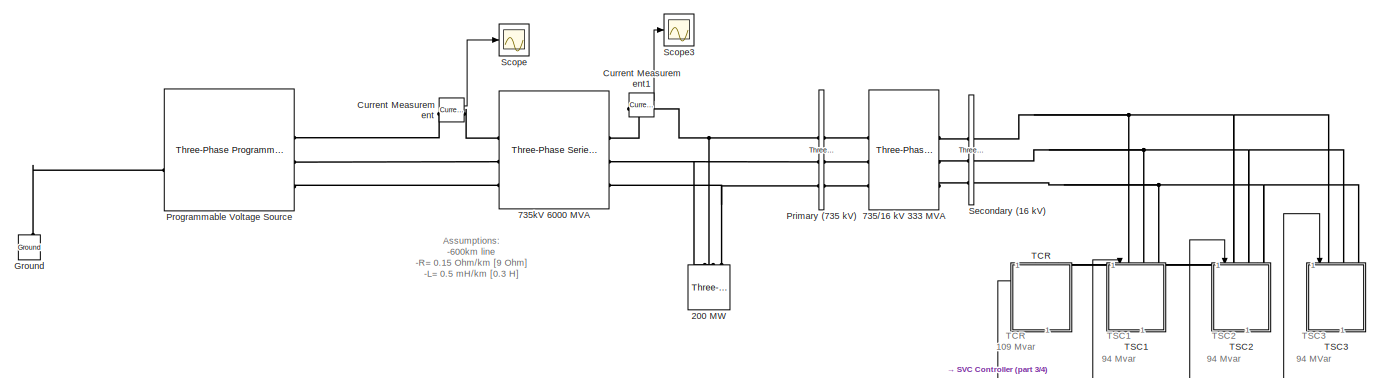
[diagram: root canvas - part 1/4, top center region]
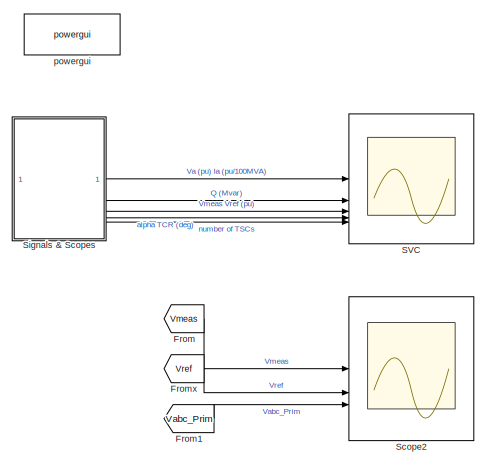
[diagram: root canvas - part 2/4, top right region]
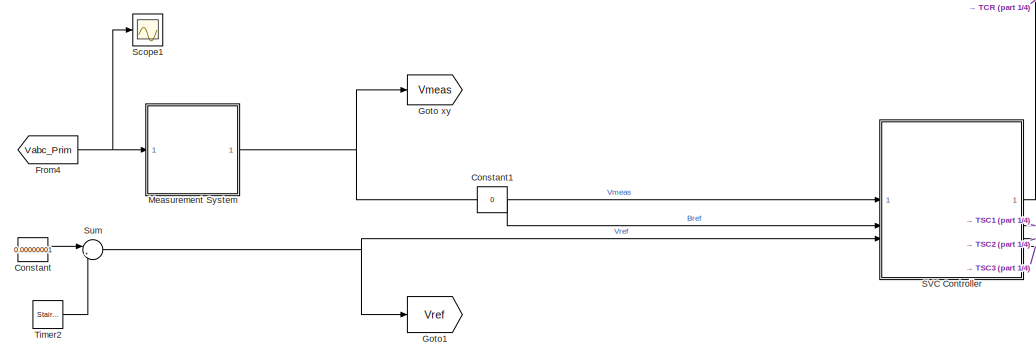
[diagram: root canvas - part 3/4, bottom center region]
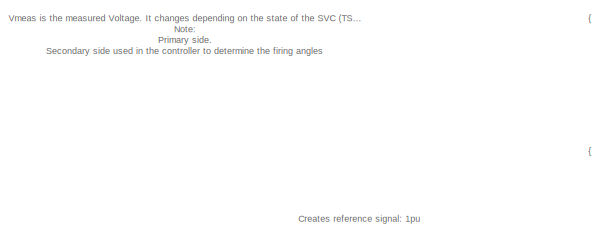
[diagram: root canvas - part 4/4, bottom left region]
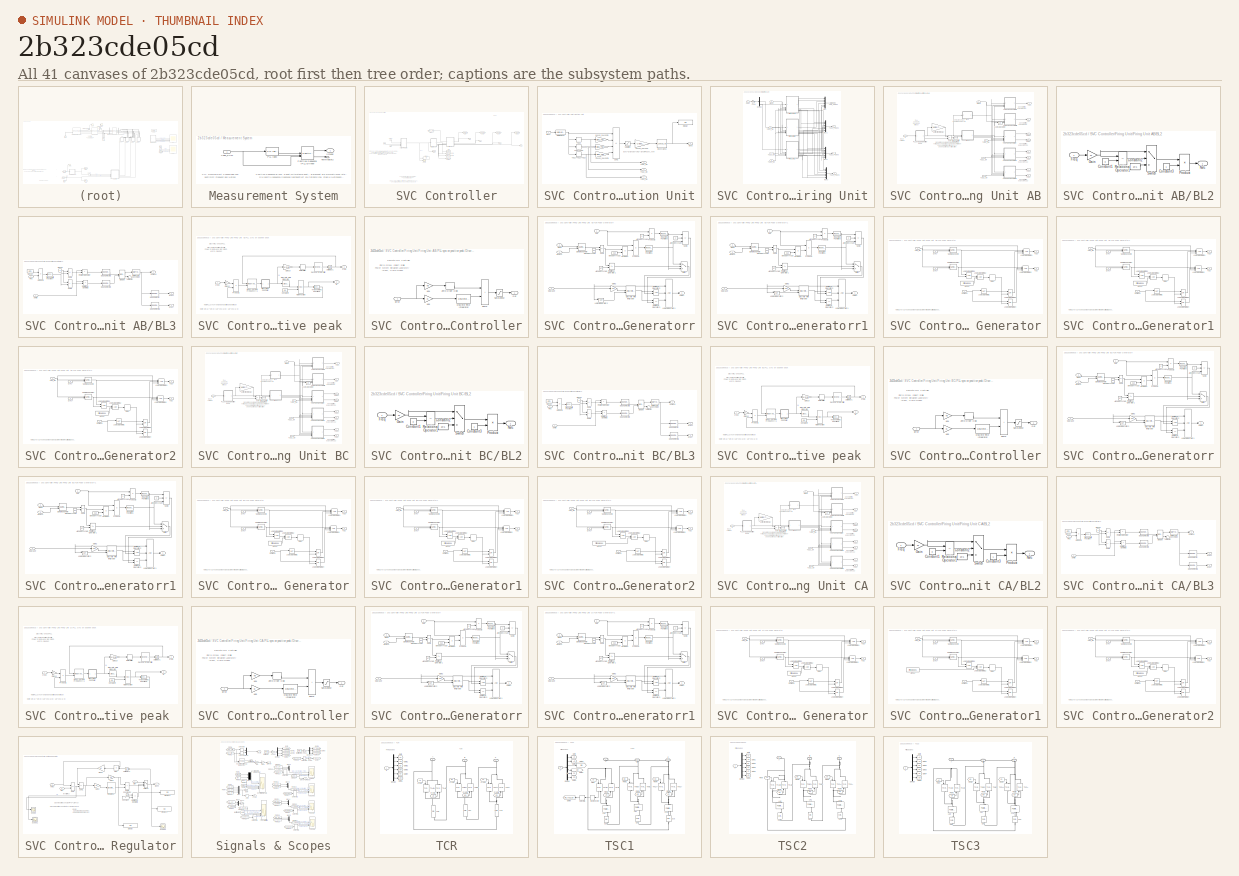
[diagram: thumbnail index - all 41 canvases of the model, root first then tree order]
MODEL slx_2b323cde05cd
KIND model
CONFIG AbsTol = 1e-4
CONFIG EnableMultiTasking = off
CONFIG FixedStep = Ts
CONFIG MaxStep = 1e-5
CONFIG MinStep = auto
CONFIG PreLoadFcn = Ts=50e-6;  
CONFIG RelTol = 1e-4
CONFIG SampleTimeConstraint = Unconstrained
CONFIG SolverName = FixedStepAuto
CONFIG StartTime = 0.0
CONFIG StopTime = 0.6
WORKSPACE source: mxarray member
WORKSPACE Ki: Simulink.Parameter (value not decoded)
WORKSPACE Kp = 0
BLOCK [Reference] 200 MW  REF=spsThreePhaseSeriesRLCLoadLib/Three-Phase
Series RLC Load
  AttributesFormatString = \n
  NameLocation = left
  SourceBlock = spsThreePhaseSeriesRLCLoadLib/Three-Phase\nSeries RLC Load
  SourceType = Three-Phase Series RLC Load
BLOCK [Reference] 735//16 kV 333 MVA  REF=spsThreePhaseTransformerTwoWindingsLib/Three-Phase
Transformer
(Two Windings)
  AttributesFormatString = \n
  SourceBlock = spsThreePhaseTransformerTwoWindingsLib/Three-Phase\nTransformer\n(Two Windings)
  SourceType = Three-Phase Transformer (Two Windings)
BLOCK [Reference] 735kV 6000 MVA   REF=spsThreePhaseSeriesRLCBranchLib/Three-Phase
Series RLC Branch
  AttributesFormatString = \n
  SourceBlock = spsThreePhaseSeriesRLCBranchLib/Three-Phase\nSeries RLC Branch
  SourceType = Three-Phase Series RLC Branch
BLOCK [Constant] Constant
  Value = 0.00000001
BLOCK [Constant] Constant1
  Value = 0
BLOCK [Reference] Current Measurement  REF=spsCurrentMeasurementLib/Current Measurement
  LibrarySourceBlock = sps_lib/Sensors and Measurements/Current Measurement
  SourceBlock = spsCurrentMeasurementLib/Current Measurement
  SourceType = Current Measurement
  UserDataPersistent = on
BLOCK [Reference] Current Measurement1  REF=spsCurrentMeasurementLib/Current Measurement
  LibrarySourceBlock = sps_lib/Sensors and Measurements/Current Measurement
  SourceBlock = spsCurrentMeasurementLib/Current Measurement
  SourceType = Current Measurement
  UserDataPersistent = on
BLOCK [From] From
  GotoTag = Vmeas
  TagVisibility = global
BLOCK [From] From1
  GotoTag = Vabc_Prim
  TagVisibility = global
BLOCK [From] From4
  GotoTag = Vabc_Prim
  TagVisibility = global
BLOCK [From] Fromx
  GotoTag = Vref
  TagVisibility = global
BLOCK [Goto] Goto xy
  GotoTag = Vmeas
  TagVisibility = global
BLOCK [Goto] Goto1
  GotoTag = Vref
  TagVisibility = global
BLOCK [Reference] Ground  REF=spsGroundLib/Ground
  NameLocation = left
  SourceBlock = spsGroundLib/Ground
  SourceType = Ground
BLOCK [SubSystem] Measurement System
BLOCK [Reference] Measurement System/PLL (3ph)  REF=spsPLL3phLib/PLL
(3ph)
  SourceBlock = spsPLL3phLib/PLL\n(3ph)
  SourceType = PLL (3ph)
BLOCK [Reference] Measurement System/Positive-Sequence (PLL-Driven)  REF=spsPositiveSequencePLLDrivenLib/Positive-Sequence
(PLL-Driven)
  SourceBlock = spsPositiveSequencePLLDrivenLib/Positive-Sequence\n(PLL-Driven)
  SourceType = Positive-Sequence (PLL-Driven)
BLOCK [Terminator] Measurement System/Terminator2
BLOCK [Inport] Measurement System/Vabc_Prim
  PortDimensions = 3
BLOCK [Outport] Measurement System/Vmeas
  VectorParamsAs1DForOutWhenUnconnected = off
BLOCK [Reference] Primary (735 kV)  REF=spsThreePhaseVIMeasurementLib/Three-Phase
V-I Measurement
  SourceBlock = spsThreePhaseVIMeasurementLib/Three-Phase\nV-I Measurement
  SourceType = Three-Phase VI Measurement
BLOCK [Reference] Programmable Voltage Source  REF=spsThreePhaseProgrammableVoltageSourceLib/Three-Phase
Programmable
Voltage Source
  SourceBlock = spsThreePhaseProgrammableVoltageSourceLib/Three-Phase\nProgrammable\nVoltage Source
  SourceType = Three-Phase Programmable Voltage Source
BLOCK [Scope] SVC
  Floating = off
  NumInputPorts = 5
  ScopeSpecificationString = Simulink.scopes.TimeScopeBlockCfg('CurrentConfiguration', extmgr.ConfigurationSet(extmgr.Configuration('Core','General UI',true,'FigureColor',[1 1 1]),extmgr.Configuration('Core','Source UI',true),extmgr.Configuration('Sources','WiredSimulink',true,'DataLogging',true,'DataLoggingVariableName','scopeData','DataLoggingSaveFormat','StructureWithTime','SampleTime','Ts','DataLoggingDecimation','1'),ext...<+7913ch>
BLOCK [SubSystem] SVC Controller
  ShowPortLabels = SignalName
BLOCK [Inport] SVC Controller/Bref
  Port = 2
  PortDimensions = 1
BLOCK [Display] SVC Controller/Display
  Decimation = 1
BLOCK [SubSystem] SVC Controller/Distribution Unit
BLOCK [Outport] SVC Controller/Distribution Unit/Alpha
  InitialOutput = 0
  VectorParamsAs1DForOutWhenUnconnected = off
BLOCK [Fcn] SVC Controller/Distribution Unit/Bprim-->Bsec
  Expr = u[1]/(1 + u[1]*Xf_xfo*100e6/Pnom_xfo)
BLOCK [Lookup_n-D] SVC Controller/Distribution Unit/Bsec --> Alpha
  BreakpointsForDimension1 = B
  BreakpointsForDimension2 = [0 571.55 685.8 800.15 914.4 1028.8 1143.1 1257.4 1371.7 1486 1600.3 1714.6 1828.9 1943.2 2057.5 2171.8 2286.1 2400.5 2514.7 2629.1 2743.3 2857.7 2971.9 3086.3 3200.5 3314.9 3429.2]
  InputPortMap = u0
  InternalRulePriority = Speed
  NumberOfTableDimensions = 1
  RndMeth = Simplest
  Table = A
BLOCK [Inport] SVC Controller/Distribution Unit/Bsvc
  PortDimensions = 1
BLOCK [Display] SVC Controller/Distribution Unit/Display
  Decimation = 1
BLOCK [Saturate] SVC Controller/Distribution Unit/Saturation
  LowerLimit = Bpu_TCR
  UpperLimit = 0
BLOCK [Sum] SVC Controller/Distribution Unit/Sum1
  IconShape = rectangular
  InputSameDT = on
  Inputs = +---
  OutDataTypeStr = Inherit: Same as first input
  SaturateOnIntegerOverflow = on
BLOCK [Relay] SVC Controller/Distribution Unit/TSC1
  OffSwitchValue = -1 * hyst_svc
  OnSwitchValue = 0
BLOCK [Relay] SVC Controller/Distribution Unit/TSC1+TSC2
  OffSwitchValue = -1 * hyst_svc + Bpu_TSC
  OnSwitchValue = 0+ Bpu_TSC
BLOCK [Relay] SVC Controller/Distribution Unit/TSC1+TSC2+TSC3
  OffSwitchValue = -1 * hyst_svc + 2*Bpu_TSC
  OnSwitchValue = 0+ 2*Bpu_TSC
BLOCK [Outport] SVC Controller/Distribution Unit/TSC1_On
  InitialOutput = 0
  Port = 2
  VectorParamsAs1DForOutWhenUnconnected = off
BLOCK [Outport] SVC Controller/Distribution Unit/TSC2_On
  InitialOutput = 0
  Port = 3
  VectorParamsAs1DForOutWhenUnconnected = off
BLOCK [Outport] SVC Controller/Distribution Unit/TSC3_On
  InitialOutput = 0
  Port = 4
  VectorParamsAs1DForOutWhenUnconnected = off
BLOCK [Gain] SVC Controller/Distribution Unit/pu100_puLnom
  Gain = -1/Bpu_TCR
  OutDataTypeStr = Inherit: Same as input
  ParamDataTypeStr = Inherit: Same as input
  SaturateOnIntegerOverflow = on
BLOCK [Gain] SVC Controller/Distribution Unit/pu100_puLnom1
  Gain = Bpu_TSC
  OutDataTypeStr = Inherit: Same as input
  ParamDataTypeStr = Inherit: Same as input
  SaturateOnIntegerOverflow = on
BLOCK [Gain] SVC Controller/Distribution Unit/pu100_puLnom2
  Gain = Bpu_TSC
  OutDataTypeStr = Inherit: Same as input
  ParamDataTypeStr = Inherit: Same as input
  SaturateOnIntegerOverflow = on
BLOCK [Gain] SVC Controller/Distribution Unit/pu100_puLnom3
  Gain = Bpu_TSC
  OutDataTypeStr = Inherit: Same as input
  ParamDataTypeStr = Inherit: Same as input
  SaturateOnIntegerOverflow = on
BLOCK [SubSystem] SVC Controller/Firing Unit
BLOCK [Inport] SVC Controller/Firing Unit/Alpha
  Port = 2
  PortDimensions = 1
BLOCK [Demux] SVC Controller/Firing Unit/Demux
  DisplayOption = none
  Outputs = 3
BLOCK [SubSystem] SVC Controller/Firing Unit/Firing Unit AB
BLOCK [Inport] SVC Controller/Firing Unit/Firing Unit AB/Alpha
  Port = 2
  PortDimensions = 1
BLOCK [SubSystem] SVC Controller/Firing Unit/Firing Unit AB/BL2
  NameLocation = top
BLOCK [Constant] SVC Controller/Firing Unit/Firing Unit AB/BL2/Constant1
  Value = 0
BLOCK [Constant] SVC Controller/Firing Unit/Firing Unit AB/BL2/Constant2
  Value = 1e-5
BLOCK [Constant] SVC Controller/Firing Unit/Firing Unit AB/BL2/Constant3
BLOCK [Inport] SVC Controller/Firing Unit/Firing Unit AB/BL2/Freq
  PortDimensions = 1
BLOCK [Gain] SVC Controller/Firing Unit/Firing Unit AB/BL2/Gain
  Gain = Ts
  OutDataTypeStr = Inherit: Same as input
  ParamDataTypeStr = Inherit: Same as input
  SaturateOnIntegerOverflow = on
BLOCK [Outport] SVC Controller/Firing Unit/Firing Unit AB/BL2/Ns//c
  VectorParamsAs1DForOutWhenUnconnected = off
BLOCK [Product] SVC Controller/Firing Unit/Firing Unit AB/BL2/Product
  InputSameDT = on
  Inputs = /*
  OutDataTypeStr = Inherit: Same as first input
  SaturateOnIntegerOverflow = on
BLOCK [RelationalOperator] SVC Controller/Firing Unit/Firing Unit AB/BL2/Relational Operator1
  Operator = ~=
BLOCK [Switch] SVC Controller/Firing Unit/Firing Unit AB/BL2/Switch
  Threshold = 0.5
BLOCK [SubSystem] SVC Controller/Firing Unit/Firing Unit AB/BL3
  NameLocation = top
BLOCK [Reference] SVC Controller/Firing Unit/Firing Unit AB/BL3/Bistable  REF=spsBistableLib/Bistable
  SourceBlock = spsBistableLib/Bistable
  SourceType = Bistable
BLOCK [DataTypeConversion] SVC Controller/Firing Unit/Firing Unit AB/BL3/Data Type Conversion
  RndMeth = Floor
  SaturateOnIntegerOverflow = off
BLOCK [Reference] SVC Controller/Firing Unit/Firing Unit AB/BL3/Edge Detector  REF=spsEdgeDetectorLib/Edge Detector
  SourceBlock = spsEdgeDetectorLib/Edge Detector
  SourceType = Edge Detector
BLOCK [Reference] SVC Controller/Firing Unit/Firing Unit AB/BL3/Edge Detector1  REF=spsEdgeDetectorLib/Edge Detector
  SourceBlock = spsEdgeDetectorLib/Edge Detector
  SourceType = Edge Detector
BLOCK [Reference] SVC Controller/Firing Unit/Firing Unit AB/BL3/Edge Detector2  REF=spsEdgeDetectorLib/Edge Detector
  SourceBlock = spsEdgeDetectorLib/Edge Detector
  SourceType = Edge Detector
BLOCK [Reference] SVC Controller/Firing Unit/Firing Unit AB/BL3/Edge Detector3  REF=spsEdgeDetectorLib/Edge Detector
  SourceBlock = spsEdgeDetectorLib/Edge Detector
  SourceType = Edge Detector
BLOCK [Inport] SVC Controller/Firing Unit/Firing Unit AB/BL3/Freq
  PortDimensions = 1
BLOCK [Product] SVC Controller/Firing Unit/Firing Unit AB/BL3/Product2
  InputSameDT = on
  OutDataTypeStr = Inherit: Same as first input
  SaturateOnIntegerOverflow = on
BLOCK [RelationalOperator] SVC Controller/Firing Unit/Firing Unit AB/BL3/Relational Operator
  Operator = >
BLOCK [RelationalOperator] SVC Controller/Firing Unit/Firing Unit AB/BL3/Relational Operator2
  Operator = <
BLOCK [Outport] SVC Controller/Firing Unit/Firing Unit AB/BL3/SqWave
  VectorParamsAs1DForOutWhenUnconnected = off
BLOCK [Sum] SVC Controller/Firing Unit/Firing Unit AB/BL3/Sum5
  IconShape = rectangular
  InputSameDT = on
  Inputs = +-
  OutDataTypeStr = Inherit: Same as first input
  SaturateOnIntegerOverflow = on
BLOCK [Sum] SVC Controller/Firing Unit/Firing Unit AB/BL3/Sum6
  IconShape = rectangular
  InputSameDT = on
  OutDataTypeStr = Inherit: Same as first input
  SaturateOnIntegerOverflow = on
BLOCK [Outport] SVC Controller/Firing Unit/Firing Unit AB/BL3/Sync +
  Port = 2
  VectorParamsAs1DForOutWhenUnconnected = off
BLOCK [Outport] SVC Controller/Firing Unit/Firing Unit AB/BL3/Sync -
  Port = 3
  VectorParamsAs1DForOutWhenUnconnected = off
BLOCK [Terminator] SVC Controller/Firing Unit/Firing Unit AB/BL3/Terminator
BLOCK [Trigonometry] SVC Controller/Firing Unit/Firing Unit AB/BL3/Trigonometric Function7
  NameLocation = top
BLOCK [Constant] SVC Controller/Firing Unit/Firing Unit AB/BL3/alpha2
  Value = 0
BLOCK [Constant] SVC Controller/Firing Unit/Firing Unit AB/BL3/alpha9
  Value = pi*Ts
BLOCK [Inport] SVC Controller/Firing Unit/Firing Unit AB/BL3/sin(wt)
  Port = 2
  PortDimensions = 1
BLOCK [Gain] SVC Controller/Firing Unit/Firing Unit AB/Correction for delay
  Gain = Nstep*Ts*2*pi
  NameLocation = top
  OutDataTypeStr = Inherit: Same as input
  ParamDataTypeStr = Inherit: Same as input
  SaturateOnIntegerOverflow = on
BLOCK [Logic] SVC Controller/Firing Unit/Firing Unit AB/Logical Operator2
  Inputs = 3
  Operator = NOT
BLOCK [SubSystem] SVC Controller/Firing Unit/Firing Unit AB/PLL sync on positive peak 
BLOCK [Constant] SVC Controller/Firing Unit/Firing Unit AB/PLL sync on positive peak /Constant4
  NameLocation = top
  Value = 2*pi
BLOCK [SubSystem] SVC Controller/Firing Unit/Firing Unit AB/PLL sync on positive peak /Discrete PI Controller
  DialogController = POWERSYS.PowerSysDialog
BLOCK [DiscreteIntegrator] SVC Controller/Firing Unit/Firing Unit AB/PLL sync on positive peak /Discrete PI Controller/Discrete-Time Integrator
  ICPrevOutput = DiscIntNeverNeededParam
  ICPrevScaledInput = DiscIntNeverNeededParam
  InitialCondition = Init
  LimitOutput = on
  LowerSaturationLimit = LowerLimit
  SampleTime = Ts
  UpperSaturationLimit = UpperLimit
BLOCK [Inport] SVC Controller/Firing Unit/Firing Unit AB/PLL sync on positive peak /Discrete PI Controller/Error
  SampleTime = Ts
BLOCK [Gain] SVC Controller/Firing Unit/Firing Unit AB/PLL sync on positive peak /Discrete PI Controller/Kp4
  Gain = Kp
  OutDataTypeStr = Inherit: Same as input
  ParamDataTypeStr = Inherit: Same as input
  SampleTime = Ts
  SaturateOnIntegerOverflow = on
BLOCK [Gain] SVC Controller/Firing Unit/Firing Unit AB/PLL sync on positive peak /Discrete PI Controller/Kp5
  Gain = Ki
  OutDataTypeStr = Inherit: Same as input
  ParamDataTypeStr = Inherit: Same as input
  SampleTime = Ts
  SaturateOnIntegerOverflow = on
BLOCK [Outport] SVC Controller/Firing Unit/Firing Unit AB/PLL sync on positive peak /Discrete PI Controller/Out
  InitialOutput = 0
  SampleTime = Ts
  VectorParamsAs1DForOutWhenUnconnected = off
BLOCK [Saturate] SVC Controller/Firing Unit/Firing Unit AB/PLL sync on positive peak /Discrete PI Controller/Saturation2
  LowerLimit = LowerLimit
  NameLocation = top
  SampleTime = Ts
  UpperLimit = UpperLimit
BLOCK [Sum] SVC Controller/Firing Unit/Firing Unit AB/PLL sync on positive peak /Discrete PI Controller/Sum6
  IconShape = rectangular
  InputSameDT = on
  OutDataTypeStr = Inherit: Same as first input
  SampleTime = Ts
  SaturateOnIntegerOverflow = on
BLOCK [ZeroOrderHold] SVC Controller/Firing Unit/Firing Unit AB/PLL sync on positive peak /Discrete PI Controller/Zero-Order Hold
  SampleTime = Ts
BLOCK [DiscreteIntegrator] SVC Controller/Firing Unit/Firing Unit AB/PLL sync on positive peak /Discrete-Time Integrator
  ICPrevOutput = DiscIntNeverNeededParam
  ICPrevScaledInput = DiscIntNeverNeededParam
  InitialCondition = (Phase_Init-90)*pi/180
  SampleTime = Ts
BLOCK [Outport] SVC Controller/Firing Unit/Firing Unit AB/PLL sync on positive peak /Freq
  VectorParamsAs1DForOutWhenUnconnected = off
BLOCK [Gain] SVC Controller/Firing Unit/Firing Unit AB/PLL sync on positive peak /Gain10
  Gain = 1/2/pi
  OutDataTypeStr = Inherit: Same as input
  ParamDataTypeStr = Inherit: Same as input
  SaturateOnIntegerOverflow = on
BLOCK [Gain] SVC Controller/Firing Unit/Firing Unit AB/PLL sync on positive peak /Gain12
  Gain = -1
  OutDataTypeStr = Inherit: Same as input
  ParamDataTypeStr = Inherit: Same as input
  SaturateOnIntegerOverflow = on
BLOCK [Math] SVC Controller/Firing Unit/Firing Unit AB/PLL sync on positive peak /Math Function
  Operator = mod
  SignedPower = on
BLOCK [Reference] SVC Controller/Firing Unit/Firing Unit AB/PLL sync on positive peak /Mean (Variable Frequency)1  REF=spsMeanVariableFrequencyLib/Mean
(Variable Frequency)
  SourceBlock = spsMeanVariableFrequencyLib/Mean\n(Variable Frequency)
  SourceType = Mean (Variable Frequency)
BLOCK [Product] SVC Controller/Firing Unit/Firing Unit AB/PLL sync on positive peak /Product1
  InputSameDT = on
  OutDataTypeStr = Inherit: Same as first input
  SaturateOnIntegerOverflow = on
BLOCK [RateLimiter] SVC Controller/Firing Unit/Firing Unit AB/PLL sync on positive peak /Rate Limiter
  FallingSlewLimit = -10
  InitialCondition = Finit
  RisingSlewLimit = 10
  SampleTimeMode = inherited
BLOCK [Reference] SVC Controller/Firing Unit/Firing Unit AB/PLL sync on positive peak /Second-Order Filter  REF=spsSecondOrderFilterLib/Second-Order
Filter
  SourceBlock = spsSecondOrderFilterLib/Second-Order\nFilter
  SourceType = Second-Order Filter
BLOCK [Trigonometry] SVC Controller/Firing Unit/Firing Unit AB/PLL sync on positive peak /Trigonometric Function6
  NameLocation = top
BLOCK [UnitDelay] SVC Controller/Firing Unit/Firing Unit AB/PLL sync on positive peak /Unit Delay1
  AttributesFormatString = IC = %<InitialCondition>
  HasFrameUpgradeWarning = on
  InitialCondition = Finit
  SampleTime = Ts
BLOCK [Inport] SVC Controller/Firing Unit/Firing Unit AB/PLL sync on positive peak /V(pu)
BLOCK [Outport] SVC Controller/Firing Unit/Firing Unit AB/PLL sync on positive peak /wt
  Port = 2
  VectorParamsAs1DForOutWhenUnconnected = off
BLOCK [Sum] SVC Controller/Firing Unit/Firing Unit AB/Sum
  IconShape = rectangular
  InputSameDT = on
  OutDataTypeStr = Inherit: Same as first input
  SaturateOnIntegerOverflow = on
BLOCK [Outport] SVC Controller/Firing Unit/Firing Unit AB/TCR +
  VectorParamsAs1DForOutWhenUnconnected = off
BLOCK [Outport] SVC Controller/Firing Unit/Firing Unit AB/TCR -
  Port = 2
  VectorParamsAs1DForOutWhenUnconnected = off
BLOCK [SubSystem] SVC Controller/Firing Unit/Firing Unit AB/TCR Pulse Generatorr
BLOCK [Inport] SVC Controller/Firing Unit/Firing Unit AB/TCR Pulse Generatorr/Alpha
  Port = 2
  PortDimensions = 1
BLOCK [Constant] SVC Controller/Firing Unit/Firing Unit AB/TCR Pulse Generatorr/Alpha 90<A<181
  Value = 90
BLOCK [Constant] SVC Controller/Firing Unit/Firing Unit AB/TCR Pulse Generatorr/Alpha 90<A<182
  Value = 360
BLOCK [Constant] SVC Controller/Firing Unit/Firing Unit AB/TCR Pulse Generatorr/Alpha 90<A<183
  Value = 2
BLOCK [Constant] SVC Controller/Firing Unit/Firing Unit AB/TCR Pulse Generatorr/Alpha 90<A<184
  Value = 2
BLOCK [Constant] SVC Controller/Firing Unit/Firing Unit AB/TCR Pulse Generatorr/Alpha 90<A<185
  Value = 87
BLOCK [DiscreteIntegrator] SVC Controller/Firing Unit/Firing Unit AB/TCR Pulse Generatorr/Discrete-Time Integrator
  ExternalReset = rising
  ICPrevOutput = DiscIntNeverNeededParam
  ICPrevScaledInput = DiscIntNeverNeededParam
  LimitOutput = on
  LowerSaturationLimit = 0
  SampleTime = Ts
  UpperSaturationLimit = 100000
BLOCK [Gain] SVC Controller/Firing Unit/Firing Unit AB/TCR Pulse Generatorr/Gain2
  Gain = 1/Ts
  OutDataTypeStr = Inherit: Same as input
  ParamDataTypeStr = Inherit: Same as input
  SaturateOnIntegerOverflow = on
BLOCK [Logic] SVC Controller/Firing Unit/Firing Unit AB/TCR Pulse Generatorr/Logical Operator1
  Inputs = 3
BLOCK [Logic] SVC Controller/Firing Unit/Firing Unit AB/TCR Pulse Generatorr/Logical Operator2
  Inputs = 3
  Operator = NOT
BLOCK [Inport] SVC Controller/Firing Unit/Firing Unit AB/TCR Pulse Generatorr/Ns//c
BLOCK [Product] SVC Controller/Firing Unit/Firing Unit AB/TCR Pulse Generatorr/Product
  InputSameDT = on
  Inputs = */
  OutDataTypeStr = Inherit: Same as first input
  SaturateOnIntegerOverflow = on
BLOCK [Product] SVC Controller/Firing Unit/Firing Unit AB/TCR Pulse Generatorr/Product1
  InputSameDT = on
  Inputs = **
  OutDataTypeStr = Inherit: Same as first input
  SaturateOnIntegerOverflow = on
BLOCK [Product] SVC Controller/Firing Unit/Firing Unit AB/TCR Pulse Generatorr/Product2
  InputSameDT = on
  Inputs = */
  OutDataTypeStr = Inherit: Same as first input
  SaturateOnIntegerOverflow = on
BLOCK [RelationalOperator] SVC Controller/Firing Unit/Firing Unit AB/TCR Pulse Generatorr/Relational Operator1
  Operator = <=
BLOCK [RelationalOperator] SVC Controller/Firing Unit/Firing Unit AB/TCR Pulse Generatorr/Relational Operator2
BLOCK [RelationalOperator] SVC Controller/Firing Unit/Firing Unit AB/TCR Pulse Generatorr/Relational Operator3
  Operator = <=
BLOCK [Rounding] SVC Controller/Firing Unit/Firing Unit AB/TCR Pulse Generatorr/Rounding Function1
  Operator = round
BLOCK [Rounding] SVC Controller/Firing Unit/Firing Unit AB/TCR Pulse Generatorr/Rounding Function3
  Operator = round
BLOCK [Reference] SVC Controller/Firing Unit/Firing Unit AB/TCR Pulse Generatorr/Sample and Hold  REF=spsSampleandHoldLib/Sample and
Hold
  AttributesFormatString = IC = %<ic>
  SourceBlock = spsSampleandHoldLib/Sample and\nHold
  SourceType = Sample and Hold
BLOCK [Inport] SVC Controller/Firing Unit/Firing Unit AB/TCR Pulse Generatorr/SqWave
  Port = 4
  PortDimensions = 1
BLOCK [Sum] SVC Controller/Firing Unit/Firing Unit AB/TCR Pulse Generatorr/Sum1
  IconShape = rectangular
  InputSameDT = on
  Inputs = +-
  OutDataTypeStr = Inherit: Same as first input
  SaturateOnIntegerOverflow = on
BLOCK [Sum] SVC Controller/Firing Unit/Firing Unit AB/TCR Pulse Generatorr/Sum2
  IconShape = rectangular
  InputSameDT = on
  Inputs = +--
  OutDataTypeStr = Inherit: Same as first input
  SaturateOnIntegerOverflow = on
BLOCK [Switch] SVC Controller/Firing Unit/Firing Unit AB/TCR Pulse Generatorr/Switch
  Criteria = u2 > Threshold
BLOCK [Inport] SVC Controller/Firing Unit/Firing Unit AB/TCR Pulse Generatorr/Sync +//-
  Port = 3
  PortDimensions = 1
BLOCK [Outport] SVC Controller/Firing Unit/Firing Unit AB/TCR Pulse Generatorr/TCR +//-
  VectorParamsAs1DForOutWhenUnconnected = off
BLOCK [SubSystem] SVC Controller/Firing Unit/Firing Unit AB/TCR Pulse Generatorr1
BLOCK [Inport] SVC Controller/Firing Unit/Firing Unit AB/TCR Pulse Generatorr1/Alpha
  Port = 2
  PortDimensions = 1
BLOCK [Constant] SVC Controller/Firing Unit/Firing Unit AB/TCR Pulse Generatorr1/Alpha 90<A<181
  Value = 90
BLOCK [Constant] SVC Controller/Firing Unit/Firing Unit AB/TCR Pulse Generatorr1/Alpha 90<A<182
  Value = 360
BLOCK [Constant] SVC Controller/Firing Unit/Firing Unit AB/TCR Pulse Generatorr1/Alpha 90<A<183
  Value = 2
BLOCK [Constant] SVC Controller/Firing Unit/Firing Unit AB/TCR Pulse Generatorr1/Alpha 90<A<184
  Value = 2
BLOCK [Constant] SVC Controller/Firing Unit/Firing Unit AB/TCR Pulse Generatorr1/Alpha 90<A<185
  Value = 87
BLOCK [DiscreteIntegrator] SVC Controller/Firing Unit/Firing Unit AB/TCR Pulse Generatorr1/Discrete-Time Integrator
  ExternalReset = rising
  ICPrevOutput = DiscIntNeverNeededParam
  ICPrevScaledInput = DiscIntNeverNeededParam
  LimitOutput = on
  LowerSaturationLimit = 0
  SampleTime = Ts
  UpperSaturationLimit = 100000
BLOCK [Gain] SVC Controller/Firing Unit/Firing Unit AB/TCR Pulse Generatorr1/Gain2
  Gain = 1/Ts
  OutDataTypeStr = Inherit: Same as input
  ParamDataTypeStr = Inherit: Same as input
  SaturateOnIntegerOverflow = on
BLOCK [Logic] SVC Controller/Firing Unit/Firing Unit AB/TCR Pulse Generatorr1/Logical Operator1
  Inputs = 3
BLOCK [Logic] SVC Controller/Firing Unit/Firing Unit AB/TCR Pulse Generatorr1/Logical Operator2
  Inputs = 3
  Operator = NOT
BLOCK [Inport] SVC Controller/Firing Unit/Firing Unit AB/TCR Pulse Generatorr1/Ns//c
BLOCK [Product] SVC Controller/Firing Unit/Firing Unit AB/TCR Pulse Generatorr1/Product
  InputSameDT = on
  Inputs = */
  OutDataTypeStr = Inherit: Same as first input
  SaturateOnIntegerOverflow = on
BLOCK [Product] SVC Controller/Firing Unit/Firing Unit AB/TCR Pulse Generatorr1/Product1
  InputSameDT = on
  Inputs = **
  OutDataTypeStr = Inherit: Same as first input
  SaturateOnIntegerOverflow = on
BLOCK [Product] SVC Controller/Firing Unit/Firing Unit AB/TCR Pulse Generatorr1/Product2
  InputSameDT = on
  Inputs = */
  OutDataTypeStr = Inherit: Same as first input
  SaturateOnIntegerOverflow = on
BLOCK [RelationalOperator] SVC Controller/Firing Unit/Firing Unit AB/TCR Pulse Generatorr1/Relational Operator1
  Operator = <=
BLOCK [RelationalOperator] SVC Controller/Firing Unit/Firing Unit AB/TCR Pulse Generatorr1/Relational Operator2
BLOCK [RelationalOperator] SVC Controller/Firing Unit/Firing Unit AB/TCR Pulse Generatorr1/Relational Operator3
  Operator = <=
BLOCK [Rounding] SVC Controller/Firing Unit/Firing Unit AB/TCR Pulse Generatorr1/Rounding Function1
  Operator = round
BLOCK [Rounding] SVC Controller/Firing Unit/Firing Unit AB/TCR Pulse Generatorr1/Rounding Function3
  Operator = round
BLOCK [Reference] SVC Controller/Firing Unit/Firing Unit AB/TCR Pulse Generatorr1/Sample and Hold  REF=spsSampleandHoldLib/Sample and
Hold
  AttributesFormatString = IC = %<ic>
  SourceBlock = spsSampleandHoldLib/Sample and\nHold
  SourceType = Sample and Hold
BLOCK [Inport] SVC Controller/Firing Unit/Firing Unit AB/TCR Pulse Generatorr1/SqWave
  Port = 4
  PortDimensions = 1
BLOCK [Sum] SVC Controller/Firing Unit/Firing Unit AB/TCR Pulse Generatorr1/Sum1
  IconShape = rectangular
  InputSameDT = on
  Inputs = +-
  OutDataTypeStr = Inherit: Same as first input
  SaturateOnIntegerOverflow = on
BLOCK [Sum] SVC Controller/Firing Unit/Firing Unit AB/TCR Pulse Generatorr1/Sum2
  IconShape = rectangular
  InputSameDT = on
  Inputs = +--
  OutDataTypeStr = Inherit: Same as first input
  SaturateOnIntegerOverflow = on
BLOCK [Switch] SVC Controller/Firing Unit/Firing Unit AB/TCR Pulse Generatorr1/Switch
  Criteria = u2 > Threshold
BLOCK [Inport] SVC Controller/Firing Unit/Firing Unit AB/TCR Pulse Generatorr1/Sync +//-
  Port = 3
  PortDimensions = 1
BLOCK [Outport] SVC Controller/Firing Unit/Firing Unit AB/TCR Pulse Generatorr1/TCR +//-
  VectorParamsAs1DForOutWhenUnconnected = off
BLOCK [SubSystem] SVC Controller/Firing Unit/Firing Unit AB/TCS Pulse Generator
BLOCK [Constant] SVC Controller/Firing Unit/Firing Unit AB/TCS Pulse Generator/Alpha1
  Value = FiringMode-1
BLOCK [Delay] SVC Controller/Firing Unit/Firing Unit AB/TCS Pulse Generator/Delay
  DelayLength = fix(1/FreqInit/Ts)
  InputPortMap = u0
BLOCK [Logic] SVC Controller/Firing Unit/Firing Unit AB/TCS Pulse Generator/Logical Operator1
  Operator = NOT
BLOCK [Logic] SVC Controller/Firing Unit/Firing Unit AB/TCS Pulse Generator/Logical Operator10
  Operator = OR
BLOCK [Logic] SVC Controller/Firing Unit/Firing Unit AB/TCS Pulse Generator/Logical Operator11
  Inputs = 3
BLOCK [Logic] SVC Controller/Firing Unit/Firing Unit AB/TCS Pulse Generator/Logical Operator12
BLOCK [Logic] SVC Controller/Firing Unit/Firing Unit AB/TCS Pulse Generator/Logical Operator13
BLOCK [Logic] SVC Controller/Firing Unit/Firing Unit AB/TCS Pulse Generator/Logical Operator14
  Operator = OR
BLOCK [Logic] SVC Controller/Firing Unit/Firing Unit AB/TCS Pulse Generator/Logical Operator15
  Inputs = 3
BLOCK [Reference] SVC Controller/Firing Unit/Firing Unit AB/TCS Pulse Generator/Sample and Hold  REF=spsSampleandHoldLib/Sample and
Hold
  AttributesFormatString = IC = %<ic>
  SourceBlock = spsSampleandHoldLib/Sample and\nHold
  SourceType = Sample and Hold
BLOCK [Reference] SVC Controller/Firing Unit/Firing Unit AB/TCS Pulse Generator/Sample and Hold1  REF=spsSampleandHoldLib/Sample and
Hold
  AttributesFormatString = IC = %<ic>
  SourceBlock = spsSampleandHoldLib/Sample and\nHold
  SourceType = Sample and Hold
BLOCK [Inport] SVC Controller/Firing Unit/Firing Unit AB/TCS Pulse Generator/SqWave
  PortDimensions = 1
BLOCK [Inport] SVC Controller/Firing Unit/Firing Unit AB/TCS Pulse Generator/Sync +
  Port = 2
  PortDimensions = 1
BLOCK [Inport] SVC Controller/Firing Unit/Firing Unit AB/TCS Pulse Generator/Sync -
  Port = 3
  PortDimensions = 1
BLOCK [Outport] SVC Controller/Firing Unit/Firing Unit AB/TCS Pulse Generator/TSC +
  VectorParamsAs1DForOutWhenUnconnected = off
BLOCK [Outport] SVC Controller/Firing Unit/Firing Unit AB/TCS Pulse Generator/TSC -
  Port = 2
  VectorParamsAs1DForOutWhenUnconnected = off
BLOCK [Inport] SVC Controller/Firing Unit/Firing Unit AB/TCS Pulse Generator/TSC_On
  Port = 4
  PortDimensions = 1
BLOCK [SubSystem] SVC Controller/Firing Unit/Firing Unit AB/TCS Pulse Generator1
BLOCK [Constant] SVC Controller/Firing Unit/Firing Unit AB/TCS Pulse Generator1/Alpha1
  Value = FiringMode-1
BLOCK [Delay] SVC Controller/Firing Unit/Firing Unit AB/TCS Pulse Generator1/Delay
  DelayLength = fix(1/FreqInit/Ts)
  InputPortMap = u0
BLOCK [Logic] SVC Controller/Firing Unit/Firing Unit AB/TCS Pulse Generator1/Logical Operator1
  Operator = NOT
BLOCK [Logic] SVC Controller/Firing Unit/Firing Unit AB/TCS Pulse Generator1/Logical Operator10
  Operator = OR
BLOCK [Logic] SVC Controller/Firing Unit/Firing Unit AB/TCS Pulse Generator1/Logical Operator11
  Inputs = 3
BLOCK [Logic] SVC Controller/Firing Unit/Firing Unit AB/TCS Pulse Generator1/Logical Operator12
BLOCK [Logic] SVC Controller/Firing Unit/Firing Unit AB/TCS Pulse Generator1/Logical Operator13
BLOCK [Logic] SVC Controller/Firing Unit/Firing Unit AB/TCS Pulse Generator1/Logical Operator14
  Operator = OR
BLOCK [Logic] SVC Controller/Firing Unit/Firing Unit AB/TCS Pulse Generator1/Logical Operator15
  Inputs = 3
BLOCK [Reference] SVC Controller/Firing Unit/Firing Unit AB/TCS Pulse Generator1/Sample and Hold  REF=spsSampleandHoldLib/Sample and
Hold
  AttributesFormatString = IC = %<ic>
  SourceBlock = spsSampleandHoldLib/Sample and\nHold
  SourceType = Sample and Hold
BLOCK [Reference] SVC Controller/Firing Unit/Firing Unit AB/TCS Pulse Generator1/Sample and Hold1  REF=spsSampleandHoldLib/Sample and
Hold
  AttributesFormatString = IC = %<ic>
  SourceBlock = spsSampleandHoldLib/Sample and\nHold
  SourceType = Sample and Hold
BLOCK [Inport] SVC Controller/Firing Unit/Firing Unit AB/TCS Pulse Generator1/SqWave
  PortDimensions = 1
BLOCK [Inport] SVC Controller/Firing Unit/Firing Unit AB/TCS Pulse Generator1/Sync +
  Port = 2
  PortDimensions = 1
BLOCK [Inport] SVC Controller/Firing Unit/Firing Unit AB/TCS Pulse Generator1/Sync -
  Port = 3
  PortDimensions = 1
BLOCK [Outport] SVC Controller/Firing Unit/Firing Unit AB/TCS Pulse Generator1/TSC +
  VectorParamsAs1DForOutWhenUnconnected = off
BLOCK [Outport] SVC Controller/Firing Unit/Firing Unit AB/TCS Pulse Generator1/TSC -
  Port = 2
  VectorParamsAs1DForOutWhenUnconnected = off
BLOCK [Inport] SVC Controller/Firing Unit/Firing Unit AB/TCS Pulse Generator1/TSC_On
  Port = 4
  PortDimensions = 1
BLOCK [SubSystem] SVC Controller/Firing Unit/Firing Unit AB/TCS Pulse Generator2
BLOCK [Constant] SVC Controller/Firing Unit/Firing Unit AB/TCS Pulse Generator2/Alpha1
  Value = FiringMode-1
BLOCK [Delay] SVC Controller/Firing Unit/Firing Unit AB/TCS Pulse Generator2/Delay
  DelayLength = fix(1/FreqInit/Ts)
  InputPortMap = u0
BLOCK [Logic] SVC Controller/Firing Unit/Firing Unit AB/TCS Pulse Generator2/Logical Operator1
  Operator = NOT
BLOCK [Logic] SVC Controller/Firing Unit/Firing Unit AB/TCS Pulse Generator2/Logical Operator10
  Operator = OR
BLOCK [Logic] SVC Controller/Firing Unit/Firing Unit AB/TCS Pulse Generator2/Logical Operator11
  Inputs = 3
BLOCK [Logic] SVC Controller/Firing Unit/Firing Unit AB/TCS Pulse Generator2/Logical Operator12
BLOCK [Logic] SVC Controller/Firing Unit/Firing Unit AB/TCS Pulse Generator2/Logical Operator13
BLOCK [Logic] SVC Controller/Firing Unit/Firing Unit AB/TCS Pulse Generator2/Logical Operator14
  Operator = OR
BLOCK [Logic] SVC Controller/Firing Unit/Firing Unit AB/TCS Pulse Generator2/Logical Operator15
  Inputs = 3
BLOCK [Reference] SVC Controller/Firing Unit/Firing Unit AB/TCS Pulse Generator2/Sample and Hold  REF=spsSampleandHoldLib/Sample and
Hold
  AttributesFormatString = IC = %<ic>
  SourceBlock = spsSampleandHoldLib/Sample and\nHold
  SourceType = Sample and Hold
BLOCK [Reference] SVC Controller/Firing Unit/Firing Unit AB/TCS Pulse Generator2/Sample and Hold1  REF=spsSampleandHoldLib/Sample and
Hold
  AttributesFormatString = IC = %<ic>
  SourceBlock = spsSampleandHoldLib/Sample and\nHold
  SourceType = Sample and Hold
BLOCK [Inport] SVC Controller/Firing Unit/Firing Unit AB/TCS Pulse Generator2/SqWave
  PortDimensions = 1
BLOCK [Inport] SVC Controller/Firing Unit/Firing Unit AB/TCS Pulse Generator2/Sync +
  Port = 2
  PortDimensions = 1
BLOCK [Inport] SVC Controller/Firing Unit/Firing Unit AB/TCS Pulse Generator2/Sync -
  Port = 3
  PortDimensions = 1
BLOCK [Outport] SVC Controller/Firing Unit/Firing Unit AB/TCS Pulse Generator2/TSC +
  VectorParamsAs1DForOutWhenUnconnected = off
BLOCK [Outport] SVC Controller/Firing Unit/Firing Unit AB/TCS Pulse Generator2/TSC -
  Port = 2
  VectorParamsAs1DForOutWhenUnconnected = off
BLOCK [Inport] SVC Controller/Firing Unit/Firing Unit AB/TCS Pulse Generator2/TSC_On
  Port = 4
  PortDimensions = 1
BLOCK [Outport] SVC Controller/Firing Unit/Firing Unit AB/TSC1 +
  Port = 3
  VectorParamsAs1DForOutWhenUnconnected = off
BLOCK [Outport] SVC Controller/Firing Unit/Firing Unit AB/TSC1 -
  Port = 4
  VectorParamsAs1DForOutWhenUnconnected = off
BLOCK [Inport] SVC Controller/Firing Unit/Firing Unit AB/TSC1_On
  Port = 3
  PortDimensions = 1
BLOCK [Outport] SVC Controller/Firing Unit/Firing Unit AB/TSC2 +
  Port = 5
  VectorParamsAs1DForOutWhenUnconnected = off
BLOCK [Outport] SVC Controller/Firing Unit/Firing Unit AB/TSC2 -
  Port = 6
  VectorParamsAs1DForOutWhenUnconnected = off
BLOCK [Inport] SVC Controller/Firing Unit/Firing Unit AB/TSC2_On
  Port = 4
  PortDimensions = 1
BLOCK [Outport] SVC Controller/Firing Unit/Firing Unit AB/TSC3 +
  Port = 7
  VectorParamsAs1DForOutWhenUnconnected = off
BLOCK [Outport] SVC Controller/Firing Unit/Firing Unit AB/TSC3 -
  Port = 8
  VectorParamsAs1DForOutWhenUnconnected = off
BLOCK [Inport] SVC Controller/Firing Unit/Firing Unit AB/TSC3_On
  Port = 5
  PortDimensions = 1
BLOCK [Trigonometry] SVC Controller/Firing Unit/Firing Unit AB/Trigonometric Function6
  NameLocation = top
BLOCK [Inport] SVC Controller/Firing Unit/Firing Unit AB/V
  PortDimensions = 1
BLOCK [SubSystem] SVC Controller/Firing Unit/Firing Unit BC
BLOCK [Inport] SVC Controller/Firing Unit/Firing Unit BC/Alpha
  Port = 2
  PortDimensions = 1
BLOCK [SubSystem] SVC Controller/Firing Unit/Firing Unit BC/BL2
  NameLocation = top
BLOCK [Constant] SVC Controller/Firing Unit/Firing Unit BC/BL2/Constant1
  Value = 0
BLOCK [Constant] SVC Controller/Firing Unit/Firing Unit BC/BL2/Constant2
  Value = 1e-5
BLOCK [Constant] SVC Controller/Firing Unit/Firing Unit BC/BL2/Constant3
BLOCK [Inport] SVC Controller/Firing Unit/Firing Unit BC/BL2/Freq
  PortDimensions = 1
BLOCK [Gain] SVC Controller/Firing Unit/Firing Unit BC/BL2/Gain
  Gain = Ts
  OutDataTypeStr = Inherit: Same as input
  ParamDataTypeStr = Inherit: Same as input
  SaturateOnIntegerOverflow = on
BLOCK [Outport] SVC Controller/Firing Unit/Firing Unit BC/BL2/Ns//c
  VectorParamsAs1DForOutWhenUnconnected = off
BLOCK [Product] SVC Controller/Firing Unit/Firing Unit BC/BL2/Product
  InputSameDT = on
  Inputs = /*
  OutDataTypeStr = Inherit: Same as first input
  SaturateOnIntegerOverflow = on
BLOCK [RelationalOperator] SVC Controller/Firing Unit/Firing Unit BC/BL2/Relational Operator1
  Operator = ~=
BLOCK [Switch] SVC Controller/Firing Unit/Firing Unit BC/BL2/Switch
  Threshold = 0.5
BLOCK [SubSystem] SVC Controller/Firing Unit/Firing Unit BC/BL3
  NameLocation = top
BLOCK [Reference] SVC Controller/Firing Unit/Firing Unit BC/BL3/Bistable  REF=spsBistableLib/Bistable
  SourceBlock = spsBistableLib/Bistable
  SourceType = Bistable
BLOCK [DataTypeConversion] SVC Controller/Firing Unit/Firing Unit BC/BL3/Data Type Conversion
  RndMeth = Floor
  SaturateOnIntegerOverflow = off
BLOCK [Reference] SVC Controller/Firing Unit/Firing Unit BC/BL3/Edge Detector  REF=spsEdgeDetectorLib/Edge Detector
  SourceBlock = spsEdgeDetectorLib/Edge Detector
  SourceType = Edge Detector
BLOCK [Reference] SVC Controller/Firing Unit/Firing Unit BC/BL3/Edge Detector1  REF=spsEdgeDetectorLib/Edge Detector
  SourceBlock = spsEdgeDetectorLib/Edge Detector
  SourceType = Edge Detector
BLOCK [Reference] SVC Controller/Firing Unit/Firing Unit BC/BL3/Edge Detector2  REF=spsEdgeDetectorLib/Edge Detector
  SourceBlock = spsEdgeDetectorLib/Edge Detector
  SourceType = Edge Detector
BLOCK [Reference] SVC Controller/Firing Unit/Firing Unit BC/BL3/Edge Detector3  REF=spsEdgeDetectorLib/Edge Detector
  SourceBlock = spsEdgeDetectorLib/Edge Detector
  SourceType = Edge Detector
BLOCK [Inport] SVC Controller/Firing Unit/Firing Unit BC/BL3/Freq
  PortDimensions = 1
BLOCK [Product] SVC Controller/Firing Unit/Firing Unit BC/BL3/Product2
  InputSameDT = on
  OutDataTypeStr = Inherit: Same as first input
  SaturateOnIntegerOverflow = on
BLOCK [RelationalOperator] SVC Controller/Firing Unit/Firing Unit BC/BL3/Relational Operator
  Operator = >
BLOCK [RelationalOperator] SVC Controller/Firing Unit/Firing Unit BC/BL3/Relational Operator2
  Operator = <
BLOCK [Outport] SVC Controller/Firing Unit/Firing Unit BC/BL3/SqWave
  VectorParamsAs1DForOutWhenUnconnected = off
BLOCK [Sum] SVC Controller/Firing Unit/Firing Unit BC/BL3/Sum5
  IconShape = rectangular
  InputSameDT = on
  Inputs = +-
  OutDataTypeStr = Inherit: Same as first input
  SaturateOnIntegerOverflow = on
BLOCK [Sum] SVC Controller/Firing Unit/Firing Unit BC/BL3/Sum6
  IconShape = rectangular
  InputSameDT = on
  OutDataTypeStr = Inherit: Same as first input
  SaturateOnIntegerOverflow = on
BLOCK [Outport] SVC Controller/Firing Unit/Firing Unit BC/BL3/Sync +
  Port = 2
  VectorParamsAs1DForOutWhenUnconnected = off
BLOCK [Outport] SVC Controller/Firing Unit/Firing Unit BC/BL3/Sync -
  Port = 3
  VectorParamsAs1DForOutWhenUnconnected = off
BLOCK [Terminator] SVC Controller/Firing Unit/Firing Unit BC/BL3/Terminator
BLOCK [Trigonometry] SVC Controller/Firing Unit/Firing Unit BC/BL3/Trigonometric Function7
  NameLocation = top
BLOCK [Constant] SVC Controller/Firing Unit/Firing Unit BC/BL3/alpha2
  Value = 0
BLOCK [Constant] SVC Controller/Firing Unit/Firing Unit BC/BL3/alpha9
  Value = pi*Ts
BLOCK [Inport] SVC Controller/Firing Unit/Firing Unit BC/BL3/sin(wt)
  Port = 2
  PortDimensions = 1
BLOCK [Gain] SVC Controller/Firing Unit/Firing Unit BC/Correction for delay
  Gain = Nstep*Ts*2*pi
  NameLocation = top
  OutDataTypeStr = Inherit: Same as input
  ParamDataTypeStr = Inherit: Same as input
  SaturateOnIntegerOverflow = on
BLOCK [Logic] SVC Controller/Firing Unit/Firing Unit BC/Logical Operator2
  Inputs = 3
  Operator = NOT
BLOCK [SubSystem] SVC Controller/Firing Unit/Firing Unit BC/PLL sync on positive peak 
BLOCK [Constant] SVC Controller/Firing Unit/Firing Unit BC/PLL sync on positive peak /Constant4
  NameLocation = top
  Value = 2*pi
BLOCK [SubSystem] SVC Controller/Firing Unit/Firing Unit BC/PLL sync on positive peak /Discrete PI Controller
  DialogController = POWERSYS.PowerSysDialog
BLOCK [DiscreteIntegrator] SVC Controller/Firing Unit/Firing Unit BC/PLL sync on positive peak /Discrete PI Controller/Discrete-Time Integrator
  ICPrevOutput = DiscIntNeverNeededParam
  ICPrevScaledInput = DiscIntNeverNeededParam
  InitialCondition = Init
  LimitOutput = on
  LowerSaturationLimit = LowerLimit
  SampleTime = Ts
  UpperSaturationLimit = UpperLimit
BLOCK [Inport] SVC Controller/Firing Unit/Firing Unit BC/PLL sync on positive peak /Discrete PI Controller/Error
  SampleTime = Ts
BLOCK [Gain] SVC Controller/Firing Unit/Firing Unit BC/PLL sync on positive peak /Discrete PI Controller/Kp4
  Gain = Kp
  OutDataTypeStr = Inherit: Same as input
  ParamDataTypeStr = Inherit: Same as input
  SampleTime = Ts
  SaturateOnIntegerOverflow = on
BLOCK [Gain] SVC Controller/Firing Unit/Firing Unit BC/PLL sync on positive peak /Discrete PI Controller/Kp5
  Gain = Ki
  OutDataTypeStr = Inherit: Same as input
  ParamDataTypeStr = Inherit: Same as input
  SampleTime = Ts
  SaturateOnIntegerOverflow = on
BLOCK [Outport] SVC Controller/Firing Unit/Firing Unit BC/PLL sync on positive peak /Discrete PI Controller/Out
  InitialOutput = 0
  SampleTime = Ts
  VectorParamsAs1DForOutWhenUnconnected = off
BLOCK [Saturate] SVC Controller/Firing Unit/Firing Unit BC/PLL sync on positive peak /Discrete PI Controller/Saturation2
  LowerLimit = LowerLimit
  NameLocation = top
  SampleTime = Ts
  UpperLimit = UpperLimit
BLOCK [Sum] SVC Controller/Firing Unit/Firing Unit BC/PLL sync on positive peak /Discrete PI Controller/Sum6
  IconShape = rectangular
  InputSameDT = on
  OutDataTypeStr = Inherit: Same as first input
  SampleTime = Ts
  SaturateOnIntegerOverflow = on
BLOCK [ZeroOrderHold] SVC Controller/Firing Unit/Firing Unit BC/PLL sync on positive peak /Discrete PI Controller/Zero-Order Hold
  SampleTime = Ts
BLOCK [DiscreteIntegrator] SVC Controller/Firing Unit/Firing Unit BC/PLL sync on positive peak /Discrete-Time Integrator
  ICPrevOutput = DiscIntNeverNeededParam
  ICPrevScaledInput = DiscIntNeverNeededParam
  InitialCondition = (Phase_Init-90)*pi/180
  SampleTime = Ts
BLOCK [Outport] SVC Controller/Firing Unit/Firing Unit BC/PLL sync on positive peak /Freq
  VectorParamsAs1DForOutWhenUnconnected = off
BLOCK [Gain] SVC Controller/Firing Unit/Firing Unit BC/PLL sync on positive peak /Gain10
  Gain = 1/2/pi
  OutDataTypeStr = Inherit: Same as input
  ParamDataTypeStr = Inherit: Same as input
  SaturateOnIntegerOverflow = on
BLOCK [Gain] SVC Controller/Firing Unit/Firing Unit BC/PLL sync on positive peak /Gain12
  Gain = -1
  OutDataTypeStr = Inherit: Same as input
  ParamDataTypeStr = Inherit: Same as input
  SaturateOnIntegerOverflow = on
BLOCK [Math] SVC Controller/Firing Unit/Firing Unit BC/PLL sync on positive peak /Math Function
  Operator = mod
  SignedPower = on
BLOCK [Reference] SVC Controller/Firing Unit/Firing Unit BC/PLL sync on positive peak /Mean (Variable Frequency)1  REF=spsMeanVariableFrequencyLib/Mean
(Variable Frequency)
  SourceBlock = spsMeanVariableFrequencyLib/Mean\n(Variable Frequency)
  SourceType = Mean (Variable Frequency)
BLOCK [Product] SVC Controller/Firing Unit/Firing Unit BC/PLL sync on positive peak /Product1
  InputSameDT = on
  OutDataTypeStr = Inherit: Same as first input
  SaturateOnIntegerOverflow = on
BLOCK [RateLimiter] SVC Controller/Firing Unit/Firing Unit BC/PLL sync on positive peak /Rate Limiter
  FallingSlewLimit = -10
  InitialCondition = Finit
  RisingSlewLimit = 10
  SampleTimeMode = inherited
BLOCK [Reference] SVC Controller/Firing Unit/Firing Unit BC/PLL sync on positive peak /Second-Order Filter  REF=spsSecondOrderFilterLib/Second-Order
Filter
  SourceBlock = spsSecondOrderFilterLib/Second-Order\nFilter
  SourceType = Second-Order Filter
BLOCK [Trigonometry] SVC Controller/Firing Unit/Firing Unit BC/PLL sync on positive peak /Trigonometric Function6
  NameLocation = top
BLOCK [UnitDelay] SVC Controller/Firing Unit/Firing Unit BC/PLL sync on positive peak /Unit Delay1
  AttributesFormatString = IC = %<InitialCondition>
  HasFrameUpgradeWarning = on
  InitialCondition = Finit
  SampleTime = Ts
BLOCK [Inport] SVC Controller/Firing Unit/Firing Unit BC/PLL sync on positive peak /V(pu)
BLOCK [Outport] SVC Controller/Firing Unit/Firing Unit BC/PLL sync on positive peak /wt
  Port = 2
  VectorParamsAs1DForOutWhenUnconnected = off
BLOCK [Sum] SVC Controller/Firing Unit/Firing Unit BC/Sum
  IconShape = rectangular
  InputSameDT = on
  OutDataTypeStr = Inherit: Same as first input
  SaturateOnIntegerOverflow = on
BLOCK [Outport] SVC Controller/Firing Unit/Firing Unit BC/TCR +
  VectorParamsAs1DForOutWhenUnconnected = off
BLOCK [Outport] SVC Controller/Firing Unit/Firing Unit BC/TCR -
  Port = 2
  VectorParamsAs1DForOutWhenUnconnected = off
BLOCK [SubSystem] SVC Controller/Firing Unit/Firing Unit BC/TCR Pulse Generatorr
BLOCK [Inport] SVC Controller/Firing Unit/Firing Unit BC/TCR Pulse Generatorr/Alpha
  Port = 2
  PortDimensions = 1
BLOCK [Constant] SVC Controller/Firing Unit/Firing Unit BC/TCR Pulse Generatorr/Alpha 90<A<181
  Value = 90
BLOCK [Constant] SVC Controller/Firing Unit/Firing Unit BC/TCR Pulse Generatorr/Alpha 90<A<182
  Value = 360
BLOCK [Constant] SVC Controller/Firing Unit/Firing Unit BC/TCR Pulse Generatorr/Alpha 90<A<183
  Value = 2
BLOCK [Constant] SVC Controller/Firing Unit/Firing Unit BC/TCR Pulse Generatorr/Alpha 90<A<184
  Value = 2
BLOCK [Constant] SVC Controller/Firing Unit/Firing Unit BC/TCR Pulse Generatorr/Alpha 90<A<185
  Value = 87
BLOCK [DiscreteIntegrator] SVC Controller/Firing Unit/Firing Unit BC/TCR Pulse Generatorr/Discrete-Time Integrator
  ExternalReset = rising
  ICPrevOutput = DiscIntNeverNeededParam
  ICPrevScaledInput = DiscIntNeverNeededParam
  LimitOutput = on
  LowerSaturationLimit = 0
  SampleTime = Ts
  UpperSaturationLimit = 100000
BLOCK [Gain] SVC Controller/Firing Unit/Firing Unit BC/TCR Pulse Generatorr/Gain2
  Gain = 1/Ts
  OutDataTypeStr = Inherit: Same as input
  ParamDataTypeStr = Inherit: Same as input
  SaturateOnIntegerOverflow = on
BLOCK [Logic] SVC Controller/Firing Unit/Firing Unit BC/TCR Pulse Generatorr/Logical Operator1
  Inputs = 3
BLOCK [Logic] SVC Controller/Firing Unit/Firing Unit BC/TCR Pulse Generatorr/Logical Operator2
  Inputs = 3
  Operator = NOT
BLOCK [Inport] SVC Controller/Firing Unit/Firing Unit BC/TCR Pulse Generatorr/Ns//c
BLOCK [Product] SVC Controller/Firing Unit/Firing Unit BC/TCR Pulse Generatorr/Product
  InputSameDT = on
  Inputs = */
  OutDataTypeStr = Inherit: Same as first input
  SaturateOnIntegerOverflow = on
BLOCK [Product] SVC Controller/Firing Unit/Firing Unit BC/TCR Pulse Generatorr/Product1
  InputSameDT = on
  Inputs = **
  OutDataTypeStr = Inherit: Same as first input
  SaturateOnIntegerOverflow = on
BLOCK [Product] SVC Controller/Firing Unit/Firing Unit BC/TCR Pulse Generatorr/Product2
  InputSameDT = on
  Inputs = */
  OutDataTypeStr = Inherit: Same as first input
  SaturateOnIntegerOverflow = on
BLOCK [RelationalOperator] SVC Controller/Firing Unit/Firing Unit BC/TCR Pulse Generatorr/Relational Operator1
  Operator = <=
BLOCK [RelationalOperator] SVC Controller/Firing Unit/Firing Unit BC/TCR Pulse Generatorr/Relational Operator2
BLOCK [RelationalOperator] SVC Controller/Firing Unit/Firing Unit BC/TCR Pulse Generatorr/Relational Operator3
  Operator = <=
BLOCK [Rounding] SVC Controller/Firing Unit/Firing Unit BC/TCR Pulse Generatorr/Rounding Function1
  Operator = round
BLOCK [Rounding] SVC Controller/Firing Unit/Firing Unit BC/TCR Pulse Generatorr/Rounding Function3
  Operator = round
BLOCK [Reference] SVC Controller/Firing Unit/Firing Unit BC/TCR Pulse Generatorr/Sample and Hold  REF=spsSampleandHoldLib/Sample and
Hold
  AttributesFormatString = IC = %<ic>
  SourceBlock = spsSampleandHoldLib/Sample and\nHold
  SourceType = Sample and Hold
BLOCK [Inport] SVC Controller/Firing Unit/Firing Unit BC/TCR Pulse Generatorr/SqWave
  Port = 4
  PortDimensions = 1
BLOCK [Sum] SVC Controller/Firing Unit/Firing Unit BC/TCR Pulse Generatorr/Sum1
  IconShape = rectangular
  InputSameDT = on
  Inputs = +-
  OutDataTypeStr = Inherit: Same as first input
  SaturateOnIntegerOverflow = on
BLOCK [Sum] SVC Controller/Firing Unit/Firing Unit BC/TCR Pulse Generatorr/Sum2
  IconShape = rectangular
  InputSameDT = on
  Inputs = +--
  OutDataTypeStr = Inherit: Same as first input
  SaturateOnIntegerOverflow = on
BLOCK [Switch] SVC Controller/Firing Unit/Firing Unit BC/TCR Pulse Generatorr/Switch
  Criteria = u2 > Threshold
BLOCK [Inport] SVC Controller/Firing Unit/Firing Unit BC/TCR Pulse Generatorr/Sync +//-
  Port = 3
  PortDimensions = 1
BLOCK [Outport] SVC Controller/Firing Unit/Firing Unit BC/TCR Pulse Generatorr/TCR +//-
  VectorParamsAs1DForOutWhenUnconnected = off
BLOCK [SubSystem] SVC Controller/Firing Unit/Firing Unit BC/TCR Pulse Generatorr1
BLOCK [Inport] SVC Controller/Firing Unit/Firing Unit BC/TCR Pulse Generatorr1/Alpha
  Port = 2
  PortDimensions = 1
BLOCK [Constant] SVC Controller/Firing Unit/Firing Unit BC/TCR Pulse Generatorr1/Alpha 90<A<181
  Value = 90
BLOCK [Constant] SVC Controller/Firing Unit/Firing Unit BC/TCR Pulse Generatorr1/Alpha 90<A<182
  Value = 360
BLOCK [Constant] SVC Controller/Firing Unit/Firing Unit BC/TCR Pulse Generatorr1/Alpha 90<A<183
  Value = 2
BLOCK [Constant] SVC Controller/Firing Unit/Firing Unit BC/TCR Pulse Generatorr1/Alpha 90<A<184
  Value = 2
BLOCK [Constant] SVC Controller/Firing Unit/Firing Unit BC/TCR Pulse Generatorr1/Alpha 90<A<185
  Value = 87
BLOCK [DiscreteIntegrator] SVC Controller/Firing Unit/Firing Unit BC/TCR Pulse Generatorr1/Discrete-Time Integrator
  ExternalReset = rising
  ICPrevOutput = DiscIntNeverNeededParam
  ICPrevScaledInput = DiscIntNeverNeededParam
  LimitOutput = on
  LowerSaturationLimit = 0
  SampleTime = Ts
  UpperSaturationLimit = 100000
BLOCK [Gain] SVC Controller/Firing Unit/Firing Unit BC/TCR Pulse Generatorr1/Gain2
  Gain = 1/Ts
  OutDataTypeStr = Inherit: Same as input
  ParamDataTypeStr = Inherit: Same as input
  SaturateOnIntegerOverflow = on
BLOCK [Logic] SVC Controller/Firing Unit/Firing Unit BC/TCR Pulse Generatorr1/Logical Operator1
  Inputs = 3
BLOCK [Logic] SVC Controller/Firing Unit/Firing Unit BC/TCR Pulse Generatorr1/Logical Operator2
  Inputs = 3
  Operator = NOT
BLOCK [Inport] SVC Controller/Firing Unit/Firing Unit BC/TCR Pulse Generatorr1/Ns//c
BLOCK [Product] SVC Controller/Firing Unit/Firing Unit BC/TCR Pulse Generatorr1/Product
  InputSameDT = on
  Inputs = */
  OutDataTypeStr = Inherit: Same as first input
  SaturateOnIntegerOverflow = on
BLOCK [Product] SVC Controller/Firing Unit/Firing Unit BC/TCR Pulse Generatorr1/Product1
  InputSameDT = on
  Inputs = **
  OutDataTypeStr = Inherit: Same as first input
  SaturateOnIntegerOverflow = on
BLOCK [Product] SVC Controller/Firing Unit/Firing Unit BC/TCR Pulse Generatorr1/Product2
  InputSameDT = on
  Inputs = */
  OutDataTypeStr = Inherit: Same as first input
  SaturateOnIntegerOverflow = on
BLOCK [RelationalOperator] SVC Controller/Firing Unit/Firing Unit BC/TCR Pulse Generatorr1/Relational Operator1
  Operator = <=
BLOCK [RelationalOperator] SVC Controller/Firing Unit/Firing Unit BC/TCR Pulse Generatorr1/Relational Operator2
BLOCK [RelationalOperator] SVC Controller/Firing Unit/Firing Unit BC/TCR Pulse Generatorr1/Relational Operator3
  Operator = <=
BLOCK [Rounding] SVC Controller/Firing Unit/Firing Unit BC/TCR Pulse Generatorr1/Rounding Function1
  Operator = round
BLOCK [Rounding] SVC Controller/Firing Unit/Firing Unit BC/TCR Pulse Generatorr1/Rounding Function3
  Operator = round
BLOCK [Reference] SVC Controller/Firing Unit/Firing Unit BC/TCR Pulse Generatorr1/Sample and Hold  REF=spsSampleandHoldLib/Sample and
Hold
  AttributesFormatString = IC = %<ic>
  SourceBlock = spsSampleandHoldLib/Sample and\nHold
  SourceType = Sample and Hold
BLOCK [Inport] SVC Controller/Firing Unit/Firing Unit BC/TCR Pulse Generatorr1/SqWave
  Port = 4
  PortDimensions = 1
BLOCK [Sum] SVC Controller/Firing Unit/Firing Unit BC/TCR Pulse Generatorr1/Sum1
  IconShape = rectangular
  InputSameDT = on
  Inputs = +-
  OutDataTypeStr = Inherit: Same as first input
  SaturateOnIntegerOverflow = on
BLOCK [Sum] SVC Controller/Firing Unit/Firing Unit BC/TCR Pulse Generatorr1/Sum2
  IconShape = rectangular
  InputSameDT = on
  Inputs = +--
  OutDataTypeStr = Inherit: Same as first input
  SaturateOnIntegerOverflow = on
BLOCK [Switch] SVC Controller/Firing Unit/Firing Unit BC/TCR Pulse Generatorr1/Switch
  Criteria = u2 > Threshold
BLOCK [Inport] SVC Controller/Firing Unit/Firing Unit BC/TCR Pulse Generatorr1/Sync +//-
  Port = 3
  PortDimensions = 1
BLOCK [Outport] SVC Controller/Firing Unit/Firing Unit BC/TCR Pulse Generatorr1/TCR +//-
  VectorParamsAs1DForOutWhenUnconnected = off
BLOCK [SubSystem] SVC Controller/Firing Unit/Firing Unit BC/TCS Pulse Generator
BLOCK [Constant] SVC Controller/Firing Unit/Firing Unit BC/TCS Pulse Generator/Alpha1
  Value = FiringMode-1
BLOCK [Delay] SVC Controller/Firing Unit/Firing Unit BC/TCS Pulse Generator/Delay
  DelayLength = fix(1/FreqInit/Ts)
  InputPortMap = u0
BLOCK [Logic] SVC Controller/Firing Unit/Firing Unit BC/TCS Pulse Generator/Logical Operator1
  Operator = NOT
BLOCK [Logic] SVC Controller/Firing Unit/Firing Unit BC/TCS Pulse Generator/Logical Operator10
  Operator = OR
BLOCK [Logic] SVC Controller/Firing Unit/Firing Unit BC/TCS Pulse Generator/Logical Operator11
  Inputs = 3
BLOCK [Logic] SVC Controller/Firing Unit/Firing Unit BC/TCS Pulse Generator/Logical Operator12
BLOCK [Logic] SVC Controller/Firing Unit/Firing Unit BC/TCS Pulse Generator/Logical Operator13
BLOCK [Logic] SVC Controller/Firing Unit/Firing Unit BC/TCS Pulse Generator/Logical Operator14
  Operator = OR
BLOCK [Logic] SVC Controller/Firing Unit/Firing Unit BC/TCS Pulse Generator/Logical Operator15
  Inputs = 3
BLOCK [Reference] SVC Controller/Firing Unit/Firing Unit BC/TCS Pulse Generator/Sample and Hold  REF=spsSampleandHoldLib/Sample and
Hold
  AttributesFormatString = IC = %<ic>
  SourceBlock = spsSampleandHoldLib/Sample and\nHold
  SourceType = Sample and Hold
BLOCK [Reference] SVC Controller/Firing Unit/Firing Unit BC/TCS Pulse Generator/Sample and Hold1  REF=spsSampleandHoldLib/Sample and
Hold
  AttributesFormatString = IC = %<ic>
  SourceBlock = spsSampleandHoldLib/Sample and\nHold
  SourceType = Sample and Hold
BLOCK [Inport] SVC Controller/Firing Unit/Firing Unit BC/TCS Pulse Generator/SqWave
  PortDimensions = 1
BLOCK [Inport] SVC Controller/Firing Unit/Firing Unit BC/TCS Pulse Generator/Sync +
  Port = 2
  PortDimensions = 1
BLOCK [Inport] SVC Controller/Firing Unit/Firing Unit BC/TCS Pulse Generator/Sync -
  Port = 3
  PortDimensions = 1
BLOCK [Outport] SVC Controller/Firing Unit/Firing Unit BC/TCS Pulse Generator/TSC +
  VectorParamsAs1DForOutWhenUnconnected = off
BLOCK [Outport] SVC Controller/Firing Unit/Firing Unit BC/TCS Pulse Generator/TSC -
  Port = 2
  VectorParamsAs1DForOutWhenUnconnected = off
BLOCK [Inport] SVC Controller/Firing Unit/Firing Unit BC/TCS Pulse Generator/TSC_On
  Port = 4
  PortDimensions = 1
BLOCK [SubSystem] SVC Controller/Firing Unit/Firing Unit BC/TCS Pulse Generator1
BLOCK [Constant] SVC Controller/Firing Unit/Firing Unit BC/TCS Pulse Generator1/Alpha1
  Value = FiringMode-1
BLOCK [Delay] SVC Controller/Firing Unit/Firing Unit BC/TCS Pulse Generator1/Delay
  DelayLength = fix(1/FreqInit/Ts)
  InputPortMap = u0
BLOCK [Logic] SVC Controller/Firing Unit/Firing Unit BC/TCS Pulse Generator1/Logical Operator1
  Operator = NOT
BLOCK [Logic] SVC Controller/Firing Unit/Firing Unit BC/TCS Pulse Generator1/Logical Operator10
  Operator = OR
BLOCK [Logic] SVC Controller/Firing Unit/Firing Unit BC/TCS Pulse Generator1/Logical Operator11
  Inputs = 3
BLOCK [Logic] SVC Controller/Firing Unit/Firing Unit BC/TCS Pulse Generator1/Logical Operator12
BLOCK [Logic] SVC Controller/Firing Unit/Firing Unit BC/TCS Pulse Generator1/Logical Operator13
BLOCK [Logic] SVC Controller/Firing Unit/Firing Unit BC/TCS Pulse Generator1/Logical Operator14
  Operator = OR
BLOCK [Logic] SVC Controller/Firing Unit/Firing Unit BC/TCS Pulse Generator1/Logical Operator15
  Inputs = 3
BLOCK [Reference] SVC Controller/Firing Unit/Firing Unit BC/TCS Pulse Generator1/Sample and Hold  REF=spsSampleandHoldLib/Sample and
Hold
  AttributesFormatString = IC = %<ic>
  SourceBlock = spsSampleandHoldLib/Sample and\nHold
  SourceType = Sample and Hold
BLOCK [Reference] SVC Controller/Firing Unit/Firing Unit BC/TCS Pulse Generator1/Sample and Hold1  REF=spsSampleandHoldLib/Sample and
Hold
  AttributesFormatString = IC = %<ic>
  SourceBlock = spsSampleandHoldLib/Sample and\nHold
  SourceType = Sample and Hold
BLOCK [Inport] SVC Controller/Firing Unit/Firing Unit BC/TCS Pulse Generator1/SqWave
  PortDimensions = 1
BLOCK [Inport] SVC Controller/Firing Unit/Firing Unit BC/TCS Pulse Generator1/Sync +
  Port = 2
  PortDimensions = 1
BLOCK [Inport] SVC Controller/Firing Unit/Firing Unit BC/TCS Pulse Generator1/Sync -
  Port = 3
  PortDimensions = 1
BLOCK [Outport] SVC Controller/Firing Unit/Firing Unit BC/TCS Pulse Generator1/TSC +
  VectorParamsAs1DForOutWhenUnconnected = off
BLOCK [Outport] SVC Controller/Firing Unit/Firing Unit BC/TCS Pulse Generator1/TSC -
  Port = 2
  VectorParamsAs1DForOutWhenUnconnected = off
BLOCK [Inport] SVC Controller/Firing Unit/Firing Unit BC/TCS Pulse Generator1/TSC_On
  Port = 4
  PortDimensions = 1
BLOCK [SubSystem] SVC Controller/Firing Unit/Firing Unit BC/TCS Pulse Generator2
BLOCK [Constant] SVC Controller/Firing Unit/Firing Unit BC/TCS Pulse Generator2/Alpha1
  Value = FiringMode-1
BLOCK [Delay] SVC Controller/Firing Unit/Firing Unit BC/TCS Pulse Generator2/Delay
  DelayLength = fix(1/FreqInit/Ts)
  InputPortMap = u0
BLOCK [Logic] SVC Controller/Firing Unit/Firing Unit BC/TCS Pulse Generator2/Logical Operator1
  Operator = NOT
BLOCK [Logic] SVC Controller/Firing Unit/Firing Unit BC/TCS Pulse Generator2/Logical Operator10
  Operator = OR
BLOCK [Logic] SVC Controller/Firing Unit/Firing Unit BC/TCS Pulse Generator2/Logical Operator11
  Inputs = 3
BLOCK [Logic] SVC Controller/Firing Unit/Firing Unit BC/TCS Pulse Generator2/Logical Operator12
BLOCK [Logic] SVC Controller/Firing Unit/Firing Unit BC/TCS Pulse Generator2/Logical Operator13
BLOCK [Logic] SVC Controller/Firing Unit/Firing Unit BC/TCS Pulse Generator2/Logical Operator14
  Operator = OR
BLOCK [Logic] SVC Controller/Firing Unit/Firing Unit BC/TCS Pulse Generator2/Logical Operator15
  Inputs = 3
BLOCK [Reference] SVC Controller/Firing Unit/Firing Unit BC/TCS Pulse Generator2/Sample and Hold  REF=spsSampleandHoldLib/Sample and
Hold
  AttributesFormatString = IC = %<ic>
  SourceBlock = spsSampleandHoldLib/Sample and\nHold
  SourceType = Sample and Hold
BLOCK [Reference] SVC Controller/Firing Unit/Firing Unit BC/TCS Pulse Generator2/Sample and Hold1  REF=spsSampleandHoldLib/Sample and
Hold
  AttributesFormatString = IC = %<ic>
  SourceBlock = spsSampleandHoldLib/Sample and\nHold
  SourceType = Sample and Hold
BLOCK [Inport] SVC Controller/Firing Unit/Firing Unit BC/TCS Pulse Generator2/SqWave
  PortDimensions = 1
BLOCK [Inport] SVC Controller/Firing Unit/Firing Unit BC/TCS Pulse Generator2/Sync +
  Port = 2
  PortDimensions = 1
BLOCK [Inport] SVC Controller/Firing Unit/Firing Unit BC/TCS Pulse Generator2/Sync -
  Port = 3
  PortDimensions = 1
BLOCK [Outport] SVC Controller/Firing Unit/Firing Unit BC/TCS Pulse Generator2/TSC +
  VectorParamsAs1DForOutWhenUnconnected = off
BLOCK [Outport] SVC Controller/Firing Unit/Firing Unit BC/TCS Pulse Generator2/TSC -
  Port = 2
  VectorParamsAs1DForOutWhenUnconnected = off
BLOCK [Inport] SVC Controller/Firing Unit/Firing Unit BC/TCS Pulse Generator2/TSC_On
  Port = 4
  PortDimensions = 1
BLOCK [Outport] SVC Controller/Firing Unit/Firing Unit BC/TSC1 +
  Port = 3
  VectorParamsAs1DForOutWhenUnconnected = off
BLOCK [Outport] SVC Controller/Firing Unit/Firing Unit BC/TSC1 -
  Port = 4
  VectorParamsAs1DForOutWhenUnconnected = off
BLOCK [Inport] SVC Controller/Firing Unit/Firing Unit BC/TSC1_On
  Port = 3
  PortDimensions = 1
BLOCK [Outport] SVC Controller/Firing Unit/Firing Unit BC/TSC2 +
  Port = 5
  VectorParamsAs1DForOutWhenUnconnected = off
BLOCK [Outport] SVC Controller/Firing Unit/Firing Unit BC/TSC2 -
  Port = 6
  VectorParamsAs1DForOutWhenUnconnected = off
BLOCK [Inport] SVC Controller/Firing Unit/Firing Unit BC/TSC2_On
  Port = 4
  PortDimensions = 1
BLOCK [Outport] SVC Controller/Firing Unit/Firing Unit BC/TSC3 +
  Port = 7
  VectorParamsAs1DForOutWhenUnconnected = off
BLOCK [Outport] SVC Controller/Firing Unit/Firing Unit BC/TSC3 -
  Port = 8
  VectorParamsAs1DForOutWhenUnconnected = off
BLOCK [Inport] SVC Controller/Firing Unit/Firing Unit BC/TSC3_On
  Port = 5
  PortDimensions = 1
BLOCK [Trigonometry] SVC Controller/Firing Unit/Firing Unit BC/Trigonometric Function6
  NameLocation = top
BLOCK [Inport] SVC Controller/Firing Unit/Firing Unit BC/V
  PortDimensions = 1
BLOCK [SubSystem] SVC Controller/Firing Unit/Firing Unit CA
BLOCK [Inport] SVC Controller/Firing Unit/Firing Unit CA/Alpha
  Port = 2
  PortDimensions = 1
BLOCK [SubSystem] SVC Controller/Firing Unit/Firing Unit CA/BL2
  NameLocation = top
BLOCK [Constant] SVC Controller/Firing Unit/Firing Unit CA/BL2/Constant1
  Value = 0
BLOCK [Constant] SVC Controller/Firing Unit/Firing Unit CA/BL2/Constant2
  Value = 1e-5
BLOCK [Constant] SVC Controller/Firing Unit/Firing Unit CA/BL2/Constant3
BLOCK [Inport] SVC Controller/Firing Unit/Firing Unit CA/BL2/Freq
  PortDimensions = 1
BLOCK [Gain] SVC Controller/Firing Unit/Firing Unit CA/BL2/Gain
  Gain = Ts
  OutDataTypeStr = Inherit: Same as input
  ParamDataTypeStr = Inherit: Same as input
  SaturateOnIntegerOverflow = on
BLOCK [Outport] SVC Controller/Firing Unit/Firing Unit CA/BL2/Ns//c
  VectorParamsAs1DForOutWhenUnconnected = off
BLOCK [Product] SVC Controller/Firing Unit/Firing Unit CA/BL2/Product
  InputSameDT = on
  Inputs = /*
  OutDataTypeStr = Inherit: Same as first input
  SaturateOnIntegerOverflow = on
BLOCK [RelationalOperator] SVC Controller/Firing Unit/Firing Unit CA/BL2/Relational Operator1
  Operator = ~=
BLOCK [Switch] SVC Controller/Firing Unit/Firing Unit CA/BL2/Switch
  Threshold = 0.5
BLOCK [SubSystem] SVC Controller/Firing Unit/Firing Unit CA/BL3
  NameLocation = top
BLOCK [Reference] SVC Controller/Firing Unit/Firing Unit CA/BL3/Bistable  REF=spsBistableLib/Bistable
  SourceBlock = spsBistableLib/Bistable
  SourceType = Bistable
BLOCK [DataTypeConversion] SVC Controller/Firing Unit/Firing Unit CA/BL3/Data Type Conversion
  RndMeth = Floor
  SaturateOnIntegerOverflow = off
BLOCK [Reference] SVC Controller/Firing Unit/Firing Unit CA/BL3/Edge Detector  REF=spsEdgeDetectorLib/Edge Detector
  SourceBlock = spsEdgeDetectorLib/Edge Detector
  SourceType = Edge Detector
BLOCK [Reference] SVC Controller/Firing Unit/Firing Unit CA/BL3/Edge Detector1  REF=spsEdgeDetectorLib/Edge Detector
  SourceBlock = spsEdgeDetectorLib/Edge Detector
  SourceType = Edge Detector
BLOCK [Reference] SVC Controller/Firing Unit/Firing Unit CA/BL3/Edge Detector2  REF=spsEdgeDetectorLib/Edge Detector
  SourceBlock = spsEdgeDetectorLib/Edge Detector
  SourceType = Edge Detector
BLOCK [Reference] SVC Controller/Firing Unit/Firing Unit CA/BL3/Edge Detector3  REF=spsEdgeDetectorLib/Edge Detector
  SourceBlock = spsEdgeDetectorLib/Edge Detector
  SourceType = Edge Detector
BLOCK [Inport] SVC Controller/Firing Unit/Firing Unit CA/BL3/Freq
  PortDimensions = 1
BLOCK [Product] SVC Controller/Firing Unit/Firing Unit CA/BL3/Product2
  InputSameDT = on
  OutDataTypeStr = Inherit: Same as first input
  SaturateOnIntegerOverflow = on
BLOCK [RelationalOperator] SVC Controller/Firing Unit/Firing Unit CA/BL3/Relational Operator
  Operator = >
BLOCK [RelationalOperator] SVC Controller/Firing Unit/Firing Unit CA/BL3/Relational Operator2
  Operator = <
BLOCK [Outport] SVC Controller/Firing Unit/Firing Unit CA/BL3/SqWave
  VectorParamsAs1DForOutWhenUnconnected = off
BLOCK [Sum] SVC Controller/Firing Unit/Firing Unit CA/BL3/Sum5
  IconShape = rectangular
  InputSameDT = on
  Inputs = +-
  OutDataTypeStr = Inherit: Same as first input
  SaturateOnIntegerOverflow = on
BLOCK [Sum] SVC Controller/Firing Unit/Firing Unit CA/BL3/Sum6
  IconShape = rectangular
  InputSameDT = on
  OutDataTypeStr = Inherit: Same as first input
  SaturateOnIntegerOverflow = on
BLOCK [Outport] SVC Controller/Firing Unit/Firing Unit CA/BL3/Sync +
  Port = 2
  VectorParamsAs1DForOutWhenUnconnected = off
BLOCK [Outport] SVC Controller/Firing Unit/Firing Unit CA/BL3/Sync -
  Port = 3
  VectorParamsAs1DForOutWhenUnconnected = off
BLOCK [Terminator] SVC Controller/Firing Unit/Firing Unit CA/BL3/Terminator
BLOCK [Trigonometry] SVC Controller/Firing Unit/Firing Unit CA/BL3/Trigonometric Function7
  NameLocation = top
BLOCK [Constant] SVC Controller/Firing Unit/Firing Unit CA/BL3/alpha2
  Value = 0
BLOCK [Constant] SVC Controller/Firing Unit/Firing Unit CA/BL3/alpha9
  Value = pi*Ts
BLOCK [Inport] SVC Controller/Firing Unit/Firing Unit CA/BL3/sin(wt)
  Port = 2
  PortDimensions = 1
BLOCK [Gain] SVC Controller/Firing Unit/Firing Unit CA/Correction for delay
  Gain = Nstep*Ts*2*pi
  NameLocation = top
  OutDataTypeStr = Inherit: Same as input
  ParamDataTypeStr = Inherit: Same as input
  SaturateOnIntegerOverflow = on
BLOCK [Logic] SVC Controller/Firing Unit/Firing Unit CA/Logical Operator2
  Inputs = 3
  Operator = NOT
BLOCK [SubSystem] SVC Controller/Firing Unit/Firing Unit CA/PLL sync on positive peak 
BLOCK [Constant] SVC Controller/Firing Unit/Firing Unit CA/PLL sync on positive peak /Constant4
  NameLocation = top
  Value = 2*pi
BLOCK [SubSystem] SVC Controller/Firing Unit/Firing Unit CA/PLL sync on positive peak /Discrete PI Controller
  DialogController = POWERSYS.PowerSysDialog
BLOCK [DiscreteIntegrator] SVC Controller/Firing Unit/Firing Unit CA/PLL sync on positive peak /Discrete PI Controller/Discrete-Time Integrator
  ICPrevOutput = DiscIntNeverNeededParam
  ICPrevScaledInput = DiscIntNeverNeededParam
  InitialCondition = Init
  LimitOutput = on
  LowerSaturationLimit = LowerLimit
  SampleTime = Ts
  UpperSaturationLimit = UpperLimit
BLOCK [Inport] SVC Controller/Firing Unit/Firing Unit CA/PLL sync on positive peak /Discrete PI Controller/Error
  SampleTime = Ts
BLOCK [Gain] SVC Controller/Firing Unit/Firing Unit CA/PLL sync on positive peak /Discrete PI Controller/Kp4
  Gain = Kp
  OutDataTypeStr = Inherit: Same as input
  ParamDataTypeStr = Inherit: Same as input
  SampleTime = Ts
  SaturateOnIntegerOverflow = on
BLOCK [Gain] SVC Controller/Firing Unit/Firing Unit CA/PLL sync on positive peak /Discrete PI Controller/Kp5
  Gain = Ki
  OutDataTypeStr = Inherit: Same as input
  ParamDataTypeStr = Inherit: Same as input
  SampleTime = Ts
  SaturateOnIntegerOverflow = on
BLOCK [Outport] SVC Controller/Firing Unit/Firing Unit CA/PLL sync on positive peak /Discrete PI Controller/Out
  InitialOutput = 0
  SampleTime = Ts
  VectorParamsAs1DForOutWhenUnconnected = off
BLOCK [Saturate] SVC Controller/Firing Unit/Firing Unit CA/PLL sync on positive peak /Discrete PI Controller/Saturation2
  LowerLimit = LowerLimit
  NameLocation = top
  SampleTime = Ts
  UpperLimit = UpperLimit
BLOCK [Sum] SVC Controller/Firing Unit/Firing Unit CA/PLL sync on positive peak /Discrete PI Controller/Sum6
  IconShape = rectangular
  InputSameDT = on
  OutDataTypeStr = Inherit: Same as first input
  SampleTime = Ts
  SaturateOnIntegerOverflow = on
BLOCK [ZeroOrderHold] SVC Controller/Firing Unit/Firing Unit CA/PLL sync on positive peak /Discrete PI Controller/Zero-Order Hold
  SampleTime = Ts
BLOCK [DiscreteIntegrator] SVC Controller/Firing Unit/Firing Unit CA/PLL sync on positive peak /Discrete-Time Integrator
  ICPrevOutput = DiscIntNeverNeededParam
  ICPrevScaledInput = DiscIntNeverNeededParam
  InitialCondition = (Phase_Init-90)*pi/180
  SampleTime = Ts
BLOCK [Outport] SVC Controller/Firing Unit/Firing Unit CA/PLL sync on positive peak /Freq
  VectorParamsAs1DForOutWhenUnconnected = off
BLOCK [Gain] SVC Controller/Firing Unit/Firing Unit CA/PLL sync on positive peak /Gain10
  Gain = 1/2/pi
  OutDataTypeStr = Inherit: Same as input
  ParamDataTypeStr = Inherit: Same as input
  SaturateOnIntegerOverflow = on
BLOCK [Gain] SVC Controller/Firing Unit/Firing Unit CA/PLL sync on positive peak /Gain12
  Gain = -1
  OutDataTypeStr = Inherit: Same as input
  ParamDataTypeStr = Inherit: Same as input
  SaturateOnIntegerOverflow = on
BLOCK [Math] SVC Controller/Firing Unit/Firing Unit CA/PLL sync on positive peak /Math Function
  Operator = mod
  SignedPower = on
BLOCK [Reference] SVC Controller/Firing Unit/Firing Unit CA/PLL sync on positive peak /Mean (Variable Frequency)1  REF=spsMeanVariableFrequencyLib/Mean
(Variable Frequency)
  SourceBlock = spsMeanVariableFrequencyLib/Mean\n(Variable Frequency)
  SourceType = Mean (Variable Frequency)
BLOCK [Product] SVC Controller/Firing Unit/Firing Unit CA/PLL sync on positive peak /Product1
  InputSameDT = on
  OutDataTypeStr = Inherit: Same as first input
  SaturateOnIntegerOverflow = on
BLOCK [RateLimiter] SVC Controller/Firing Unit/Firing Unit CA/PLL sync on positive peak /Rate Limiter
  FallingSlewLimit = -10
  InitialCondition = Finit
  RisingSlewLimit = 10
  SampleTimeMode = inherited
BLOCK [Reference] SVC Controller/Firing Unit/Firing Unit CA/PLL sync on positive peak /Second-Order Filter  REF=spsSecondOrderFilterLib/Second-Order
Filter
  SourceBlock = spsSecondOrderFilterLib/Second-Order\nFilter
  SourceType = Second-Order Filter
BLOCK [Trigonometry] SVC Controller/Firing Unit/Firing Unit CA/PLL sync on positive peak /Trigonometric Function6
  NameLocation = top
BLOCK [UnitDelay] SVC Controller/Firing Unit/Firing Unit CA/PLL sync on positive peak /Unit Delay1
  AttributesFormatString = IC = %<InitialCondition>
  HasFrameUpgradeWarning = on
  InitialCondition = Finit
  SampleTime = Ts
BLOCK [Inport] SVC Controller/Firing Unit/Firing Unit CA/PLL sync on positive peak /V(pu)
BLOCK [Outport] SVC Controller/Firing Unit/Firing Unit CA/PLL sync on positive peak /wt
  Port = 2
  VectorParamsAs1DForOutWhenUnconnected = off
BLOCK [Sum] SVC Controller/Firing Unit/Firing Unit CA/Sum
  IconShape = rectangular
  InputSameDT = on
  OutDataTypeStr = Inherit: Same as first input
  SaturateOnIntegerOverflow = on
BLOCK [Outport] SVC Controller/Firing Unit/Firing Unit CA/TCR +
  VectorParamsAs1DForOutWhenUnconnected = off
BLOCK [Outport] SVC Controller/Firing Unit/Firing Unit CA/TCR -
  Port = 2
  VectorParamsAs1DForOutWhenUnconnected = off
BLOCK [SubSystem] SVC Controller/Firing Unit/Firing Unit CA/TCR Pulse Generatorr
BLOCK [Inport] SVC Controller/Firing Unit/Firing Unit CA/TCR Pulse Generatorr/Alpha
  Port = 2
  PortDimensions = 1
BLOCK [Constant] SVC Controller/Firing Unit/Firing Unit CA/TCR Pulse Generatorr/Alpha 90<A<181
  Value = 90
BLOCK [Constant] SVC Controller/Firing Unit/Firing Unit CA/TCR Pulse Generatorr/Alpha 90<A<182
  Value = 360
BLOCK [Constant] SVC Controller/Firing Unit/Firing Unit CA/TCR Pulse Generatorr/Alpha 90<A<183
  Value = 2
BLOCK [Constant] SVC Controller/Firing Unit/Firing Unit CA/TCR Pulse Generatorr/Alpha 90<A<184
  Value = 2
BLOCK [Constant] SVC Controller/Firing Unit/Firing Unit CA/TCR Pulse Generatorr/Alpha 90<A<185
  Value = 87
BLOCK [DiscreteIntegrator] SVC Controller/Firing Unit/Firing Unit CA/TCR Pulse Generatorr/Discrete-Time Integrator
  ExternalReset = rising
  ICPrevOutput = DiscIntNeverNeededParam
  ICPrevScaledInput = DiscIntNeverNeededParam
  LimitOutput = on
  LowerSaturationLimit = 0
  SampleTime = Ts
  UpperSaturationLimit = 100000
BLOCK [Gain] SVC Controller/Firing Unit/Firing Unit CA/TCR Pulse Generatorr/Gain2
  Gain = 1/Ts
  OutDataTypeStr = Inherit: Same as input
  ParamDataTypeStr = Inherit: Same as input
  SaturateOnIntegerOverflow = on
BLOCK [Logic] SVC Controller/Firing Unit/Firing Unit CA/TCR Pulse Generatorr/Logical Operator1
  Inputs = 3
BLOCK [Logic] SVC Controller/Firing Unit/Firing Unit CA/TCR Pulse Generatorr/Logical Operator2
  Inputs = 3
  Operator = NOT
BLOCK [Inport] SVC Controller/Firing Unit/Firing Unit CA/TCR Pulse Generatorr/Ns//c
BLOCK [Product] SVC Controller/Firing Unit/Firing Unit CA/TCR Pulse Generatorr/Product
  InputSameDT = on
  Inputs = */
  OutDataTypeStr = Inherit: Same as first input
  SaturateOnIntegerOverflow = on
BLOCK [Product] SVC Controller/Firing Unit/Firing Unit CA/TCR Pulse Generatorr/Product1
  InputSameDT = on
  Inputs = **
  OutDataTypeStr = Inherit: Same as first input
  SaturateOnIntegerOverflow = on
BLOCK [Product] SVC Controller/Firing Unit/Firing Unit CA/TCR Pulse Generatorr/Product2
  InputSameDT = on
  Inputs = */
  OutDataTypeStr = Inherit: Same as first input
  SaturateOnIntegerOverflow = on
BLOCK [RelationalOperator] SVC Controller/Firing Unit/Firing Unit CA/TCR Pulse Generatorr/Relational Operator1
  Operator = <=
BLOCK [RelationalOperator] SVC Controller/Firing Unit/Firing Unit CA/TCR Pulse Generatorr/Relational Operator2
BLOCK [RelationalOperator] SVC Controller/Firing Unit/Firing Unit CA/TCR Pulse Generatorr/Relational Operator3
  Operator = <=
BLOCK [Rounding] SVC Controller/Firing Unit/Firing Unit CA/TCR Pulse Generatorr/Rounding Function1
  Operator = round
BLOCK [Rounding] SVC Controller/Firing Unit/Firing Unit CA/TCR Pulse Generatorr/Rounding Function3
  Operator = round
BLOCK [Reference] SVC Controller/Firing Unit/Firing Unit CA/TCR Pulse Generatorr/Sample and Hold  REF=spsSampleandHoldLib/Sample and
Hold
  AttributesFormatString = IC = %<ic>
  SourceBlock = spsSampleandHoldLib/Sample and\nHold
  SourceType = Sample and Hold
BLOCK [Inport] SVC Controller/Firing Unit/Firing Unit CA/TCR Pulse Generatorr/SqWave
  Port = 4
  PortDimensions = 1
BLOCK [Sum] SVC Controller/Firing Unit/Firing Unit CA/TCR Pulse Generatorr/Sum1
  IconShape = rectangular
  InputSameDT = on
  Inputs = +-
  OutDataTypeStr = Inherit: Same as first input
  SaturateOnIntegerOverflow = on
BLOCK [Sum] SVC Controller/Firing Unit/Firing Unit CA/TCR Pulse Generatorr/Sum2
  IconShape = rectangular
  InputSameDT = on
  Inputs = +--
  OutDataTypeStr = Inherit: Same as first input
  SaturateOnIntegerOverflow = on
BLOCK [Switch] SVC Controller/Firing Unit/Firing Unit CA/TCR Pulse Generatorr/Switch
  Criteria = u2 > Threshold
BLOCK [Inport] SVC Controller/Firing Unit/Firing Unit CA/TCR Pulse Generatorr/Sync +//-
  Port = 3
  PortDimensions = 1
BLOCK [Outport] SVC Controller/Firing Unit/Firing Unit CA/TCR Pulse Generatorr/TCR +//-
  VectorParamsAs1DForOutWhenUnconnected = off
BLOCK [SubSystem] SVC Controller/Firing Unit/Firing Unit CA/TCR Pulse Generatorr1
BLOCK [Inport] SVC Controller/Firing Unit/Firing Unit CA/TCR Pulse Generatorr1/Alpha
  Port = 2
  PortDimensions = 1
BLOCK [Constant] SVC Controller/Firing Unit/Firing Unit CA/TCR Pulse Generatorr1/Alpha 90<A<181
  Value = 90
BLOCK [Constant] SVC Controller/Firing Unit/Firing Unit CA/TCR Pulse Generatorr1/Alpha 90<A<182
  Value = 360
BLOCK [Constant] SVC Controller/Firing Unit/Firing Unit CA/TCR Pulse Generatorr1/Alpha 90<A<183
  Value = 2
BLOCK [Constant] SVC Controller/Firing Unit/Firing Unit CA/TCR Pulse Generatorr1/Alpha 90<A<184
  Value = 2
BLOCK [Constant] SVC Controller/Firing Unit/Firing Unit CA/TCR Pulse Generatorr1/Alpha 90<A<185
  Value = 87
BLOCK [DiscreteIntegrator] SVC Controller/Firing Unit/Firing Unit CA/TCR Pulse Generatorr1/Discrete-Time Integrator
  ExternalReset = rising
  ICPrevOutput = DiscIntNeverNeededParam
  ICPrevScaledInput = DiscIntNeverNeededParam
  LimitOutput = on
  LowerSaturationLimit = 0
  SampleTime = Ts
  UpperSaturationLimit = 100000
BLOCK [Gain] SVC Controller/Firing Unit/Firing Unit CA/TCR Pulse Generatorr1/Gain2
  Gain = 1/Ts
  OutDataTypeStr = Inherit: Same as input
  ParamDataTypeStr = Inherit: Same as input
  SaturateOnIntegerOverflow = on
BLOCK [Logic] SVC Controller/Firing Unit/Firing Unit CA/TCR Pulse Generatorr1/Logical Operator1
  Inputs = 3
BLOCK [Logic] SVC Controller/Firing Unit/Firing Unit CA/TCR Pulse Generatorr1/Logical Operator2
  Inputs = 3
  Operator = NOT
BLOCK [Inport] SVC Controller/Firing Unit/Firing Unit CA/TCR Pulse Generatorr1/Ns//c
BLOCK [Product] SVC Controller/Firing Unit/Firing Unit CA/TCR Pulse Generatorr1/Product
  InputSameDT = on
  Inputs = */
  OutDataTypeStr = Inherit: Same as first input
  SaturateOnIntegerOverflow = on
BLOCK [Product] SVC Controller/Firing Unit/Firing Unit CA/TCR Pulse Generatorr1/Product1
  InputSameDT = on
  Inputs = **
  OutDataTypeStr = Inherit: Same as first input
  SaturateOnIntegerOverflow = on
BLOCK [Product] SVC Controller/Firing Unit/Firing Unit CA/TCR Pulse Generatorr1/Product2
  InputSameDT = on
  Inputs = */
  OutDataTypeStr = Inherit: Same as first input
  SaturateOnIntegerOverflow = on
BLOCK [RelationalOperator] SVC Controller/Firing Unit/Firing Unit CA/TCR Pulse Generatorr1/Relational Operator1
  Operator = <=
BLOCK [RelationalOperator] SVC Controller/Firing Unit/Firing Unit CA/TCR Pulse Generatorr1/Relational Operator2
BLOCK [RelationalOperator] SVC Controller/Firing Unit/Firing Unit CA/TCR Pulse Generatorr1/Relational Operator3
  Operator = <=
BLOCK [Rounding] SVC Controller/Firing Unit/Firing Unit CA/TCR Pulse Generatorr1/Rounding Function1
  Operator = round
BLOCK [Rounding] SVC Controller/Firing Unit/Firing Unit CA/TCR Pulse Generatorr1/Rounding Function3
  Operator = round
BLOCK [Reference] SVC Controller/Firing Unit/Firing Unit CA/TCR Pulse Generatorr1/Sample and Hold  REF=spsSampleandHoldLib/Sample and
Hold
  AttributesFormatString = IC = %<ic>
  SourceBlock = spsSampleandHoldLib/Sample and\nHold
  SourceType = Sample and Hold
BLOCK [Inport] SVC Controller/Firing Unit/Firing Unit CA/TCR Pulse Generatorr1/SqWave
  Port = 4
  PortDimensions = 1
BLOCK [Sum] SVC Controller/Firing Unit/Firing Unit CA/TCR Pulse Generatorr1/Sum1
  IconShape = rectangular
  InputSameDT = on
  Inputs = +-
  OutDataTypeStr = Inherit: Same as first input
  SaturateOnIntegerOverflow = on
BLOCK [Sum] SVC Controller/Firing Unit/Firing Unit CA/TCR Pulse Generatorr1/Sum2
  IconShape = rectangular
  InputSameDT = on
  Inputs = +--
  OutDataTypeStr = Inherit: Same as first input
  SaturateOnIntegerOverflow = on
BLOCK [Switch] SVC Controller/Firing Unit/Firing Unit CA/TCR Pulse Generatorr1/Switch
  Criteria = u2 > Threshold
BLOCK [Inport] SVC Controller/Firing Unit/Firing Unit CA/TCR Pulse Generatorr1/Sync +//-
  Port = 3
  PortDimensions = 1
BLOCK [Outport] SVC Controller/Firing Unit/Firing Unit CA/TCR Pulse Generatorr1/TCR +//-
  VectorParamsAs1DForOutWhenUnconnected = off
BLOCK [SubSystem] SVC Controller/Firing Unit/Firing Unit CA/TCS Pulse Generator
BLOCK [Constant] SVC Controller/Firing Unit/Firing Unit CA/TCS Pulse Generator/Alpha1
  Value = FiringMode-1
BLOCK [Delay] SVC Controller/Firing Unit/Firing Unit CA/TCS Pulse Generator/Delay
  DelayLength = fix(1/FreqInit/Ts)
  InputPortMap = u0
BLOCK [Logic] SVC Controller/Firing Unit/Firing Unit CA/TCS Pulse Generator/Logical Operator1
  Operator = NOT
BLOCK [Logic] SVC Controller/Firing Unit/Firing Unit CA/TCS Pulse Generator/Logical Operator10
  Operator = OR
BLOCK [Logic] SVC Controller/Firing Unit/Firing Unit CA/TCS Pulse Generator/Logical Operator11
  Inputs = 3
BLOCK [Logic] SVC Controller/Firing Unit/Firing Unit CA/TCS Pulse Generator/Logical Operator12
BLOCK [Logic] SVC Controller/Firing Unit/Firing Unit CA/TCS Pulse Generator/Logical Operator13
BLOCK [Logic] SVC Controller/Firing Unit/Firing Unit CA/TCS Pulse Generator/Logical Operator14
  Operator = OR
BLOCK [Logic] SVC Controller/Firing Unit/Firing Unit CA/TCS Pulse Generator/Logical Operator15
  Inputs = 3
BLOCK [Reference] SVC Controller/Firing Unit/Firing Unit CA/TCS Pulse Generator/Sample and Hold  REF=spsSampleandHoldLib/Sample and
Hold
  AttributesFormatString = IC = %<ic>
  SourceBlock = spsSampleandHoldLib/Sample and\nHold
  SourceType = Sample and Hold
BLOCK [Reference] SVC Controller/Firing Unit/Firing Unit CA/TCS Pulse Generator/Sample and Hold1  REF=spsSampleandHoldLib/Sample and
Hold
  AttributesFormatString = IC = %<ic>
  SourceBlock = spsSampleandHoldLib/Sample and\nHold
  SourceType = Sample and Hold
BLOCK [Inport] SVC Controller/Firing Unit/Firing Unit CA/TCS Pulse Generator/SqWave
  PortDimensions = 1
BLOCK [Inport] SVC Controller/Firing Unit/Firing Unit CA/TCS Pulse Generator/Sync +
  Port = 2
  PortDimensions = 1
BLOCK [Inport] SVC Controller/Firing Unit/Firing Unit CA/TCS Pulse Generator/Sync -
  Port = 3
  PortDimensions = 1
BLOCK [Outport] SVC Controller/Firing Unit/Firing Unit CA/TCS Pulse Generator/TSC +
  VectorParamsAs1DForOutWhenUnconnected = off
BLOCK [Outport] SVC Controller/Firing Unit/Firing Unit CA/TCS Pulse Generator/TSC -
  Port = 2
  VectorParamsAs1DForOutWhenUnconnected = off
BLOCK [Inport] SVC Controller/Firing Unit/Firing Unit CA/TCS Pulse Generator/TSC_On
  Port = 4
  PortDimensions = 1
BLOCK [SubSystem] SVC Controller/Firing Unit/Firing Unit CA/TCS Pulse Generator1
BLOCK [Constant] SVC Controller/Firing Unit/Firing Unit CA/TCS Pulse Generator1/Alpha1
  Value = FiringMode-1
BLOCK [Delay] SVC Controller/Firing Unit/Firing Unit CA/TCS Pulse Generator1/Delay
  DelayLength = fix(1/FreqInit/Ts)
  InputPortMap = u0
BLOCK [Logic] SVC Controller/Firing Unit/Firing Unit CA/TCS Pulse Generator1/Logical Operator1
  Operator = NOT
BLOCK [Logic] SVC Controller/Firing Unit/Firing Unit CA/TCS Pulse Generator1/Logical Operator10
  Operator = OR
BLOCK [Logic] SVC Controller/Firing Unit/Firing Unit CA/TCS Pulse Generator1/Logical Operator11
  Inputs = 3
BLOCK [Logic] SVC Controller/Firing Unit/Firing Unit CA/TCS Pulse Generator1/Logical Operator12
BLOCK [Logic] SVC Controller/Firing Unit/Firing Unit CA/TCS Pulse Generator1/Logical Operator13
BLOCK [Logic] SVC Controller/Firing Unit/Firing Unit CA/TCS Pulse Generator1/Logical Operator14
  Operator = OR
BLOCK [Logic] SVC Controller/Firing Unit/Firing Unit CA/TCS Pulse Generator1/Logical Operator15
  Inputs = 3
BLOCK [Reference] SVC Controller/Firing Unit/Firing Unit CA/TCS Pulse Generator1/Sample and Hold  REF=spsSampleandHoldLib/Sample and
Hold
  AttributesFormatString = IC = %<ic>
  SourceBlock = spsSampleandHoldLib/Sample and\nHold
  SourceType = Sample and Hold
BLOCK [Reference] SVC Controller/Firing Unit/Firing Unit CA/TCS Pulse Generator1/Sample and Hold1  REF=spsSampleandHoldLib/Sample and
Hold
  AttributesFormatString = IC = %<ic>
  SourceBlock = spsSampleandHoldLib/Sample and\nHold
  SourceType = Sample and Hold
BLOCK [Inport] SVC Controller/Firing Unit/Firing Unit CA/TCS Pulse Generator1/SqWave
  PortDimensions = 1
BLOCK [Inport] SVC Controller/Firing Unit/Firing Unit CA/TCS Pulse Generator1/Sync +
  Port = 2
  PortDimensions = 1
BLOCK [Inport] SVC Controller/Firing Unit/Firing Unit CA/TCS Pulse Generator1/Sync -
  Port = 3
  PortDimensions = 1
BLOCK [Outport] SVC Controller/Firing Unit/Firing Unit CA/TCS Pulse Generator1/TSC +
  VectorParamsAs1DForOutWhenUnconnected = off
BLOCK [Outport] SVC Controller/Firing Unit/Firing Unit CA/TCS Pulse Generator1/TSC -
  Port = 2
  VectorParamsAs1DForOutWhenUnconnected = off
BLOCK [Inport] SVC Controller/Firing Unit/Firing Unit CA/TCS Pulse Generator1/TSC_On
  Port = 4
  PortDimensions = 1
BLOCK [SubSystem] SVC Controller/Firing Unit/Firing Unit CA/TCS Pulse Generator2
BLOCK [Constant] SVC Controller/Firing Unit/Firing Unit CA/TCS Pulse Generator2/Alpha1
  Value = FiringMode-1
BLOCK [Delay] SVC Controller/Firing Unit/Firing Unit CA/TCS Pulse Generator2/Delay
  DelayLength = fix(1/FreqInit/Ts)
  InputPortMap = u0
BLOCK [Logic] SVC Controller/Firing Unit/Firing Unit CA/TCS Pulse Generator2/Logical Operator1
  Operator = NOT
BLOCK [Logic] SVC Controller/Firing Unit/Firing Unit CA/TCS Pulse Generator2/Logical Operator10
  Operator = OR
BLOCK [Logic] SVC Controller/Firing Unit/Firing Unit CA/TCS Pulse Generator2/Logical Operator11
  Inputs = 3
BLOCK [Logic] SVC Controller/Firing Unit/Firing Unit CA/TCS Pulse Generator2/Logical Operator12
BLOCK [Logic] SVC Controller/Firing Unit/Firing Unit CA/TCS Pulse Generator2/Logical Operator13
BLOCK [Logic] SVC Controller/Firing Unit/Firing Unit CA/TCS Pulse Generator2/Logical Operator14
  Operator = OR
BLOCK [Logic] SVC Controller/Firing Unit/Firing Unit CA/TCS Pulse Generator2/Logical Operator15
  Inputs = 3
BLOCK [Reference] SVC Controller/Firing Unit/Firing Unit CA/TCS Pulse Generator2/Sample and Hold  REF=spsSampleandHoldLib/Sample and
Hold
  AttributesFormatString = IC = %<ic>
  SourceBlock = spsSampleandHoldLib/Sample and\nHold
  SourceType = Sample and Hold
BLOCK [Reference] SVC Controller/Firing Unit/Firing Unit CA/TCS Pulse Generator2/Sample and Hold1  REF=spsSampleandHoldLib/Sample and
Hold
  AttributesFormatString = IC = %<ic>
  SourceBlock = spsSampleandHoldLib/Sample and\nHold
  SourceType = Sample and Hold
BLOCK [Inport] SVC Controller/Firing Unit/Firing Unit CA/TCS Pulse Generator2/SqWave
  PortDimensions = 1
BLOCK [Inport] SVC Controller/Firing Unit/Firing Unit CA/TCS Pulse Generator2/Sync +
  Port = 2
  PortDimensions = 1
BLOCK [Inport] SVC Controller/Firing Unit/Firing Unit CA/TCS Pulse Generator2/Sync -
  Port = 3
  PortDimensions = 1
BLOCK [Outport] SVC Controller/Firing Unit/Firing Unit CA/TCS Pulse Generator2/TSC +
  VectorParamsAs1DForOutWhenUnconnected = off
BLOCK [Outport] SVC Controller/Firing Unit/Firing Unit CA/TCS Pulse Generator2/TSC -
  Port = 2
  VectorParamsAs1DForOutWhenUnconnected = off
BLOCK [Inport] SVC Controller/Firing Unit/Firing Unit CA/TCS Pulse Generator2/TSC_On
  Port = 4
  PortDimensions = 1
BLOCK [Outport] SVC Controller/Firing Unit/Firing Unit CA/TSC1 +
  Port = 3
  VectorParamsAs1DForOutWhenUnconnected = off
BLOCK [Outport] SVC Controller/Firing Unit/Firing Unit CA/TSC1 -
  Port = 4
  VectorParamsAs1DForOutWhenUnconnected = off
BLOCK [Inport] SVC Controller/Firing Unit/Firing Unit CA/TSC1_On
  Port = 3
  PortDimensions = 1
BLOCK [Outport] SVC Controller/Firing Unit/Firing Unit CA/TSC2 +
  Port = 5
  VectorParamsAs1DForOutWhenUnconnected = off
BLOCK [Outport] SVC Controller/Firing Unit/Firing Unit CA/TSC2 -
  Port = 6
  VectorParamsAs1DForOutWhenUnconnected = off
BLOCK [Inport] SVC Controller/Firing Unit/Firing Unit CA/TSC2_On
  Port = 4
  PortDimensions = 1
BLOCK [Outport] SVC Controller/Firing Unit/Firing Unit CA/TSC3 +
  Port = 7
  VectorParamsAs1DForOutWhenUnconnected = off
BLOCK [Outport] SVC Controller/Firing Unit/Firing Unit CA/TSC3 -
  Port = 8
  VectorParamsAs1DForOutWhenUnconnected = off
BLOCK [Inport] SVC Controller/Firing Unit/Firing Unit CA/TSC3_On
  Port = 5
  PortDimensions = 1
BLOCK [Trigonometry] SVC Controller/Firing Unit/Firing Unit CA/Trigonometric Function6
  NameLocation = top
BLOCK [Inport] SVC Controller/Firing Unit/Firing Unit CA/V
  PortDimensions = 1
BLOCK [Mux] SVC Controller/Firing Unit/Mux
  DisplayOption = bar
  Inputs = 6
BLOCK [Mux] SVC Controller/Firing Unit/Mux1
  DisplayOption = bar
  Inputs = 6
BLOCK [Mux] SVC Controller/Firing Unit/Mux2
  DisplayOption = bar
  Inputs = 6
BLOCK [Mux] SVC Controller/Firing Unit/Mux3
  DisplayOption = bar
  Inputs = 6
BLOCK [Outport] SVC Controller/Firing Unit/TCR_Pulses
  VectorParamsAs1DForOutWhenUnconnected = off
BLOCK [Inport] SVC Controller/Firing Unit/TSC1_On
  Port = 3
  PortDimensions = 1
BLOCK [Outport] SVC Controller/Firing Unit/TSC1_Pulses
  Port = 2
  VectorParamsAs1DForOutWhenUnconnected = off
BLOCK [Inport] SVC Controller/Firing Unit/TSC2_On
  Port = 4
  PortDimensions = 1
BLOCK [Outport] SVC Controller/Firing Unit/TSC2_Pulses
  Port = 3
  VectorParamsAs1DForOutWhenUnconnected = off
BLOCK [Inport] SVC Controller/Firing Unit/TSC3_On
  Port = 5
  PortDimensions = 1
BLOCK [Outport] SVC Controller/Firing Unit/TSC3_Pulses
  Port = 4
  VectorParamsAs1DForOutWhenUnconnected = off
BLOCK [Gain] SVC Controller/Firing Unit/V->pu
  Gain = 1/sqrt(3)
  OutDataTypeStr = Inherit: Same as input
  ParamDataTypeStr = Inherit: Same as input
  SaturateOnIntegerOverflow = on
BLOCK [Inport] SVC Controller/Firing Unit/Vabc
  PortDimensions = 3
BLOCK [From] SVC Controller/From
  GotoTag = Vabc_Sec
  TagVisibility = global
BLOCK [Goto] SVC Controller/Goto
  GotoTag = alpha
  TagVisibility = global
BLOCK [Goto] SVC Controller/Goto1
  GotoTag = TSC1_On
  TagVisibility = global
BLOCK [Goto] SVC Controller/Goto10
  GotoTag = TSC3pulses
  TagVisibility = global
BLOCK [Goto] SVC Controller/Goto2
  GotoTag = TSC2_On
  TagVisibility = global
BLOCK [Goto] SVC Controller/Goto3
  GotoTag = BSVC
  TagVisibility = global
BLOCK [Goto] SVC Controller/Goto4
  GotoTag = TCRpulses
  TagVisibility = global
BLOCK [Goto] SVC Controller/Goto5
  GotoTag = TSC3_On
  TagVisibility = global
BLOCK [Goto] SVC Controller/Goto6
  GotoTag = TSC1pulses
  TagVisibility = global
BLOCK [Goto] SVC Controller/Goto9
  GotoTag = TSC2pulses
  TagVisibility = global
BLOCK [Scope] SVC Controller/Scope
  Floating = off
  NumInputPorts = 1
  ScopeSpecificationString = Simulink.scopes.TimeScopeBlockCfg('CurrentConfiguration', extmgr.ConfigurationSet(extmgr.Configuration('Core','General UI',true),extmgr.Configuration('Core','Source UI',true),extmgr.Configuration('Sources','WiredSimulink',true,'DataLoggingVariableName','ScopeData3'),extmgr.Configuration('Visuals','Time Domain',true,'SerializedDisplays',{struct('MinYLimReal','-1.56723','MaxYLimReal','3.70507','YLab...<+1481ch>
BLOCK [Outport] SVC Controller/TCR
  VectorParamsAs1DForOutWhenUnconnected = off
BLOCK [Outport] SVC Controller/TSC1
  Port = 2
  VectorParamsAs1DForOutWhenUnconnected = off
BLOCK [Outport] SVC Controller/TSC2
  Port = 3
  VectorParamsAs1DForOutWhenUnconnected = off
BLOCK [Outport] SVC Controller/TSC3
  Port = 4
  VectorParamsAs1DForOutWhenUnconnected = off
BLOCK [Inport] SVC Controller/Vmeas
BLOCK [SubSystem] SVC Controller/Voltage Regulator
BLOCK [Inport] SVC Controller/Voltage Regulator/Bref
  Port = 2
  PortDimensions = 1
BLOCK [Outport] SVC Controller/Voltage Regulator/Bsvc
  InitialOutput = 0
  VectorParamsAs1DForOutWhenUnconnected = off
BLOCK [Constant] SVC Controller/Voltage Regulator/Constant
BLOCK [Constant] SVC Controller/Voltage Regulator/Constant10
BLOCK [Display] SVC Controller/Voltage Regulator/Display
  Decimation = 1
BLOCK [Display] SVC Controller/Voltage Regulator/Display1
  Decimation = 1
BLOCK [Display] SVC Controller/Voltage Regulator/Display2
  Decimation = 1
BLOCK [Gain] SVC Controller/Voltage Regulator/Droop
  Gain = Xs
  NameLocation = top
  OutDataTypeStr = Inherit: Same as input
  ParamDataTypeStr = Inherit: Same as input
  SaturateOnIntegerOverflow = on
BLOCK [Gain] SVC Controller/Voltage Regulator/Gain1
  Gain = Kp
  OutDataTypeStr = Inherit: Same as input
  ParamDataTypeStr = Inherit: Same as input
  SaturateOnIntegerOverflow = on
BLOCK [Gain] SVC Controller/Voltage Regulator/Gain2
  Gain = Ki
  OutDataTypeStr = Inherit: Same as input
  ParamDataTypeStr = Inherit: Same as input
  SaturateOnIntegerOverflow = on
BLOCK [DiscreteIntegrator] SVC Controller/Voltage Regulator/Integrateur
  ICPrevOutput = DiscIntNeverNeededParam
  ICPrevScaledInput = DiscIntNeverNeededParam
  LimitOutput = on
  LowerSaturationLimit = -1.04
  NameLocation = top
  SampleTime = Ts
  UpperSaturationLimit = 3.23
BLOCK [Product] SVC Controller/Voltage Regulator/Prod.
  InputSameDT = on
  OutDataTypeStr = Inherit: Same as first input
  SaturateOnIntegerOverflow = on
BLOCK [RelationalOperator] SVC Controller/Voltage Regulator/Relational Operator2
  Operator = ~=
BLOCK [Scope] SVC Controller/Voltage Regulator/Scope
  Floating = off
  NumInputPorts = 1
  ScopeSpecificationString = Simulink.scopes.TimeScopeBlockCfg('CurrentConfiguration', extmgr.ConfigurationSet(extmgr.Configuration('Core','General UI',true),extmgr.Configuration('Core','Source UI',true),extmgr.Configuration('Sources','WiredSimulink',true,'DataLoggingVariableName','ScopeData1'),extmgr.Configuration('Visuals','Time Domain',true,'SerializedDisplays',{struct('MinYLimReal','-0.03854','MaxYLimReal','0.09598','YLab...<+1484ch>
BLOCK [Scope] SVC Controller/Voltage Regulator/Scope1
  Floating = off
  NumInputPorts = 1
  ScopeSpecificationString = Simulink.scopes.TimeScopeBlockCfg('CurrentConfiguration', extmgr.ConfigurationSet(extmgr.Configuration('Core','General UI',true),extmgr.Configuration('Core','Source UI',true),extmgr.Configuration('Sources','WiredSimulink',true,'DataLoggingVariableName','ScopeData2'),extmgr.Configuration('Visuals','Time Domain',true,'SerializedDisplays',{struct('MinYLimReal','-0.03664','MaxYLimReal','0.0994','YLabe...<+1478ch>
BLOCK [Scope] SVC Controller/Voltage Regulator/Scope2
  Floating = off
  NumInputPorts = 1
  ScopeSpecificationString = Simulink.scopes.TimeScopeBlockCfg('CurrentConfiguration', extmgr.ConfigurationSet(extmgr.Configuration('Core','General UI',true),extmgr.Configuration('Core','Source UI',true),extmgr.Configuration('Sources','WiredSimulink',true,'DataLoggingVariableName','ScopeData4'),extmgr.Configuration('Visuals','Time Domain',true,'SerializedDisplays',{struct('MinYLimReal','-1.41077','MaxYLimReal','3.1307','YLabe...<+1486ch>
BLOCK [Sum] SVC Controller/Voltage Regulator/Som
  IconShape = rectangular
  InputSameDT = on
  Inputs = -+
  OutDataTypeStr = Inherit: Same as first input
  SaturateOnIntegerOverflow = on
BLOCK [Sum] SVC Controller/Voltage Regulator/Som1
  IconShape = rectangular
  InputSameDT = on
  Inputs = -+
  OutDataTypeStr = Inherit: Same as first input
  SaturateOnIntegerOverflow = on
BLOCK [Sum] SVC Controller/Voltage Regulator/Som2
  IconShape = rectangular
  InputSameDT = on
  OutDataTypeStr = Inherit: Same as first input
  SaturateOnIntegerOverflow = on
BLOCK [Switch] SVC Controller/Voltage Regulator/Switch2
  Criteria = u2 > Threshold
BLOCK [UnitDelay] SVC Controller/Voltage Regulator/Unit Delay1
  HasFrameUpgradeWarning = on
  SampleTime = Ts
BLOCK [Inport] SVC Controller/Voltage Regulator/Vmes
  PortDimensions = 1
BLOCK [Inport] SVC Controller/Voltage Regulator/Vref
  Port = 3
BLOCK [Inport] SVC Controller/Vref
  Port = 3
BLOCK [Scope] Scope
  Floating = off
  NumInputPorts = 1
  ScopeSpecificationString = Simulink.scopes.TimeScopeBlockCfg('CurrentConfiguration', extmgr.ConfigurationSet(extmgr.Configuration('Core','General UI',true),extmgr.Configuration('Core','Source UI',true),extmgr.Configuration('Sources','WiredSimulink',true,'DataLoggingVariableName','ScopeData1'),extmgr.Configuration('Visuals','Time Domain',true,'SerializedDisplays',{struct('MinYLimReal','-441.32157','MaxYLimReal','441.89275','...<+1516ch>
BLOCK [Scope] Scope1
  Floating = off
  NumInputPorts = 1
  ScopeSpecificationString = Simulink.scopes.TimeScopeBlockCfg('CurrentConfiguration', extmgr.ConfigurationSet(extmgr.Configuration('Core','General UI',true),extmgr.Configuration('Core','Source UI',true),extmgr.Configuration('Sources','WiredSimulink',true,'DataLoggingVariableName','ScopeData2'),extmgr.Configuration('Visuals','Time Domain',true,'SerializedDisplays',{struct('MinYLimReal','-1.28123','MaxYLimReal','1.28123','YLab...<+1581ch>
BLOCK [Scope] Scope2
  Floating = off
  NumInputPorts = 3
  ScopeSpecificationString = Simulink.scopes.TimeScopeBlockCfg('CurrentConfiguration', extmgr.ConfigurationSet(extmgr.Configuration('Core','General UI',true,'FigureColor',[1 1 1]),extmgr.Configuration('Core','Source UI',true),extmgr.Configuration('Sources','WiredSimulink',true,'DataLoggingVariableName','ScopeData1'),extmgr.Configuration('Visuals','Time Domain',true,'SerializedDisplays',{struct('MinYLimReal','-1.35149','MaxYLi...<+2449ch>
BLOCK [Scope] Scope3
  Floating = off
  NumInputPorts = 1
  ScopeSpecificationString = Simulink.scopes.TimeScopeBlockCfg('CurrentConfiguration', extmgr.ConfigurationSet(extmgr.Configuration('Core','General UI',true),extmgr.Configuration('Core','Source UI',true),extmgr.Configuration('Sources','WiredSimulink',true,'DataLoggingVariableName','ScopeData2'),extmgr.Configuration('Visuals','Time Domain',true,'SerializedDisplays',{struct('MinYLimReal','-441.32157','MaxYLimReal','441.89275','...<+1482ch>
BLOCK [Reference] Secondary (16 kV)  REF=spsThreePhaseVIMeasurementLib/Three-Phase
V-I Measurement
  SourceBlock = spsThreePhaseVIMeasurementLib/Three-Phase\nV-I Measurement
  SourceType = Three-Phase VI Measurement
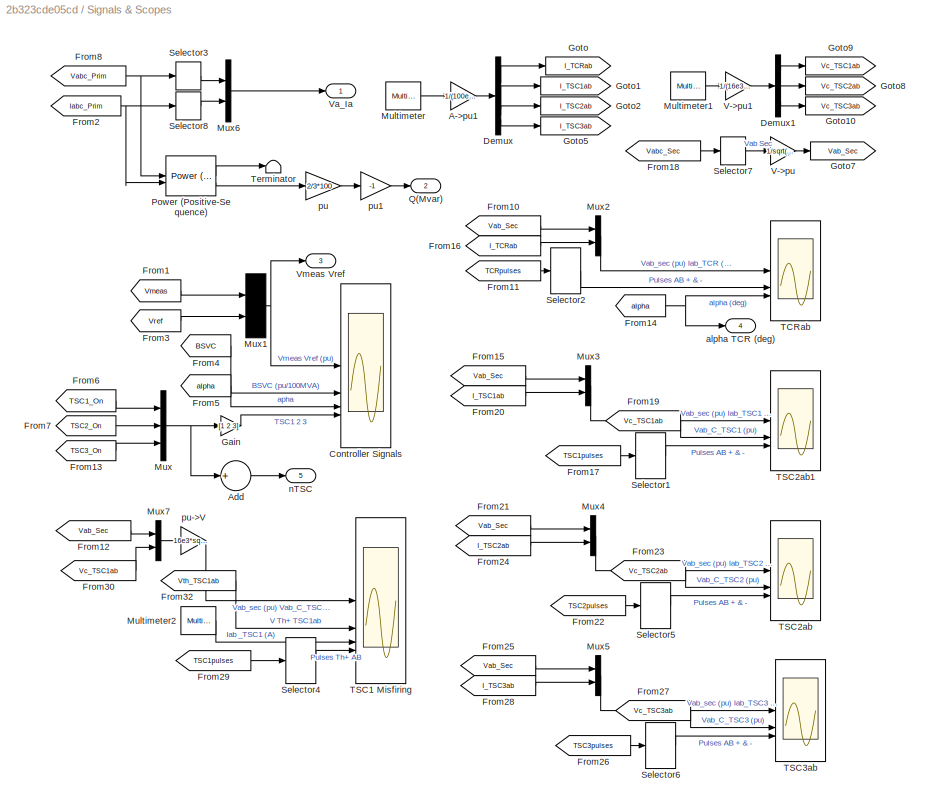
BLOCK [SubSystem] Signals & Scopes
BLOCK [Gain] Signals & Scopes/A->pu1
  Gain = 1/(100e6/3/16e3*sqrt(2))
  OutDataTypeStr = Inherit: Same as input
  ParamDataTypeStr = Inherit: Same as input
  SaturateOnIntegerOverflow = on
BLOCK [Sum] Signals & Scopes/Add
  Inputs = +
BLOCK [Scope] Signals & Scopes/Controller Signals
  Floating = off
  NumInputPorts = 4
  ScopeSpecificationString = Simulink.scopes.TimeScopeBlockCfg('CurrentConfiguration', extmgr.ConfigurationSet(extmgr.Configuration('Core','General UI',true),extmgr.Configuration('Core','Source UI',true),extmgr.Configuration('Sources','WiredSimulink',true,'DataLoggingVariableName','Ctrl_Sig','SampleTime','Ts','DataLoggingSaveFormat','Array','DataLoggingDecimation','1'),extmgr.Configuration('Visuals','Time Domain',true,'Serial...<+4120ch>
BLOCK [Demux] Signals & Scopes/Demux
  DisplayOption = none
BLOCK [Demux] Signals & Scopes/Demux1
  DisplayOption = none
  Outputs = 3
BLOCK [From] Signals & Scopes/From1
  CloseFcn = tagdialog Close
  GotoTag = Vmeas
  TagVisibility = global
BLOCK [From] Signals & Scopes/From10
  CloseFcn = tagdialog Close
  GotoTag = Vab_Sec
BLOCK [From] Signals & Scopes/From11
  CloseFcn = tagdialog Close
  GotoTag = TCRpulses
  TagVisibility = global
BLOCK [From] Signals & Scopes/From12
  CloseFcn = tagdialog Close
  GotoTag = Vab_Sec
BLOCK [From] Signals & Scopes/From13
  CloseFcn = tagdialog Close
  GotoTag = TSC3_On
  TagVisibility = global
BLOCK [From] Signals & Scopes/From14
  CloseFcn = tagdialog Close
  GotoTag = alpha
  TagVisibility = global
BLOCK [From] Signals & Scopes/From15
  CloseFcn = tagdialog Close
  GotoTag = Vab_Sec
BLOCK [From] Signals & Scopes/From16
  CloseFcn = tagdialog Close
  GotoTag = I_TCRab
BLOCK [From] Signals & Scopes/From17
  CloseFcn = tagdialog Close
  GotoTag = TSC1pulses
  TagVisibility = global
BLOCK [From] Signals & Scopes/From18
  CloseFcn = tagdialog Close
  GotoTag = Vabc_Sec
  TagVisibility = global
BLOCK [From] Signals & Scopes/From19
  CloseFcn = tagdialog Close
  GotoTag = Vc_TSC1ab
BLOCK [From] Signals & Scopes/From2
  CloseFcn = tagdialog Close
  GotoTag = Iabc_Prim
  TagVisibility = global
BLOCK [From] Signals & Scopes/From20
  CloseFcn = tagdialog Close
  GotoTag = I_TSC1ab
BLOCK [From] Signals & Scopes/From21
  CloseFcn = tagdialog Close
  GotoTag = Vab_Sec
BLOCK [From] Signals & Scopes/From22
  CloseFcn = tagdialog Close
  GotoTag = TSC2pulses
  TagVisibility = global
BLOCK [From] Signals & Scopes/From23
  CloseFcn = tagdialog Close
  GotoTag = Vc_TSC2ab
BLOCK [From] Signals & Scopes/From24
  CloseFcn = tagdialog Close
  GotoTag = I_TSC2ab
BLOCK [From] Signals & Scopes/From25
  CloseFcn = tagdialog Close
  GotoTag = Vab_Sec
BLOCK [From] Signals & Scopes/From26
  CloseFcn = tagdialog Close
  GotoTag = TSC3pulses
  TagVisibility = global
BLOCK [From] Signals & Scopes/From27
  CloseFcn = tagdialog Close
  GotoTag = Vc_TSC3ab
BLOCK [From] Signals & Scopes/From28
  CloseFcn = tagdialog Close
  GotoTag = I_TSC3ab
BLOCK [From] Signals & Scopes/From29
  CloseFcn = tagdialog Close
  GotoTag = TSC1pulses
  TagVisibility = global
BLOCK [From] Signals & Scopes/From3
  CloseFcn = tagdialog Close
  GotoTag = Vref
  TagVisibility = global
BLOCK [From] Signals & Scopes/From30
  CloseFcn = tagdialog Close
  GotoTag = Vc_TSC1ab
BLOCK [From] Signals & Scopes/From32
  CloseFcn = tagdialog Close
  GotoTag = Vth_TSC1ab
  TagVisibility = global
BLOCK [From] Signals & Scopes/From4
  CloseFcn = tagdialog Close
  GotoTag = BSVC
  TagVisibility = global
BLOCK [From] Signals & Scopes/From5
  CloseFcn = tagdialog Close
  GotoTag = alpha
  TagVisibility = global
BLOCK [From] Signals & Scopes/From6
  CloseFcn = tagdialog Close
  GotoTag = TSC1_On
  TagVisibility = global
BLOCK [From] Signals & Scopes/From7
  CloseFcn = tagdialog Close
  GotoTag = TSC2_On
  TagVisibility = global
BLOCK [From] Signals & Scopes/From8
  CloseFcn = tagdialog Close
  GotoTag = Vabc_Prim
  TagVisibility = global
BLOCK [Gain] Signals & Scopes/Gain
  Gain = [1 2 3]
  OutDataTypeStr = Inherit: Same as input
  ParamDataTypeStr = Inherit: Same as input
  SaturateOnIntegerOverflow = on
BLOCK [Goto] Signals & Scopes/Goto
  GotoTag = I_TCRab
BLOCK [Goto] Signals & Scopes/Goto1
  GotoTag = I_TSC1ab
BLOCK [Goto] Signals & Scopes/Goto10
  GotoTag = Vc_TSC3ab
BLOCK [Goto] Signals & Scopes/Goto2
  GotoTag = I_TSC2ab
BLOCK [Goto] Signals & Scopes/Goto5
  GotoTag = I_TSC3ab
BLOCK [Goto] Signals & Scopes/Goto7
  GotoTag = Vab_Sec
BLOCK [Goto] Signals & Scopes/Goto8
  GotoTag = Vc_TSC2ab
BLOCK [Goto] Signals & Scopes/Goto9
  GotoTag = Vc_TSC1ab
BLOCK [Reference] Signals & Scopes/Multimeter  REF=spsMultimeterLib/Multimeter
  AttributesFormatString = \n
  SourceBlock = spsMultimeterLib/Multimeter
  SourceType = Multimeter
  Tag = PoWeRsYsTeMmEaSuReMeNt
BLOCK [Reference] Signals & Scopes/Multimeter1  REF=spsMultimeterLib/Multimeter
  AttributesFormatString = \n
  SourceBlock = spsMultimeterLib/Multimeter
  SourceType = Multimeter
  Tag = PoWeRsYsTeMmEaSuReMeNt
BLOCK [Reference] Signals & Scopes/Multimeter2  REF=spsMultimeterLib/Multimeter
  AttributesFormatString = \n
  SourceBlock = spsMultimeterLib/Multimeter
  SourceType = Multimeter
  Tag = PoWeRsYsTeMmEaSuReMeNt
BLOCK [Mux] Signals & Scopes/Mux
  DisplayOption = bar
  Inputs = 3
BLOCK [Mux] Signals & Scopes/Mux1
  DisplayOption = bar
  Inputs = 2
BLOCK [Mux] Signals & Scopes/Mux2
  DisplayOption = bar
  Inputs = 2
BLOCK [Mux] Signals & Scopes/Mux3
  DisplayOption = bar
  Inputs = 2
BLOCK [Mux] Signals & Scopes/Mux4
  DisplayOption = bar
  Inputs = 2
BLOCK [Mux] Signals & Scopes/Mux5
  DisplayOption = bar
  Inputs = 2
BLOCK [Mux] Signals & Scopes/Mux6
  DisplayOption = bar
  Inputs = 2
BLOCK [Mux] Signals & Scopes/Mux7
  DisplayOption = bar
  Inputs = 2
BLOCK [Reference] Signals & Scopes/Power (Positive-Sequence)  REF=spsPowerPositiveSequenceLib/Power
(Positive-Sequence)
  SourceBlock = spsPowerPositiveSequenceLib/Power\n(Positive-Sequence)
  SourceType = Power (Positive-Sequence)
BLOCK [Outport] Signals & Scopes/Q(Mvar)
  Port = 2
  VectorParamsAs1DForOutWhenUnconnected = off
BLOCK [Selector] Signals & Scopes/Selector1
  IndexOptions = Index vector (dialog)
  Indices = [1 2]
  InputPortWidth = 6
  OutputSizes = 1
BLOCK [Selector] Signals & Scopes/Selector2
  IndexOptions = Index vector (dialog)
  Indices = [1 2]
  InputPortWidth = 6
  OutputSizes = 1
BLOCK [Selector] Signals & Scopes/Selector3
  IndexOptions = Index vector (dialog)
  Indices = 1
  InputPortWidth = 3
  OutputSizes = 1
BLOCK [Selector] Signals & Scopes/Selector4
  IndexOptions = Index vector (dialog)
  Indices = [1 ]
  InputPortWidth = 6
  OutputSizes = 1
BLOCK [Selector] Signals & Scopes/Selector5
  IndexOptions = Index vector (dialog)
  Indices = [1 2]
  InputPortWidth = 6
  OutputSizes = 1
BLOCK [Selector] Signals & Scopes/Selector6
  IndexOptions = Index vector (dialog)
  Indices = [1 2]
  InputPortWidth = 6
  OutputSizes = 1
BLOCK [Selector] Signals & Scopes/Selector7
  IndexOptions = Index vector (dialog)
  Indices = 1
  InputPortWidth = 3
  OutputSizes = 1
BLOCK [Selector] Signals & Scopes/Selector8
  IndexOptions = Index vector (dialog)
  Indices = 1
  InputPortWidth = 3
  OutputSizes = 1
BLOCK [Scope] Signals & Scopes/TCRab
  Floating = off
  NumInputPorts = 3
  ScopeSpecificationString = Simulink.scopes.TimeScopeBlockCfg('CurrentConfiguration', extmgr.ConfigurationSet(extmgr.Configuration('Core','General UI',true),extmgr.Configuration('Core','Source UI',true),extmgr.Configuration('Sources','WiredSimulink',true,'DataLogging',true,'DataLoggingVariableName','VI_TCRab','DataLoggingSaveFormat','StructureWithTime','SampleTime','Ts','DataLoggingDecimation','1'),extmgr.Configuration('Visu...<+3432ch>
BLOCK [Scope] Signals & Scopes/TSC1 Misfiring
  Floating = off
  NumInputPorts = 4
  ScopeSpecificationString = Simulink.scopes.TimeScopeBlockCfg('CurrentConfiguration', extmgr.ConfigurationSet(extmgr.Configuration('Core','General UI',true),extmgr.Configuration('Core','Source UI',true),extmgr.Configuration('Sources','WiredSimulink',true,'DataLogging',true,'DataLoggingVariableName','VI_TCRab4','DataLoggingSaveFormat','StructureWithTime','SampleTime','Ts','DataLoggingDecimation','1'),extmgr.Configuration('Vis...<+4219ch>
BLOCK [Scope] Signals & Scopes/TSC2ab
  Floating = off
  NumInputPorts = 3
  ScopeSpecificationString = Simulink.scopes.TimeScopeBlockCfg('CurrentConfiguration', extmgr.ConfigurationSet(extmgr.Configuration('Core','General UI',true),extmgr.Configuration('Core','Source UI',true),extmgr.Configuration('Sources','WiredSimulink',true,'DataLogging',true,'DataLoggingVariableName','VI_TCRab2','DataLoggingSaveFormat','StructureWithTime','SampleTime','Ts','DataLoggingDecimation','1'),extmgr.Configuration('Vis...<+3414ch>
BLOCK [Scope] Signals & Scopes/TSC2ab1
  Floating = off
  NumInputPorts = 3
  ScopeSpecificationString = Simulink.scopes.TimeScopeBlockCfg('CurrentConfiguration', extmgr.ConfigurationSet(extmgr.Configuration('Core','General UI',true),extmgr.Configuration('Core','Source UI',true),extmgr.Configuration('Sources','WiredSimulink',true,'DataLogging',true,'DataLoggingVariableName','VI_TCRab1','DataLoggingSaveFormat','StructureWithTime','SampleTime','Ts','DataLoggingDecimation','1'),extmgr.Configuration('Vis...<+3431ch>
BLOCK [Scope] Signals & Scopes/TSC3ab
  Floating = off
  NumInputPorts = 3
  ScopeSpecificationString = Simulink.scopes.TimeScopeBlockCfg('CurrentConfiguration', extmgr.ConfigurationSet(extmgr.Configuration('Core','General UI',true),extmgr.Configuration('Core','Source UI',true),extmgr.Configuration('Sources','WiredSimulink',true,'DataLogging',true,'DataLoggingVariableName','VI_TCRab3','DataLoggingSaveFormat','StructureWithTime','SampleTime','Ts','DataLoggingDecimation','1'),extmgr.Configuration('Vis...<+3432ch>
BLOCK [Terminator] Signals & Scopes/Terminator
BLOCK [Gain] Signals & Scopes/V->pu 
  Gain = 1/sqrt(3)
  OutDataTypeStr = Inherit: Same as input
  ParamDataTypeStr = Inherit: Same as input
  SaturateOnIntegerOverflow = on
BLOCK [Gain] Signals & Scopes/V->pu1
  Gain = 1/(16e3*sqrt(2))
  OutDataTypeStr = Inherit: Same as input
  ParamDataTypeStr = Inherit: Same as input
  SaturateOnIntegerOverflow = on
BLOCK [Outport] Signals & Scopes/Va_Ia
  VectorParamsAs1DForOutWhenUnconnected = off
BLOCK [Outport] Signals & Scopes/Vmeas Vref 
  Port = 3
  VectorParamsAs1DForOutWhenUnconnected = off
BLOCK [Outport] Signals & Scopes/alpha TCR (deg)
  Port = 4
  VectorParamsAs1DForOutWhenUnconnected = off
BLOCK [Outport] Signals & Scopes/nTSC
  Port = 5
  VectorParamsAs1DForOutWhenUnconnected = off
BLOCK [Gain] Signals & Scopes/pu
  Gain = 2/3*100
  OutDataTypeStr = Inherit: Same as input
  ParamDataTypeStr = Inherit: Same as input
  SaturateOnIntegerOverflow = on
BLOCK [Gain] Signals & Scopes/pu->V
  Gain = 16e3*sqrt(2)
  OutDataTypeStr = Inherit: Same as input
  ParamDataTypeStr = Inherit: Same as input
  SaturateOnIntegerOverflow = on
BLOCK [Gain] Signals & Scopes/pu1
  Gain = -1
  OutDataTypeStr = Inherit: Same as input
  ParamDataTypeStr = Inherit: Same as input
  SaturateOnIntegerOverflow = on
BLOCK [Sum] Sum
  Inputs = |++
  SaturateOnIntegerOverflow = on
BLOCK [SubSystem] TCR
  LoadFcn = find_system(gcs,'FollowLinks', 'on', 'LookUnderMasks', 'all');
  NameLocation = left
BLOCK [PMIOPort] TCR/A
  NameLocation = left
  Side = Left
BLOCK [PMIOPort] TCR/B
  NameLocation = left
  Port = 2
  Side = Left
BLOCK [PMIOPort] TCR/C
  NameLocation = left
  Port = 3
  Side = Left
BLOCK [Demux] TCR/Demux
  DisplayOption = none
  Outputs = 6
BLOCK [From] TCR/From
  CloseFcn = tagdialog Close
  GotoTag = Ap
BLOCK [From] TCR/From1
  CloseFcn = tagdialog Close
  GotoTag = Am
BLOCK [From] TCR/From2
  CloseFcn = tagdialog Close
  GotoTag = Bp
BLOCK [From] TCR/From3
  CloseFcn = tagdialog Close
  GotoTag = Bm
BLOCK [From] TCR/From4
  CloseFcn = tagdialog Close
  GotoTag = Cp
BLOCK [From] TCR/From5
  CloseFcn = tagdialog Close
  GotoTag = Cm
BLOCK [Goto] TCR/Goto
  GotoTag = Ap
BLOCK [Goto] TCR/Goto1
  GotoTag = Am
BLOCK [Goto] TCR/Goto2
  GotoTag = Bp
BLOCK [Goto] TCR/Goto3
  GotoTag = Bm
BLOCK [Goto] TCR/Goto4
  GotoTag = Cp
BLOCK [Goto] TCR/Goto5
  GotoTag = Cm
BLOCK [Reference] TCR/Lab  REF=spsSeriesRLCBranchLib/Series RLC Branch
  AttributesFormatString = \n
  NameLocation = left
  SourceBlock = spsSeriesRLCBranchLib/Series RLC Branch
  SourceType = Series RLC Branch
BLOCK [Reference] TCR/Lbc  REF=spsSeriesRLCBranchLib/Series RLC Branch
  AttributesFormatString = \n
  NameLocation = left
  SourceBlock = spsSeriesRLCBranchLib/Series RLC Branch
  SourceType = Series RLC Branch
BLOCK [Reference] TCR/Lca  REF=spsSeriesRLCBranchLib/Series RLC Branch
  AttributesFormatString = \n
  NameLocation = left
  SourceBlock = spsSeriesRLCBranchLib/Series RLC Branch
  SourceType = Series RLC Branch
BLOCK [Inport] TCR/P
  PortDimensions = 6
BLOCK [Reference] TCR/ThAB+  REF=spsThyristorLib/Thyristor
  AttributesFormatString = \n
  NameLocation = left
  SourceBlock = spsThyristorLib/Thyristor
  SourceType = Thyristor
BLOCK [Reference] TCR/ThAB-  REF=spsThyristorLib/Thyristor
  AttributesFormatString = \n
  NameLocation = left
  SourceBlock = spsThyristorLib/Thyristor
  SourceType = Thyristor
BLOCK [Reference] TCR/ThBC+  REF=spsThyristorLib/Thyristor
  AttributesFormatString = \n
  NameLocation = left
  SourceBlock = spsThyristorLib/Thyristor
  SourceType = Thyristor
BLOCK [Reference] TCR/ThBC-  REF=spsThyristorLib/Thyristor
  AttributesFormatString = \n
  NameLocation = left
  SourceBlock = spsThyristorLib/Thyristor
  SourceType = Thyristor
BLOCK [Reference] TCR/ThCA+  REF=spsThyristorLib/Thyristor
  AttributesFormatString = \n
  NameLocation = left
  SourceBlock = spsThyristorLib/Thyristor
  SourceType = Thyristor
BLOCK [Reference] TCR/ThCA-  REF=spsThyristorLib/Thyristor
  AttributesFormatString = \n
  NameLocation = left
  SourceBlock = spsThyristorLib/Thyristor
  SourceType = Thyristor
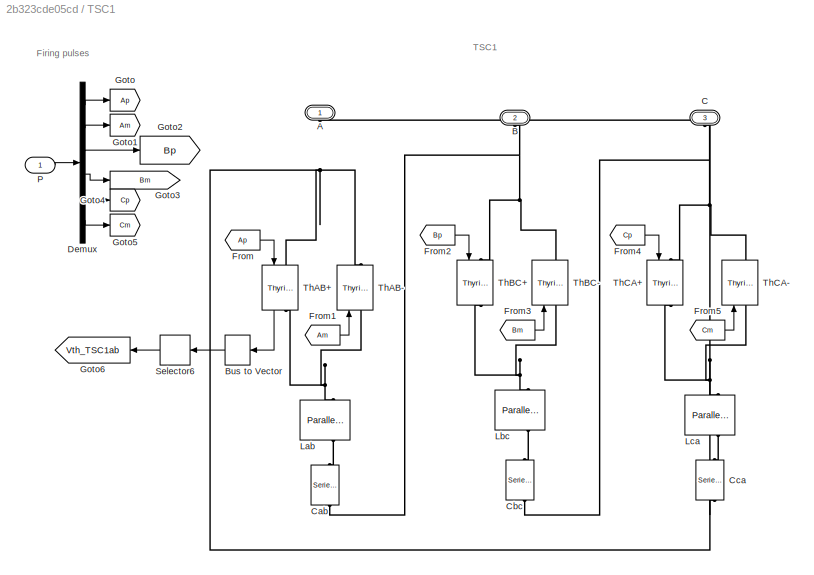
BLOCK [SubSystem] TSC1
  NameLocation = left
BLOCK [PMIOPort] TSC1/A
  NameLocation = left
  Side = Left
BLOCK [PMIOPort] TSC1/B
  NameLocation = left
  Port = 2
  Side = Left
BLOCK [BusToVector] TSC1/Bus to Vector
BLOCK [PMIOPort] TSC1/C
  NameLocation = left
  Port = 3
  Side = Left
BLOCK [Reference] TSC1/Cab  REF=spsSeriesRLCBranchLib/Series RLC Branch
  AttributesFormatString = \n
  NameLocation = left
  SourceBlock = spsSeriesRLCBranchLib/Series RLC Branch
  SourceType = Series RLC Branch
BLOCK [Reference] TSC1/Cbc  REF=spsSeriesRLCBranchLib/Series RLC Branch
  AttributesFormatString = \n
  NameLocation = left
  SourceBlock = spsSeriesRLCBranchLib/Series RLC Branch
  SourceType = Series RLC Branch
BLOCK [Reference] TSC1/Cca  REF=spsSeriesRLCBranchLib/Series RLC Branch
  AttributesFormatString = \n
  NameLocation = left
  SourceBlock = spsSeriesRLCBranchLib/Series RLC Branch
  SourceType = Series RLC Branch
BLOCK [Demux] TSC1/Demux
  DisplayOption = none
  Outputs = 6
BLOCK [From] TSC1/From
  CloseFcn = tagdialog Close
  GotoTag = Ap
BLOCK [From] TSC1/From1
  CloseFcn = tagdialog Close
  GotoTag = Am
BLOCK [From] TSC1/From2
  CloseFcn = tagdialog Close
  GotoTag = Bp
BLOCK [From] TSC1/From3
  CloseFcn = tagdialog Close
  GotoTag = Bm
BLOCK [From] TSC1/From4
  CloseFcn = tagdialog Close
  GotoTag = Cp
BLOCK [From] TSC1/From5
  CloseFcn = tagdialog Close
  GotoTag = Cm
BLOCK [Goto] TSC1/Goto
  GotoTag = Ap
BLOCK [Goto] TSC1/Goto1
  GotoTag = Am
BLOCK [Goto] TSC1/Goto2
  GotoTag = Bp
BLOCK [Goto] TSC1/Goto3
  GotoTag = Bm
BLOCK [Goto] TSC1/Goto4
  GotoTag = Cp
BLOCK [Goto] TSC1/Goto5
  GotoTag = Cm
BLOCK [Goto] TSC1/Goto6
  GotoTag = Vth_TSC1ab
  TagVisibility = global
BLOCK [Reference] TSC1/Lab  REF=spsParallelRLCBranchLib/Parallel RLC Branch
  AttributesFormatString = \n
  NameLocation = left
  SourceBlock = spsParallelRLCBranchLib/Parallel RLC Branch
  SourceType = Parallel RLC Branch
BLOCK [Reference] TSC1/Lbc  REF=spsParallelRLCBranchLib/Parallel RLC Branch
  AttributesFormatString = \n
  NameLocation = left
  SourceBlock = spsParallelRLCBranchLib/Parallel RLC Branch
  SourceType = Parallel RLC Branch
BLOCK [Reference] TSC1/Lca  REF=spsParallelRLCBranchLib/Parallel RLC Branch
  AttributesFormatString = \n
  NameLocation = left
  SourceBlock = spsParallelRLCBranchLib/Parallel RLC Branch
  SourceType = Parallel RLC Branch
BLOCK [Inport] TSC1/P
  PortDimensions = 6
BLOCK [Selector] TSC1/Selector6
  IndexOptions = Index vector (dialog)
  Indices = 2
  InputPortWidth = 2
  NameLocation = top
  OutputSizes = 1
BLOCK [Reference] TSC1/ThAB+  REF=spsThyristorLib/Thyristor
  AttributesFormatString = \n
  NameLocation = left
  SourceBlock = spsThyristorLib/Thyristor
  SourceType = Thyristor
BLOCK [Reference] TSC1/ThAB-  REF=spsThyristorLib/Thyristor
  AttributesFormatString = \n
  NameLocation = left
  SourceBlock = spsThyristorLib/Thyristor
  SourceType = Thyristor
BLOCK [Reference] TSC1/ThBC+  REF=spsThyristorLib/Thyristor
  AttributesFormatString = \n
  NameLocation = left
  SourceBlock = spsThyristorLib/Thyristor
  SourceType = Thyristor
BLOCK [Reference] TSC1/ThBC-  REF=spsThyristorLib/Thyristor
  AttributesFormatString = \n
  NameLocation = left
  SourceBlock = spsThyristorLib/Thyristor
  SourceType = Thyristor
BLOCK [Reference] TSC1/ThCA+  REF=spsThyristorLib/Thyristor
  AttributesFormatString = \n
  NameLocation = left
  SourceBlock = spsThyristorLib/Thyristor
  SourceType = Thyristor
BLOCK [Reference] TSC1/ThCA-  REF=spsThyristorLib/Thyristor
  AttributesFormatString = \n
  NameLocation = left
  SourceBlock = spsThyristorLib/Thyristor
  SourceType = Thyristor
BLOCK [SubSystem] TSC2
  NameLocation = left
BLOCK [PMIOPort] TSC2/A
  NameLocation = left
  Side = Left
BLOCK [PMIOPort] TSC2/B
  NameLocation = left
  Port = 2
  Side = Left
BLOCK [PMIOPort] TSC2/C
  NameLocation = left
  Port = 3
  Side = Left
BLOCK [Reference] TSC2/Cab  REF=spsSeriesRLCBranchLib/Series RLC Branch
  AttributesFormatString = \n
  NameLocation = left
  SourceBlock = spsSeriesRLCBranchLib/Series RLC Branch
  SourceType = Series RLC Branch
BLOCK [Reference] TSC2/Cbc  REF=spsSeriesRLCBranchLib/Series RLC Branch
  AttributesFormatString = \n
  NameLocation = left
  SourceBlock = spsSeriesRLCBranchLib/Series RLC Branch
  SourceType = Series RLC Branch
BLOCK [Reference] TSC2/Cca  REF=spsSeriesRLCBranchLib/Series RLC Branch
  AttributesFormatString = \n
  NameLocation = left
  SourceBlock = spsSeriesRLCBranchLib/Series RLC Branch
  SourceType = Series RLC Branch
BLOCK [Demux] TSC2/Demux
  DisplayOption = none
  Outputs = 6
BLOCK [From] TSC2/From
  CloseFcn = tagdialog Close
  GotoTag = Ap
BLOCK [From] TSC2/From1
  CloseFcn = tagdialog Close
  GotoTag = Am
BLOCK [From] TSC2/From2
  CloseFcn = tagdialog Close
  GotoTag = Bp
BLOCK [From] TSC2/From3
  CloseFcn = tagdialog Close
  GotoTag = Bm
BLOCK [From] TSC2/From4
  CloseFcn = tagdialog Close
  GotoTag = Cp
BLOCK [From] TSC2/From5
  CloseFcn = tagdialog Close
  GotoTag = Cm
BLOCK [Goto] TSC2/Goto
  GotoTag = Ap
BLOCK [Goto] TSC2/Goto1
  GotoTag = Am
BLOCK [Goto] TSC2/Goto2
  GotoTag = Bp
BLOCK [Goto] TSC2/Goto3
  GotoTag = Bm
BLOCK [Goto] TSC2/Goto4
  GotoTag = Cp
BLOCK [Goto] TSC2/Goto5
  GotoTag = Cm
BLOCK [Reference] TSC2/Lab  REF=spsParallelRLCBranchLib/Parallel RLC Branch
  AttributesFormatString = \n
  NameLocation = left
  SourceBlock = spsParallelRLCBranchLib/Parallel RLC Branch
  SourceType = Parallel RLC Branch
BLOCK [Reference] TSC2/Lbc  REF=spsParallelRLCBranchLib/Parallel RLC Branch
  AttributesFormatString = \n
  NameLocation = left
  SourceBlock = spsParallelRLCBranchLib/Parallel RLC Branch
  SourceType = Parallel RLC Branch
BLOCK [Reference] TSC2/Lca  REF=spsParallelRLCBranchLib/Parallel RLC Branch
  AttributesFormatString = \n
  NameLocation = left
  SourceBlock = spsParallelRLCBranchLib/Parallel RLC Branch
  SourceType = Parallel RLC Branch
BLOCK [Inport] TSC2/P
  PortDimensions = 6
BLOCK [Reference] TSC2/ThAB+  REF=spsThyristorLib/Thyristor
  AttributesFormatString = \n
  NameLocation = left
  SourceBlock = spsThyristorLib/Thyristor
  SourceType = Thyristor
BLOCK [Reference] TSC2/ThAB-  REF=spsThyristorLib/Thyristor
  AttributesFormatString = \n
  NameLocation = left
  SourceBlock = spsThyristorLib/Thyristor
  SourceType = Thyristor
BLOCK [Reference] TSC2/ThBC+  REF=spsThyristorLib/Thyristor
  AttributesFormatString = \n
  NameLocation = left
  SourceBlock = spsThyristorLib/Thyristor
  SourceType = Thyristor
BLOCK [Reference] TSC2/ThBC-  REF=spsThyristorLib/Thyristor
  AttributesFormatString = \n
  NameLocation = left
  SourceBlock = spsThyristorLib/Thyristor
  SourceType = Thyristor
BLOCK [Reference] TSC2/ThCA+  REF=spsThyristorLib/Thyristor
  AttributesFormatString = \n
  NameLocation = left
  SourceBlock = spsThyristorLib/Thyristor
  SourceType = Thyristor
BLOCK [Reference] TSC2/ThCA-  REF=spsThyristorLib/Thyristor
  AttributesFormatString = \n
  NameLocation = left
  SourceBlock = spsThyristorLib/Thyristor
  SourceType = Thyristor
BLOCK [SubSystem] TSC3
  NameLocation = left
BLOCK [PMIOPort] TSC3/A
  NameLocation = left
  Side = Left
BLOCK [PMIOPort] TSC3/B
  NameLocation = left
  Port = 2
  Side = Left
BLOCK [PMIOPort] TSC3/C
  NameLocation = left
  Port = 3
  Side = Left
BLOCK [Reference] TSC3/Cab  REF=spsSeriesRLCBranchLib/Series RLC Branch
  AttributesFormatString = \n
  NameLocation = left
  SourceBlock = spsSeriesRLCBranchLib/Series RLC Branch
  SourceType = Series RLC Branch
BLOCK [Reference] TSC3/Cbc  REF=spsSeriesRLCBranchLib/Series RLC Branch
  AttributesFormatString = \n
  NameLocation = left
  SourceBlock = spsSeriesRLCBranchLib/Series RLC Branch
  SourceType = Series RLC Branch
BLOCK [Reference] TSC3/Cca  REF=spsSeriesRLCBranchLib/Series RLC Branch
  AttributesFormatString = \n
  NameLocation = left
  SourceBlock = spsSeriesRLCBranchLib/Series RLC Branch
  SourceType = Series RLC Branch
BLOCK [Demux] TSC3/Demux
  DisplayOption = none
  Outputs = 6
BLOCK [From] TSC3/From
  CloseFcn = tagdialog Close
  GotoTag = Ap
BLOCK [From] TSC3/From1
  CloseFcn = tagdialog Close
  GotoTag = Am
BLOCK [From] TSC3/From2
  CloseFcn = tagdialog Close
  GotoTag = Bp
BLOCK [From] TSC3/From3
  CloseFcn = tagdialog Close
  GotoTag = Bm
BLOCK [From] TSC3/From4
  CloseFcn = tagdialog Close
  GotoTag = Cp
BLOCK [From] TSC3/From5
  CloseFcn = tagdialog Close
  GotoTag = Cm
BLOCK [Goto] TSC3/Goto
  GotoTag = Ap
BLOCK [Goto] TSC3/Goto1
  GotoTag = Am
BLOCK [Goto] TSC3/Goto2
  GotoTag = Bp
BLOCK [Goto] TSC3/Goto3
  GotoTag = Bm
BLOCK [Goto] TSC3/Goto4
  GotoTag = Cp
BLOCK [Goto] TSC3/Goto5
  GotoTag = Cm
BLOCK [Reference] TSC3/Lab  REF=spsParallelRLCBranchLib/Parallel RLC Branch
  AttributesFormatString = \n
  NameLocation = left
  SourceBlock = spsParallelRLCBranchLib/Parallel RLC Branch
  SourceType = Parallel RLC Branch
BLOCK [Reference] TSC3/Lbc  REF=spsParallelRLCBranchLib/Parallel RLC Branch
  AttributesFormatString = \n
  NameLocation = left
  SourceBlock = spsParallelRLCBranchLib/Parallel RLC Branch
  SourceType = Parallel RLC Branch
BLOCK [Reference] TSC3/Lca  REF=spsParallelRLCBranchLib/Parallel RLC Branch
  AttributesFormatString = \n
  NameLocation = left
  SourceBlock = spsParallelRLCBranchLib/Parallel RLC Branch
  SourceType = Parallel RLC Branch
BLOCK [Inport] TSC3/P
  PortDimensions = 6
BLOCK [Reference] TSC3/ThAB+  REF=spsThyristorLib/Thyristor
  AttributesFormatString = \n
  NameLocation = left
  SourceBlock = spsThyristorLib/Thyristor
  SourceType = Thyristor
BLOCK [Reference] TSC3/ThAB-  REF=spsThyristorLib/Thyristor
  AttributesFormatString = \n
  NameLocation = left
  SourceBlock = spsThyristorLib/Thyristor
  SourceType = Thyristor
BLOCK [Reference] TSC3/ThBC+  REF=spsThyristorLib/Thyristor
  AttributesFormatString = \n
  NameLocation = left
  SourceBlock = spsThyristorLib/Thyristor
  SourceType = Thyristor
BLOCK [Reference] TSC3/ThBC-  REF=spsThyristorLib/Thyristor
  AttributesFormatString = \n
  NameLocation = left
  SourceBlock = spsThyristorLib/Thyristor
  SourceType = Thyristor
BLOCK [Reference] TSC3/ThCA+  REF=spsThyristorLib/Thyristor
  AttributesFormatString = \n
  NameLocation = left
  SourceBlock = spsThyristorLib/Thyristor
  SourceType = Thyristor
BLOCK [Reference] TSC3/ThCA-  REF=spsThyristorLib/Thyristor
  AttributesFormatString = \n
  NameLocation = left
  SourceBlock = spsThyristorLib/Thyristor
  SourceType = Thyristor
BLOCK [Reference] Timer2  REF=spsStairGeneratorLib/Stair
Generator
  SourceBlock = spsStairGeneratorLib/Stair\nGenerator
  SourceType = Stair Generator
BLOCK [Reference] powergui  REF=spspowerguiLib/powergui
  Priority = 2
  SourceBlock = spspowerguiLib/powergui
  SourceType = PSB option menu block
ANNOTATION (root): {
ANNOTATION (root): Assumptions: -600km line -R= 0.15 Ohm/km [9 Ohm] -L= 0.5 mH/km [0.3 H]
ANNOTATION (root): Creates reference signal: 1pu
ANNOTATION (root): Vmeas is the measured Voltage. It changes depending on the state of the SVC (TSC/TCR conducting?) and the "input" voltage (Vabc_Prim), which changes twice and forces the SVC to "react" and go to a different operating point. The two voltage changes are defined within the programmable voltage source! Note: Primary side. Secondary side used in the controller to determine the firing angles
ANNOTATION (root): TCR 109 Mvar
ANNOTATION (root): TSC1 94 Mvar
ANNOTATION (root): TSC2 94 Mvar
ANNOTATION (root): TSC3 94 MVar
ANNOTATION Measurement System: PLL: synchronisiert Phasenlage und bestimmt Frequenz des Netzes
ANNOTATION Measurement System: Positive -Sequence-Block: "Mitsystem"- Berechnet die symmetrische (stabile) Spannungskomponente, die für die Regelung des SVC verwendet wird. Die positiv-sequence-Spannung repräsentiert die tatsächliche, stabile Netzspannung
ANNOTATION SVC Controller: Pulses
ANNOTATION SVC Controller: Behind this Subsystem, the voltage regulator is defined, using a droop, integrator, gain blocks and Bref, Vmes, Vref. Adapted from MathWorks. The 'result' of this block is Bsvc- the susceptance value. When Bsvc is within the defined limits [-1.04 3.23] voltage is regulated to Vref (precisely: V= Vref + Xs*I)
ANNOTATION SVC Controller: Stand 01.08. bis zur ditribution unit (inkl) läuft es soweit, Probleme danach v.a mit Datentypen Idee: Am Original weiter machen und vereinfachen/abändern
ANNOTATION SVC Controller: Subsystem (Mask) to specify on/off states of the TSCs an firing angle alpha taken from MathWorks
ANNOTATION SVC Controller/Distribution Unit: Bsec = ( 2 - Alpha/90 + sin(2*Alpha)/PI ) * Bsec_nom
ANNOTATION SVC Controller/Firing Unit/Firing Unit AB: Compute number of samples per cycle
ANNOTATION SVC Controller/Firing Unit/Firing Unit AB: Generate firing pulse for TCR +
ANNOTATION SVC Controller/Firing Unit/Firing Unit AB: Generate firing pulse for TCR -
ANNOTATION SVC Controller/Firing Unit/Firing Unit AB: Generate firing pulses for TSC1
ANNOTATION SVC Controller/Firing Unit/Firing Unit AB: Generate firing pulses for TSC2
ANNOTATION SVC Controller/Firing Unit/Firing Unit AB: Generate firing pulses for TSC3
ANNOTATION SVC Controller/Firing Unit/Firing Unit AB: Generate square-wave lagging Input voltage by 90 degrees and pulses (width of one sample) for positive (Sync +) and negative (Sync -) transition
ANNOTATION SVC Controller/Firing Unit/Firing Unit AB: Input voltage
ANNOTATION SVC Controller/Firing Unit/Firing Unit AB: PLL sync on pos. peak of input
ANNOTATION SVC Controller/Firing Unit/Firing Unit AB/PLL sync on positive peak : Discrete 1-phase PLL
ANNOTATION SVC Controller/Firing Unit/Firing Unit AB/PLL sync on positive peak : Note: -sin( a ) * sin( b ) = 1/2 * cos( a+b ) - 1/2 * cos(a-b)
ANNOTATION SVC Controller/Firing Unit/Firing Unit AB/PLL sync on positive peak : Note: PLL synchronized on positive peak of input
ANNOTATION SVC Controller/Firing Unit/Firing Unit AB/PLL sync on positive peak : Pierre Giroux, Gilbert Sybille Power System Laboratory, IREQ Hydro-Quebec
ANNOTATION SVC Controller/Firing Unit/Firing Unit AB/PLL sync on positive peak /Discrete PI Controller: Discrete PID Controller
ANNOTATION SVC Controller/Firing Unit/Firing Unit AB/PLL sync on positive peak /Discrete PI Controller: Pierre Giroux, Gilbert Sybille Power System Simulation Laboratory IREQ, Hydro-Quebc
ANNOTATION SVC Controller/Firing Unit/Firing Unit AB/TCS Pulse Generator: Note: Sync+ , Sync - and SqWave signals are inverted for TSC firing (i.e. positive thyristor is fired on negative peak voltage)
ANNOTATION SVC Controller/Firing Unit/Firing Unit AB/TCS Pulse Generator1: Note: Sync+ , Sync - and SqWave signals are inverted for TSC firing (i.e. positive thyristor is fired on negative peak voltage)
ANNOTATION SVC Controller/Firing Unit/Firing Unit AB/TCS Pulse Generator2: Note: Sync+ , Sync - and SqWave signals are inverted for TSC firing (i.e. positive thyristor is fired on negative peak voltage)
ANNOTATION SVC Controller/Firing Unit/Firing Unit BC: Compute number of samples per cycle
ANNOTATION SVC Controller/Firing Unit/Firing Unit BC: Generate firing pulse for TCR +
ANNOTATION SVC Controller/Firing Unit/Firing Unit BC: Generate firing pulse for TCR -
ANNOTATION SVC Controller/Firing Unit/Firing Unit BC: Generate firing pulses for TSC1
ANNOTATION SVC Controller/Firing Unit/Firing Unit BC: Generate firing pulses for TSC2
ANNOTATION SVC Controller/Firing Unit/Firing Unit BC: Generate firing pulses for TSC3
ANNOTATION SVC Controller/Firing Unit/Firing Unit BC: Generate square-wave lagging Input voltage by 90 degrees and pulses (width of one sample) for positive (Sync +) and negative (Sync -) transition
ANNOTATION SVC Controller/Firing Unit/Firing Unit BC: Input voltage
ANNOTATION SVC Controller/Firing Unit/Firing Unit BC: PLL sync on pos. peak of input
ANNOTATION SVC Controller/Firing Unit/Firing Unit BC/PLL sync on positive peak : Discrete 1-phase PLL
ANNOTATION SVC Controller/Firing Unit/Firing Unit BC/PLL sync on positive peak : Note: -sin( a ) * sin( b ) = 1/2 * cos( a+b ) - 1/2 * cos(a-b)
ANNOTATION SVC Controller/Firing Unit/Firing Unit BC/PLL sync on positive peak : Note: PLL synchronized on positive peak of input
ANNOTATION SVC Controller/Firing Unit/Firing Unit BC/PLL sync on positive peak : Pierre Giroux, Gilbert Sybille Power System Laboratory, IREQ Hydro-Quebec
ANNOTATION SVC Controller/Firing Unit/Firing Unit BC/PLL sync on positive peak /Discrete PI Controller: Discrete PID Controller
ANNOTATION SVC Controller/Firing Unit/Firing Unit BC/PLL sync on positive peak /Discrete PI Controller: Pierre Giroux, Gilbert Sybille Power System Simulation Laboratory IREQ, Hydro-Quebc
ANNOTATION SVC Controller/Firing Unit/Firing Unit BC/TCS Pulse Generator: Note: Sync+ , Sync - and SqWave signals are inverted for TSC firing (i.e. positive thyristor is fired on negative peak voltage)
ANNOTATION SVC Controller/Firing Unit/Firing Unit BC/TCS Pulse Generator1: Note: Sync+ , Sync - and SqWave signals are inverted for TSC firing (i.e. positive thyristor is fired on negative peak voltage)
ANNOTATION SVC Controller/Firing Unit/Firing Unit BC/TCS Pulse Generator2: Note: Sync+ , Sync - and SqWave signals are inverted for TSC firing (i.e. positive thyristor is fired on negative peak voltage)
ANNOTATION SVC Controller/Firing Unit/Firing Unit CA: Compute number of samples per cycle
ANNOTATION SVC Controller/Firing Unit/Firing Unit CA: Generate firing pulse for TCR +
ANNOTATION SVC Controller/Firing Unit/Firing Unit CA: Generate firing pulse for TCR -
ANNOTATION SVC Controller/Firing Unit/Firing Unit CA: Generate firing pulses for TSC1
ANNOTATION SVC Controller/Firing Unit/Firing Unit CA: Generate firing pulses for TSC2
ANNOTATION SVC Controller/Firing Unit/Firing Unit CA: Generate firing pulses for TSC3
ANNOTATION SVC Controller/Firing Unit/Firing Unit CA: Generate square-wave lagging Input voltage by 90 degrees and pulses (width of one sample) for positive (Sync +) and negative (Sync -) transition
ANNOTATION SVC Controller/Firing Unit/Firing Unit CA: Input voltage
ANNOTATION SVC Controller/Firing Unit/Firing Unit CA: PLL sync on pos. peak of input
ANNOTATION SVC Controller/Firing Unit/Firing Unit CA/PLL sync on positive peak : Discrete 1-phase PLL
ANNOTATION SVC Controller/Firing Unit/Firing Unit CA/PLL sync on positive peak : Note: -sin( a ) * sin( b ) = 1/2 * cos( a+b ) - 1/2 * cos(a-b)
ANNOTATION SVC Controller/Firing Unit/Firing Unit CA/PLL sync on positive peak : Note: PLL synchronized on positive peak of input
ANNOTATION SVC Controller/Firing Unit/Firing Unit CA/PLL sync on positive peak : Pierre Giroux, Gilbert Sybille Power System Laboratory, IREQ Hydro-Quebec
ANNOTATION SVC Controller/Firing Unit/Firing Unit CA/PLL sync on positive peak /Discrete PI Controller: Discrete PID Controller
ANNOTATION SVC Controller/Firing Unit/Firing Unit CA/PLL sync on positive peak /Discrete PI Controller: Pierre Giroux, Gilbert Sybille Power System Simulation Laboratory IREQ, Hydro-Quebc
ANNOTATION SVC Controller/Firing Unit/Firing Unit CA/TCS Pulse Generator: Note: Sync+ , Sync - and SqWave signals are inverted for TSC firing (i.e. positive thyristor is fired on negative peak voltage)
ANNOTATION SVC Controller/Firing Unit/Firing Unit CA/TCS Pulse Generator1: Note: Sync+ , Sync - and SqWave signals are inverted for TSC firing (i.e. positive thyristor is fired on negative peak voltage)
ANNOTATION SVC Controller/Firing Unit/Firing Unit CA/TCS Pulse Generator2: Note: Sync+ , Sync - and SqWave signals are inverted for TSC firing (i.e. positive thyristor is fired on negative peak voltage)
ANNOTATION SVC Controller/Voltage Regulator: Closed-loop time constant --> Tc = [ Xs / ( Xr + Xs ) ] * To
ANNOTATION SVC Controller/Voltage Regulator: Open-loop time constant --> To = 1 / ( Ki * Xs )
ANNOTATION SVC Controller/Voltage Regulator: Xs -> Slope in pu/100MVA Ki -> Integral gain (puB/puV/s)
ANNOTATION SVC Controller/Voltage Regulator: invertiert (*-1)
ANNOTATION SVC Controller/Voltage Regulator: where:
ANNOTATION TCR: Firing pulses
ANNOTATION TCR: TCR
ANNOTATION TSC1: Firing pulses
ANNOTATION TSC1: TSC1
ANNOTATION TSC2: Firing pulses
ANNOTATION TSC3: Firing pulses
LINE Constant1:1 -> SVC Controller:2
LINE Constant:1 -> Sum:1
LINE Current Measurement1:1 -> Scope3:1
LINE Current Measurement:1 -> Scope:1
LINE From1:1 -> Scope2:3
NET From4:1 -> Measurement System:1, Scope1:1
LINE From:1 -> Scope2:1
LINE Fromx:1 -> Scope2:2
LINE Measurement System/PLL (3ph):1 -> Measurement System/Positive-Sequence (PLL-Driven):1
LINE Measurement System/PLL (3ph):2 -> Measurement System/Positive-Sequence (PLL-Driven):2
LINE Measurement System/Positive-Sequence (PLL-Driven):1 -> Measurement System/Vmeas:1
LINE Measurement System/Positive-Sequence (PLL-Driven):2 -> Measurement System/Terminator2:1
NET Measurement System/Vabc_Prim:1 -> Measurement System/PLL (3ph):1, Measurement System/Positive-Sequence (PLL-Driven):3
NET Measurement System:1 -> Goto xy:1, SVC Controller:1
LINE SVC Controller/Bref:1 -> SVC Controller/Voltage Regulator:2
NET SVC Controller/Distribution Unit/Bprim-->Bsec:1 -> SVC Controller/Distribution Unit/Sum1:1, SVC Controller/Distribution Unit/TSC1+TSC2+TSC3:1, SVC Controller/Distribution Unit/TSC1+TSC2:1, SVC Controller/Distribution Unit/TSC1:1
NET SVC Controller/Distribution Unit/Bsec --> Alpha:1 -> SVC Controller/Distribution Unit/Alpha:1, SVC Controller/Distribution Unit/Display:1
LINE SVC Controller/Distribution Unit/Bsvc:1 -> SVC Controller/Distribution Unit/Bprim-->Bsec:1
LINE SVC Controller/Distribution Unit/Saturation:1 -> SVC Controller/Distribution Unit/pu100_puLnom:1
LINE SVC Controller/Distribution Unit/Sum1:1 -> SVC Controller/Distribution Unit/Saturation:1
NET SVC Controller/Distribution Unit/TSC1+TSC2+TSC3:1 -> SVC Controller/Distribution Unit/TSC3_On:1, SVC Controller/Distribution Unit/pu100_puLnom1:1
NET SVC Controller/Distribution Unit/TSC1+TSC2:1 -> SVC Controller/Distribution Unit/TSC2_On:1, SVC Controller/Distribution Unit/pu100_puLnom2:1
NET SVC Controller/Distribution Unit/TSC1:1 -> SVC Controller/Distribution Unit/TSC1_On:1, SVC Controller/Distribution Unit/pu100_puLnom3:1
LINE SVC Controller/Distribution Unit/pu100_puLnom1:1 -> SVC Controller/Distribution Unit/Sum1:4
LINE SVC Controller/Distribution Unit/pu100_puLnom2:1 -> SVC Controller/Distribution Unit/Sum1:3
LINE SVC Controller/Distribution Unit/pu100_puLnom3:1 -> SVC Controller/Distribution Unit/Sum1:2
LINE SVC Controller/Distribution Unit/pu100_puLnom:1 -> SVC Controller/Distribution Unit/Bsec --> Alpha:1
NET SVC Controller/Distribution Unit:1 -> SVC Controller/Firing Unit:2, SVC Controller/Goto:1
NET SVC Controller/Distribution Unit:2 -> SVC Controller/Firing Unit:3, SVC Controller/Goto1:1
NET SVC Controller/Distribution Unit:3 -> SVC Controller/Firing Unit:4, SVC Controller/Goto2:1
NET SVC Controller/Distribution Unit:4 -> SVC Controller/Firing Unit:5, SVC Controller/Goto5:1
NET SVC Controller/Firing Unit/Alpha:1 -> SVC Controller/Firing Unit/Firing Unit AB:2, SVC Controller/Firing Unit/Firing Unit BC:2, SVC Controller/Firing Unit/Firing Unit CA:2
LINE SVC Controller/Firing Unit/Demux:1 -> SVC Controller/Firing Unit/Firing Unit AB:1
LINE SVC Controller/Firing Unit/Demux:2 -> SVC Controller/Firing Unit/Firing Unit BC:1
LINE SVC Controller/Firing Unit/Demux:3 -> SVC Controller/Firing Unit/Firing Unit CA:1
NET SVC Controller/Firing Unit/Firing Unit AB/Alpha:1 -> SVC Controller/Firing Unit/Firing Unit AB/TCR Pulse Generatorr1:2, SVC Controller/Firing Unit/Firing Unit AB/TCR Pulse Generatorr:2
LINE SVC Controller/Firing Unit/Firing Unit AB/BL2/Constant1:1 -> SVC Controller/Firing Unit/Firing Unit AB/BL2/Relational Operator1:2
LINE SVC Controller/Firing Unit/Firing Unit AB/BL2/Constant2:1 -> SVC Controller/Firing Unit/Firing Unit AB/BL2/Switch:3
LINE SVC Controller/Firing Unit/Firing Unit AB/BL2/Constant3:1 -> SVC Controller/Firing Unit/Firing Unit AB/BL2/Product:2
LINE SVC Controller/Firing Unit/Firing Unit AB/BL2/Freq:1 -> SVC Controller/Firing Unit/Firing Unit AB/BL2/Gain:1
NET SVC Controller/Firing Unit/Firing Unit AB/BL2/Gain:1 -> SVC Controller/Firing Unit/Firing Unit AB/BL2/Relational Operator1:1, SVC Controller/Firing Unit/Firing Unit AB/BL2/Switch:1
LINE SVC Controller/Firing Unit/Firing Unit AB/BL2/Product:1 -> SVC Controller/Firing Unit/Firing Unit AB/BL2/Ns//c:1
LINE SVC Controller/Firing Unit/Firing Unit AB/BL2/Relational Operator1:1 -> SVC Controller/Firing Unit/Firing Unit AB/BL2/Switch:2
LINE SVC Controller/Firing Unit/Firing Unit AB/BL2/Switch:1 -> SVC Controller/Firing Unit/Firing Unit AB/BL2/Product:1
NET SVC Controller/Firing Unit/Firing Unit AB/BL2:1 -> SVC Controller/Firing Unit/Firing Unit AB/TCR Pulse Generatorr1:1, SVC Controller/Firing Unit/Firing Unit AB/TCR Pulse Generatorr:1
LINE SVC Controller/Firing Unit/Firing Unit AB/BL3/Bistable:1 -> SVC Controller/Firing Unit/Firing Unit AB/BL3/Data Type Conversion:1
LINE SVC Controller/Firing Unit/Firing Unit AB/BL3/Bistable:2 -> SVC Controller/Firing Unit/Firing Unit AB/BL3/Terminator:1
NET SVC Controller/Firing Unit/Firing Unit AB/BL3/Data Type Conversion:1 -> SVC Controller/Firing Unit/Firing Unit AB/BL3/Edge Detector1:1, SVC Controller/Firing Unit/Firing Unit AB/BL3/Edge Detector:1, SVC Controller/Firing Unit/Firing Unit AB/BL3/SqWave:1
LINE SVC Controller/Firing Unit/Firing Unit AB/BL3/Edge Detector1:1 -> SVC Controller/Firing Unit/Firing Unit AB/BL3/Sync -:1
LINE SVC Controller/Firing Unit/Firing Unit AB/BL3/Edge Detector2:1 -> SVC Controller/Firing Unit/Firing Unit AB/BL3/Bistable:1
LINE SVC Controller/Firing Unit/Firing Unit AB/BL3/Edge Detector3:1 -> SVC Controller/Firing Unit/Firing Unit AB/BL3/Bistable:2
LINE SVC Controller/Firing Unit/Firing Unit AB/BL3/Edge Detector:1 -> SVC Controller/Firing Unit/Firing Unit AB/BL3/Sync +:1
LINE SVC Controller/Firing Unit/Firing Unit AB/BL3/Freq:1 -> SVC Controller/Firing Unit/Firing Unit AB/BL3/Product2:2
LINE SVC Controller/Firing Unit/Firing Unit AB/BL3/Product2:1 -> SVC Controller/Firing Unit/Firing Unit AB/BL3/Trigonometric Function7:1
LINE SVC Controller/Firing Unit/Firing Unit AB/BL3/Relational Operator2:1 -> SVC Controller/Firing Unit/Firing Unit AB/BL3/Edge Detector3:1
LINE SVC Controller/Firing Unit/Firing Unit AB/BL3/Relational Operator:1 -> SVC Controller/Firing Unit/Firing Unit AB/BL3/Edge Detector2:1
LINE SVC Controller/Firing Unit/Firing Unit AB/BL3/Sum5:1 -> SVC Controller/Firing Unit/Firing Unit AB/BL3/Relational Operator:2
LINE SVC Controller/Firing Unit/Firing Unit AB/BL3/Sum6:1 -> SVC Controller/Firing Unit/Firing Unit AB/BL3/Relational Operator2:2
NET SVC Controller/Firing Unit/Firing Unit AB/BL3/Trigonometric Function7:1 -> SVC Controller/Firing Unit/Firing Unit AB/BL3/Sum5:2, SVC Controller/Firing Unit/Firing Unit AB/BL3/Sum6:2
NET SVC Controller/Firing Unit/Firing Unit AB/BL3/alpha2:1 -> SVC Controller/Firing Unit/Firing Unit AB/BL3/Sum5:1, SVC Controller/Firing Unit/Firing Unit AB/BL3/Sum6:1
LINE SVC Controller/Firing Unit/Firing Unit AB/BL3/alpha9:1 -> SVC Controller/Firing Unit/Firing Unit AB/BL3/Product2:1
NET SVC Controller/Firing Unit/Firing Unit AB/BL3/sin(wt):1 -> SVC Controller/Firing Unit/Firing Unit AB/BL3/Relational Operator2:1, SVC Controller/Firing Unit/Firing Unit AB/BL3/Relational Operator:1
NET SVC Controller/Firing Unit/Firing Unit AB/BL3:1 -> SVC Controller/Firing Unit/Firing Unit AB/Logical Operator2:1, SVC Controller/Firing Unit/Firing Unit AB/TCR Pulse Generatorr:4, SVC Controller/Firing Unit/Firing Unit AB/TCS Pulse Generator1:1, SVC Controller/Firing Unit/Firing Unit AB/TCS Pulse Generator2:1, SVC Controller/Firing Unit/Firing Unit AB/TCS Pulse Generator:1
NET SVC Controller/Firing Unit/Firing Unit AB/BL3:2 -> SVC Controller/Firing Unit/Firing Unit AB/TCR Pulse Generatorr:3, SVC Controller/Firing Unit/Firing Unit AB/TCS Pulse Generator1:2, SVC Controller/Firing Unit/Firing Unit AB/TCS Pulse Generator2:2, SVC Controller/Firing Unit/Firing Unit AB/TCS Pulse Generator:2
NET SVC Controller/Firing Unit/Firing Unit AB/BL3:3 -> SVC Controller/Firing Unit/Firing Unit AB/TCR Pulse Generatorr1:3, SVC Controller/Firing Unit/Firing Unit AB/TCS Pulse Generator1:3, SVC Controller/Firing Unit/Firing Unit AB/TCS Pulse Generator2:3, SVC Controller/Firing Unit/Firing Unit AB/TCS Pulse Generator:3
LINE SVC Controller/Firing Unit/Firing Unit AB/Correction for delay:1 -> SVC Controller/Firing Unit/Firing Unit AB/Sum:1
LINE SVC Controller/Firing Unit/Firing Unit AB/Logical Operator2:1 -> SVC Controller/Firing Unit/Firing Unit AB/TCR Pulse Generatorr1:4
LINE SVC Controller/Firing Unit/Firing Unit AB/PLL sync on positive peak /Constant4:1 -> SVC Controller/Firing Unit/Firing Unit AB/PLL sync on positive peak /Math Function:2
NET SVC Controller/Firing Unit/Firing Unit AB/PLL sync on positive peak /Discrete PI Controller:1 -> SVC Controller/Firing Unit/Firing Unit AB/PLL sync on positive peak /Discrete-Time Integrator:1, SVC Controller/Firing Unit/Firing Unit AB/PLL sync on positive peak /Gain10:1
LINE SVC Controller/Firing Unit/Firing Unit AB/PLL sync on positive peak /Discrete-Time Integrator:1 -> SVC Controller/Firing Unit/Firing Unit AB/PLL sync on positive peak /Math Function:1
LINE SVC Controller/Firing Unit/Firing Unit AB/PLL sync on positive peak /Gain10:1 -> SVC Controller/Firing Unit/Firing Unit AB/PLL sync on positive peak /Rate Limiter:1
LINE SVC Controller/Firing Unit/Firing Unit AB/PLL sync on positive peak /Gain12:1 -> SVC Controller/Firing Unit/Firing Unit AB/PLL sync on positive peak /Product1:1
NET SVC Controller/Firing Unit/Firing Unit AB/PLL sync on positive peak /Math Function:1 -> SVC Controller/Firing Unit/Firing Unit AB/PLL sync on positive peak /Trigonometric Function6:1, SVC Controller/Firing Unit/Firing Unit AB/PLL sync on positive peak /wt:1
LINE SVC Controller/Firing Unit/Firing Unit AB/PLL sync on positive peak /Mean (Variable Frequency)1:1 -> SVC Controller/Firing Unit/Firing Unit AB/PLL sync on positive peak /Discrete PI Controller:1
LINE SVC Controller/Firing Unit/Firing Unit AB/PLL sync on positive peak /Product1:1 -> SVC Controller/Firing Unit/Firing Unit AB/PLL sync on positive peak /Mean (Variable Frequency)1:2
LINE SVC Controller/Firing Unit/Firing Unit AB/PLL sync on positive peak /Rate Limiter:1 -> SVC Controller/Firing Unit/Firing Unit AB/PLL sync on positive peak /Second-Order Filter:1
LINE SVC Controller/Firing Unit/Firing Unit AB/PLL sync on positive peak /Second-Order Filter:1 -> SVC Controller/Firing Unit/Firing Unit AB/PLL sync on positive peak /Unit Delay1:1
LINE SVC Controller/Firing Unit/Firing Unit AB/PLL sync on positive peak /Trigonometric Function6:1 -> SVC Controller/Firing Unit/Firing Unit AB/PLL sync on positive peak /Product1:2
NET SVC Controller/Firing Unit/Firing Unit AB/PLL sync on positive peak /Unit Delay1:1 -> SVC Controller/Firing Unit/Firing Unit AB/PLL sync on positive peak /Freq:1, SVC Controller/Firing Unit/Firing Unit AB/PLL sync on positive peak /Mean (Variable Frequency)1:1
LINE SVC Controller/Firing Unit/Firing Unit AB/PLL sync on positive peak /V(pu):1 -> SVC Controller/Firing Unit/Firing Unit AB/PLL sync on positive peak /Gain12:1
NET SVC Controller/Firing Unit/Firing Unit AB/PLL sync on positive peak :1 -> SVC Controller/Firing Unit/Firing Unit AB/BL2:1, SVC Controller/Firing Unit/Firing Unit AB/BL3:1, SVC Controller/Firing Unit/Firing Unit AB/Correction for delay:1
LINE SVC Controller/Firing Unit/Firing Unit AB/PLL sync on positive peak :2 -> SVC Controller/Firing Unit/Firing Unit AB/Sum:2
LINE SVC Controller/Firing Unit/Firing Unit AB/Sum:1 -> SVC Controller/Firing Unit/Firing Unit AB/Trigonometric Function6:1
LINE SVC Controller/Firing Unit/Firing Unit AB/TCR Pulse Generatorr/Alpha 90<A<181:1 -> SVC Controller/Firing Unit/Firing Unit AB/TCR Pulse Generatorr/Sum1:2
LINE SVC Controller/Firing Unit/Firing Unit AB/TCR Pulse Generatorr/Alpha 90<A<182:1 -> SVC Controller/Firing Unit/Firing Unit AB/TCR Pulse Generatorr/Product:2
LINE SVC Controller/Firing Unit/Firing Unit AB/TCR Pulse Generatorr/Alpha 90<A<183:1 -> SVC Controller/Firing Unit/Firing Unit AB/TCR Pulse Generatorr/Product2:2
LINE SVC Controller/Firing Unit/Firing Unit AB/TCR Pulse Generatorr/Alpha 90<A<184:1 -> SVC Controller/Firing Unit/Firing Unit AB/TCR Pulse Generatorr/Sum2:2
LINE SVC Controller/Firing Unit/Firing Unit AB/TCR Pulse Generatorr/Alpha 90<A<185:1 -> SVC Controller/Firing Unit/Firing Unit AB/TCR Pulse Generatorr/Relational Operator1:2
LINE SVC Controller/Firing Unit/Firing Unit AB/TCR Pulse Generatorr/Alpha:1 -> SVC Controller/Firing Unit/Firing Unit AB/TCR Pulse Generatorr/Sample and Hold:1
NET SVC Controller/Firing Unit/Firing Unit AB/TCR Pulse Generatorr/Discrete-Time Integrator:1 -> SVC Controller/Firing Unit/Firing Unit AB/TCR Pulse Generatorr/Relational Operator2:1, SVC Controller/Firing Unit/Firing Unit AB/TCR Pulse Generatorr/Relational Operator3:1
LINE SVC Controller/Firing Unit/Firing Unit AB/TCR Pulse Generatorr/Gain2:1 -> SVC Controller/Firing Unit/Firing Unit AB/TCR Pulse Generatorr/Discrete-Time Integrator:1
LINE SVC Controller/Firing Unit/Firing Unit AB/TCR Pulse Generatorr/Logical Operator1:1 -> SVC Controller/Firing Unit/Firing Unit AB/TCR Pulse Generatorr/TCR +//-:1
LINE SVC Controller/Firing Unit/Firing Unit AB/TCR Pulse Generatorr/Logical Operator2:1 -> SVC Controller/Firing Unit/Firing Unit AB/TCR Pulse Generatorr/Discrete-Time Integrator:2
NET SVC Controller/Firing Unit/Firing Unit AB/TCR Pulse Generatorr/Ns//c:1 -> SVC Controller/Firing Unit/Firing Unit AB/TCR Pulse Generatorr/Product1:1, SVC Controller/Firing Unit/Firing Unit AB/TCR Pulse Generatorr/Product2:1
LINE SVC Controller/Firing Unit/Firing Unit AB/TCR Pulse Generatorr/Product1:1 -> SVC Controller/Firing Unit/Firing Unit AB/TCR Pulse Generatorr/Rounding Function1:1
LINE SVC Controller/Firing Unit/Firing Unit AB/TCR Pulse Generatorr/Product2:1 -> SVC Controller/Firing Unit/Firing Unit AB/TCR Pulse Generatorr/Rounding Function3:1
LINE SVC Controller/Firing Unit/Firing Unit AB/TCR Pulse Generatorr/Product:1 -> SVC Controller/Firing Unit/Firing Unit AB/TCR Pulse Generatorr/Product1:2
LINE SVC Controller/Firing Unit/Firing Unit AB/TCR Pulse Generatorr/Relational Operator1:1 -> SVC Controller/Firing Unit/Firing Unit AB/TCR Pulse Generatorr/Switch:2
LINE SVC Controller/Firing Unit/Firing Unit AB/TCR Pulse Generatorr/Relational Operator2:1 -> SVC Controller/Firing Unit/Firing Unit AB/TCR Pulse Generatorr/Logical Operator1:2
LINE SVC Controller/Firing Unit/Firing Unit AB/TCR Pulse Generatorr/Relational Operator3:1 -> SVC Controller/Firing Unit/Firing Unit AB/TCR Pulse Generatorr/Logical Operator1:3
NET SVC Controller/Firing Unit/Firing Unit AB/TCR Pulse Generatorr/Rounding Function1:1 -> SVC Controller/Firing Unit/Firing Unit AB/TCR Pulse Generatorr/Sum2:3, SVC Controller/Firing Unit/Firing Unit AB/TCR Pulse Generatorr/Switch:1
NET SVC Controller/Firing Unit/Firing Unit AB/TCR Pulse Generatorr/Rounding Function3:1 -> SVC Controller/Firing Unit/Firing Unit AB/TCR Pulse Generatorr/Sum2:1, SVC Controller/Firing Unit/Firing Unit AB/TCR Pulse Generatorr/Switch:3
LINE SVC Controller/Firing Unit/Firing Unit AB/TCR Pulse Generatorr/Sample and Hold:1 -> SVC Controller/Firing Unit/Firing Unit AB/TCR Pulse Generatorr/Sum1:1
NET SVC Controller/Firing Unit/Firing Unit AB/TCR Pulse Generatorr/SqWave:1 -> SVC Controller/Firing Unit/Firing Unit AB/TCR Pulse Generatorr/Gain2:1, SVC Controller/Firing Unit/Firing Unit AB/TCR Pulse Generatorr/Logical Operator1:1, SVC Controller/Firing Unit/Firing Unit AB/TCR Pulse Generatorr/Logical Operator2:1
NET SVC Controller/Firing Unit/Firing Unit AB/TCR Pulse Generatorr/Sum1:1 -> SVC Controller/Firing Unit/Firing Unit AB/TCR Pulse Generatorr/Product:1, SVC Controller/Firing Unit/Firing Unit AB/TCR Pulse Generatorr/Relational Operator1:1
LINE SVC Controller/Firing Unit/Firing Unit AB/TCR Pulse Generatorr/Sum2:1 -> SVC Controller/Firing Unit/Firing Unit AB/TCR Pulse Generatorr/Relational Operator3:2
LINE SVC Controller/Firing Unit/Firing Unit AB/TCR Pulse Generatorr/Switch:1 -> SVC Controller/Firing Unit/Firing Unit AB/TCR Pulse Generatorr/Relational Operator2:2
LINE SVC Controller/Firing Unit/Firing Unit AB/TCR Pulse Generatorr/Sync +//-:1 -> SVC Controller/Firing Unit/Firing Unit AB/TCR Pulse Generatorr/Sample and Hold:2
LINE SVC Controller/Firing Unit/Firing Unit AB/TCR Pulse Generatorr1/Alpha 90<A<181:1 -> SVC Controller/Firing Unit/Firing Unit AB/TCR Pulse Generatorr1/Sum1:2
LINE SVC Controller/Firing Unit/Firing Unit AB/TCR Pulse Generatorr1/Alpha 90<A<182:1 -> SVC Controller/Firing Unit/Firing Unit AB/TCR Pulse Generatorr1/Product:2
LINE SVC Controller/Firing Unit/Firing Unit AB/TCR Pulse Generatorr1/Alpha 90<A<183:1 -> SVC Controller/Firing Unit/Firing Unit AB/TCR Pulse Generatorr1/Product2:2
LINE SVC Controller/Firing Unit/Firing Unit AB/TCR Pulse Generatorr1/Alpha 90<A<184:1 -> SVC Controller/Firing Unit/Firing Unit AB/TCR Pulse Generatorr1/Sum2:2
LINE SVC Controller/Firing Unit/Firing Unit AB/TCR Pulse Generatorr1/Alpha 90<A<185:1 -> SVC Controller/Firing Unit/Firing Unit AB/TCR Pulse Generatorr1/Relational Operator1:2
LINE SVC Controller/Firing Unit/Firing Unit AB/TCR Pulse Generatorr1/Alpha:1 -> SVC Controller/Firing Unit/Firing Unit AB/TCR Pulse Generatorr1/Sample and Hold:1
NET SVC Controller/Firing Unit/Firing Unit AB/TCR Pulse Generatorr1/Discrete-Time Integrator:1 -> SVC Controller/Firing Unit/Firing Unit AB/TCR Pulse Generatorr1/Relational Operator2:1, SVC Controller/Firing Unit/Firing Unit AB/TCR Pulse Generatorr1/Relational Operator3:1
LINE SVC Controller/Firing Unit/Firing Unit AB/TCR Pulse Generatorr1/Gain2:1 -> SVC Controller/Firing Unit/Firing Unit AB/TCR Pulse Generatorr1/Discrete-Time Integrator:1
LINE SVC Controller/Firing Unit/Firing Unit AB/TCR Pulse Generatorr1/Logical Operator1:1 -> SVC Controller/Firing Unit/Firing Unit AB/TCR Pulse Generatorr1/TCR +//-:1
LINE SVC Controller/Firing Unit/Firing Unit AB/TCR Pulse Generatorr1/Logical Operator2:1 -> SVC Controller/Firing Unit/Firing Unit AB/TCR Pulse Generatorr1/Discrete-Time Integrator:2
NET SVC Controller/Firing Unit/Firing Unit AB/TCR Pulse Generatorr1/Ns//c:1 -> SVC Controller/Firing Unit/Firing Unit AB/TCR Pulse Generatorr1/Product1:1, SVC Controller/Firing Unit/Firing Unit AB/TCR Pulse Generatorr1/Product2:1
LINE SVC Controller/Firing Unit/Firing Unit AB/TCR Pulse Generatorr1/Product1:1 -> SVC Controller/Firing Unit/Firing Unit AB/TCR Pulse Generatorr1/Rounding Function1:1
LINE SVC Controller/Firing Unit/Firing Unit AB/TCR Pulse Generatorr1/Product2:1 -> SVC Controller/Firing Unit/Firing Unit AB/TCR Pulse Generatorr1/Rounding Function3:1
LINE SVC Controller/Firing Unit/Firing Unit AB/TCR Pulse Generatorr1/Product:1 -> SVC Controller/Firing Unit/Firing Unit AB/TCR Pulse Generatorr1/Product1:2
LINE SVC Controller/Firing Unit/Firing Unit AB/TCR Pulse Generatorr1/Relational Operator1:1 -> SVC Controller/Firing Unit/Firing Unit AB/TCR Pulse Generatorr1/Switch:2
LINE SVC Controller/Firing Unit/Firing Unit AB/TCR Pulse Generatorr1/Relational Operator2:1 -> SVC Controller/Firing Unit/Firing Unit AB/TCR Pulse Generatorr1/Logical Operator1:2
LINE SVC Controller/Firing Unit/Firing Unit AB/TCR Pulse Generatorr1/Relational Operator3:1 -> SVC Controller/Firing Unit/Firing Unit AB/TCR Pulse Generatorr1/Logical Operator1:3
NET SVC Controller/Firing Unit/Firing Unit AB/TCR Pulse Generatorr1/Rounding Function1:1 -> SVC Controller/Firing Unit/Firing Unit AB/TCR Pulse Generatorr1/Sum2:3, SVC Controller/Firing Unit/Firing Unit AB/TCR Pulse Generatorr1/Switch:1
NET SVC Controller/Firing Unit/Firing Unit AB/TCR Pulse Generatorr1/Rounding Function3:1 -> SVC Controller/Firing Unit/Firing Unit AB/TCR Pulse Generatorr1/Sum2:1, SVC Controller/Firing Unit/Firing Unit AB/TCR Pulse Generatorr1/Switch:3
LINE SVC Controller/Firing Unit/Firing Unit AB/TCR Pulse Generatorr1/Sample and Hold:1 -> SVC Controller/Firing Unit/Firing Unit AB/TCR Pulse Generatorr1/Sum1:1
NET SVC Controller/Firing Unit/Firing Unit AB/TCR Pulse Generatorr1/SqWave:1 -> SVC Controller/Firing Unit/Firing Unit AB/TCR Pulse Generatorr1/Gain2:1, SVC Controller/Firing Unit/Firing Unit AB/TCR Pulse Generatorr1/Logical Operator1:1, SVC Controller/Firing Unit/Firing Unit AB/TCR Pulse Generatorr1/Logical Operator2:1
NET SVC Controller/Firing Unit/Firing Unit AB/TCR Pulse Generatorr1/Sum1:1 -> SVC Controller/Firing Unit/Firing Unit AB/TCR Pulse Generatorr1/Product:1, SVC Controller/Firing Unit/Firing Unit AB/TCR Pulse Generatorr1/Relational Operator1:1
LINE SVC Controller/Firing Unit/Firing Unit AB/TCR Pulse Generatorr1/Sum2:1 -> SVC Controller/Firing Unit/Firing Unit AB/TCR Pulse Generatorr1/Relational Operator3:2
LINE SVC Controller/Firing Unit/Firing Unit AB/TCR Pulse Generatorr1/Switch:1 -> SVC Controller/Firing Unit/Firing Unit AB/TCR Pulse Generatorr1/Relational Operator2:2
LINE SVC Controller/Firing Unit/Firing Unit AB/TCR Pulse Generatorr1/Sync +//-:1 -> SVC Controller/Firing Unit/Firing Unit AB/TCR Pulse Generatorr1/Sample and Hold:2
LINE SVC Controller/Firing Unit/Firing Unit AB/TCR Pulse Generatorr1:1 -> SVC Controller/Firing Unit/Firing Unit AB/TCR -:1
LINE SVC Controller/Firing Unit/Firing Unit AB/TCR Pulse Generatorr:1 -> SVC Controller/Firing Unit/Firing Unit AB/TCR +:1
LINE SVC Controller/Firing Unit/Firing Unit AB/TCS Pulse Generator/Alpha1:1 -> SVC Controller/Firing Unit/Firing Unit AB/TCS Pulse Generator/Logical Operator12:2
NET SVC Controller/Firing Unit/Firing Unit AB/TCS Pulse Generator/Delay:1 -> SVC Controller/Firing Unit/Firing Unit AB/TCS Pulse Generator/Logical Operator10:2, SVC Controller/Firing Unit/Firing Unit AB/TCS Pulse Generator/Logical Operator14:2
LINE SVC Controller/Firing Unit/Firing Unit AB/TCS Pulse Generator/Logical Operator10:1 -> SVC Controller/Firing Unit/Firing Unit AB/TCS Pulse Generator/Logical Operator11:2
LINE SVC Controller/Firing Unit/Firing Unit AB/TCS Pulse Generator/Logical Operator11:1 -> SVC Controller/Firing Unit/Firing Unit AB/TCS Pulse Generator/TSC +:1
LINE SVC Controller/Firing Unit/Firing Unit AB/TCS Pulse Generator/Logical Operator12:1 -> SVC Controller/Firing Unit/Firing Unit AB/TCS Pulse Generator/Delay:1
LINE SVC Controller/Firing Unit/Firing Unit AB/TCS Pulse Generator/Logical Operator13:1 -> SVC Controller/Firing Unit/Firing Unit AB/TCS Pulse Generator/Logical Operator12:1
LINE SVC Controller/Firing Unit/Firing Unit AB/TCS Pulse Generator/Logical Operator14:1 -> SVC Controller/Firing Unit/Firing Unit AB/TCS Pulse Generator/Logical Operator15:2
LINE SVC Controller/Firing Unit/Firing Unit AB/TCS Pulse Generator/Logical Operator15:1 -> SVC Controller/Firing Unit/Firing Unit AB/TCS Pulse Generator/TSC -:1
LINE SVC Controller/Firing Unit/Firing Unit AB/TCS Pulse Generator/Logical Operator1:1 -> SVC Controller/Firing Unit/Firing Unit AB/TCS Pulse Generator/Logical Operator10:1
NET SVC Controller/Firing Unit/Firing Unit AB/TCS Pulse Generator/Sample and Hold1:1 -> SVC Controller/Firing Unit/Firing Unit AB/TCS Pulse Generator/Logical Operator13:2, SVC Controller/Firing Unit/Firing Unit AB/TCS Pulse Generator/Logical Operator15:1
NET SVC Controller/Firing Unit/Firing Unit AB/TCS Pulse Generator/Sample and Hold:1 -> SVC Controller/Firing Unit/Firing Unit AB/TCS Pulse Generator/Logical Operator11:1, SVC Controller/Firing Unit/Firing Unit AB/TCS Pulse Generator/Logical Operator13:1
NET SVC Controller/Firing Unit/Firing Unit AB/TCS Pulse Generator/SqWave:1 -> SVC Controller/Firing Unit/Firing Unit AB/TCS Pulse Generator/Logical Operator14:1, SVC Controller/Firing Unit/Firing Unit AB/TCS Pulse Generator/Logical Operator1:1
LINE SVC Controller/Firing Unit/Firing Unit AB/TCS Pulse Generator/Sync +:1 -> SVC Controller/Firing Unit/Firing Unit AB/TCS Pulse Generator/Sample and Hold1:2
LINE SVC Controller/Firing Unit/Firing Unit AB/TCS Pulse Generator/Sync -:1 -> SVC Controller/Firing Unit/Firing Unit AB/TCS Pulse Generator/Sample and Hold:2
NET SVC Controller/Firing Unit/Firing Unit AB/TCS Pulse Generator/TSC_On:1 -> SVC Controller/Firing Unit/Firing Unit AB/TCS Pulse Generator/Logical Operator11:3, SVC Controller/Firing Unit/Firing Unit AB/TCS Pulse Generator/Logical Operator15:3, SVC Controller/Firing Unit/Firing Unit AB/TCS Pulse Generator/Sample and Hold1:1, SVC Controller/Firing Unit/Firing Unit AB/TCS Pulse Generator/Sample and Hold:1
LINE SVC Controller/Firing Unit/Firing Unit AB/TCS Pulse Generator1/Alpha1:1 -> SVC Controller/Firing Unit/Firing Unit AB/TCS Pulse Generator1/Logical Operator12:2
NET SVC Controller/Firing Unit/Firing Unit AB/TCS Pulse Generator1/Delay:1 -> SVC Controller/Firing Unit/Firing Unit AB/TCS Pulse Generator1/Logical Operator10:2, SVC Controller/Firing Unit/Firing Unit AB/TCS Pulse Generator1/Logical Operator14:2
LINE SVC Controller/Firing Unit/Firing Unit AB/TCS Pulse Generator1/Logical Operator10:1 -> SVC Controller/Firing Unit/Firing Unit AB/TCS Pulse Generator1/Logical Operator11:2
LINE SVC Controller/Firing Unit/Firing Unit AB/TCS Pulse Generator1/Logical Operator11:1 -> SVC Controller/Firing Unit/Firing Unit AB/TCS Pulse Generator1/TSC +:1
LINE SVC Controller/Firing Unit/Firing Unit AB/TCS Pulse Generator1/Logical Operator12:1 -> SVC Controller/Firing Unit/Firing Unit AB/TCS Pulse Generator1/Delay:1
LINE SVC Controller/Firing Unit/Firing Unit AB/TCS Pulse Generator1/Logical Operator13:1 -> SVC Controller/Firing Unit/Firing Unit AB/TCS Pulse Generator1/Logical Operator12:1
LINE SVC Controller/Firing Unit/Firing Unit AB/TCS Pulse Generator1/Logical Operator14:1 -> SVC Controller/Firing Unit/Firing Unit AB/TCS Pulse Generator1/Logical Operator15:2
LINE SVC Controller/Firing Unit/Firing Unit AB/TCS Pulse Generator1/Logical Operator15:1 -> SVC Controller/Firing Unit/Firing Unit AB/TCS Pulse Generator1/TSC -:1
LINE SVC Controller/Firing Unit/Firing Unit AB/TCS Pulse Generator1/Logical Operator1:1 -> SVC Controller/Firing Unit/Firing Unit AB/TCS Pulse Generator1/Logical Operator10:1
NET SVC Controller/Firing Unit/Firing Unit AB/TCS Pulse Generator1/Sample and Hold1:1 -> SVC Controller/Firing Unit/Firing Unit AB/TCS Pulse Generator1/Logical Operator13:2, SVC Controller/Firing Unit/Firing Unit AB/TCS Pulse Generator1/Logical Operator15:1
NET SVC Controller/Firing Unit/Firing Unit AB/TCS Pulse Generator1/Sample and Hold:1 -> SVC Controller/Firing Unit/Firing Unit AB/TCS Pulse Generator1/Logical Operator11:1, SVC Controller/Firing Unit/Firing Unit AB/TCS Pulse Generator1/Logical Operator13:1
NET SVC Controller/Firing Unit/Firing Unit AB/TCS Pulse Generator1/SqWave:1 -> SVC Controller/Firing Unit/Firing Unit AB/TCS Pulse Generator1/Logical Operator14:1, SVC Controller/Firing Unit/Firing Unit AB/TCS Pulse Generator1/Logical Operator1:1
LINE SVC Controller/Firing Unit/Firing Unit AB/TCS Pulse Generator1/Sync +:1 -> SVC Controller/Firing Unit/Firing Unit AB/TCS Pulse Generator1/Sample and Hold1:2
LINE SVC Controller/Firing Unit/Firing Unit AB/TCS Pulse Generator1/Sync -:1 -> SVC Controller/Firing Unit/Firing Unit AB/TCS Pulse Generator1/Sample and Hold:2
NET SVC Controller/Firing Unit/Firing Unit AB/TCS Pulse Generator1/TSC_On:1 -> SVC Controller/Firing Unit/Firing Unit AB/TCS Pulse Generator1/Logical Operator11:3, SVC Controller/Firing Unit/Firing Unit AB/TCS Pulse Generator1/Logical Operator15:3, SVC Controller/Firing Unit/Firing Unit AB/TCS Pulse Generator1/Sample and Hold1:1, SVC Controller/Firing Unit/Firing Unit AB/TCS Pulse Generator1/Sample and Hold:1
LINE SVC Controller/Firing Unit/Firing Unit AB/TCS Pulse Generator1:1 -> SVC Controller/Firing Unit/Firing Unit AB/TSC2 +:1
LINE SVC Controller/Firing Unit/Firing Unit AB/TCS Pulse Generator1:2 -> SVC Controller/Firing Unit/Firing Unit AB/TSC2 -:1
LINE SVC Controller/Firing Unit/Firing Unit AB/TCS Pulse Generator2/Alpha1:1 -> SVC Controller/Firing Unit/Firing Unit AB/TCS Pulse Generator2/Logical Operator12:2
NET SVC Controller/Firing Unit/Firing Unit AB/TCS Pulse Generator2/Delay:1 -> SVC Controller/Firing Unit/Firing Unit AB/TCS Pulse Generator2/Logical Operator10:2, SVC Controller/Firing Unit/Firing Unit AB/TCS Pulse Generator2/Logical Operator14:2
LINE SVC Controller/Firing Unit/Firing Unit AB/TCS Pulse Generator2/Logical Operator10:1 -> SVC Controller/Firing Unit/Firing Unit AB/TCS Pulse Generator2/Logical Operator11:2
LINE SVC Controller/Firing Unit/Firing Unit AB/TCS Pulse Generator2/Logical Operator11:1 -> SVC Controller/Firing Unit/Firing Unit AB/TCS Pulse Generator2/TSC +:1
LINE SVC Controller/Firing Unit/Firing Unit AB/TCS Pulse Generator2/Logical Operator12:1 -> SVC Controller/Firing Unit/Firing Unit AB/TCS Pulse Generator2/Delay:1
LINE SVC Controller/Firing Unit/Firing Unit AB/TCS Pulse Generator2/Logical Operator13:1 -> SVC Controller/Firing Unit/Firing Unit AB/TCS Pulse Generator2/Logical Operator12:1
LINE SVC Controller/Firing Unit/Firing Unit AB/TCS Pulse Generator2/Logical Operator14:1 -> SVC Controller/Firing Unit/Firing Unit AB/TCS Pulse Generator2/Logical Operator15:2
LINE SVC Controller/Firing Unit/Firing Unit AB/TCS Pulse Generator2/Logical Operator15:1 -> SVC Controller/Firing Unit/Firing Unit AB/TCS Pulse Generator2/TSC -:1
LINE SVC Controller/Firing Unit/Firing Unit AB/TCS Pulse Generator2/Logical Operator1:1 -> SVC Controller/Firing Unit/Firing Unit AB/TCS Pulse Generator2/Logical Operator10:1
NET SVC Controller/Firing Unit/Firing Unit AB/TCS Pulse Generator2/Sample and Hold1:1 -> SVC Controller/Firing Unit/Firing Unit AB/TCS Pulse Generator2/Logical Operator13:2, SVC Controller/Firing Unit/Firing Unit AB/TCS Pulse Generator2/Logical Operator15:1
NET SVC Controller/Firing Unit/Firing Unit AB/TCS Pulse Generator2/Sample and Hold:1 -> SVC Controller/Firing Unit/Firing Unit AB/TCS Pulse Generator2/Logical Operator11:1, SVC Controller/Firing Unit/Firing Unit AB/TCS Pulse Generator2/Logical Operator13:1
NET SVC Controller/Firing Unit/Firing Unit AB/TCS Pulse Generator2/SqWave:1 -> SVC Controller/Firing Unit/Firing Unit AB/TCS Pulse Generator2/Logical Operator14:1, SVC Controller/Firing Unit/Firing Unit AB/TCS Pulse Generator2/Logical Operator1:1
LINE SVC Controller/Firing Unit/Firing Unit AB/TCS Pulse Generator2/Sync +:1 -> SVC Controller/Firing Unit/Firing Unit AB/TCS Pulse Generator2/Sample and Hold1:2
LINE SVC Controller/Firing Unit/Firing Unit AB/TCS Pulse Generator2/Sync -:1 -> SVC Controller/Firing Unit/Firing Unit AB/TCS Pulse Generator2/Sample and Hold:2
NET SVC Controller/Firing Unit/Firing Unit AB/TCS Pulse Generator2/TSC_On:1 -> SVC Controller/Firing Unit/Firing Unit AB/TCS Pulse Generator2/Logical Operator11:3, SVC Controller/Firing Unit/Firing Unit AB/TCS Pulse Generator2/Logical Operator15:3, SVC Controller/Firing Unit/Firing Unit AB/TCS Pulse Generator2/Sample and Hold1:1, SVC Controller/Firing Unit/Firing Unit AB/TCS Pulse Generator2/Sample and Hold:1
LINE SVC Controller/Firing Unit/Firing Unit AB/TCS Pulse Generator2:1 -> SVC Controller/Firing Unit/Firing Unit AB/TSC3 +:1
LINE SVC Controller/Firing Unit/Firing Unit AB/TCS Pulse Generator2:2 -> SVC Controller/Firing Unit/Firing Unit AB/TSC3 -:1
LINE SVC Controller/Firing Unit/Firing Unit AB/TCS Pulse Generator:1 -> SVC Controller/Firing Unit/Firing Unit AB/TSC1 +:1
LINE SVC Controller/Firing Unit/Firing Unit AB/TCS Pulse Generator:2 -> SVC Controller/Firing Unit/Firing Unit AB/TSC1 -:1
LINE SVC Controller/Firing Unit/Firing Unit AB/TSC1_On:1 -> SVC Controller/Firing Unit/Firing Unit AB/TCS Pulse Generator:4
LINE SVC Controller/Firing Unit/Firing Unit AB/TSC2_On:1 -> SVC Controller/Firing Unit/Firing Unit AB/TCS Pulse Generator1:4
LINE SVC Controller/Firing Unit/Firing Unit AB/TSC3_On:1 -> SVC Controller/Firing Unit/Firing Unit AB/TCS Pulse Generator2:4
LINE SVC Controller/Firing Unit/Firing Unit AB/Trigonometric Function6:1 -> SVC Controller/Firing Unit/Firing Unit AB/BL3:2
LINE SVC Controller/Firing Unit/Firing Unit AB/V:1 -> SVC Controller/Firing Unit/Firing Unit AB/PLL sync on positive peak :1
LINE SVC Controller/Firing Unit/Firing Unit AB:1 -> SVC Controller/Firing Unit/Mux:1
LINE SVC Controller/Firing Unit/Firing Unit AB:2 -> SVC Controller/Firing Unit/Mux:2
LINE SVC Controller/Firing Unit/Firing Unit AB:3 -> SVC Controller/Firing Unit/Mux1:1
LINE SVC Controller/Firing Unit/Firing Unit AB:4 -> SVC Controller/Firing Unit/Mux1:2
LINE SVC Controller/Firing Unit/Firing Unit AB:5 -> SVC Controller/Firing Unit/Mux2:1
LINE SVC Controller/Firing Unit/Firing Unit AB:6 -> SVC Controller/Firing Unit/Mux2:2
LINE SVC Controller/Firing Unit/Firing Unit AB:7 -> SVC Controller/Firing Unit/Mux3:1
LINE SVC Controller/Firing Unit/Firing Unit AB:8 -> SVC Controller/Firing Unit/Mux3:2
NET SVC Controller/Firing Unit/Firing Unit BC/Alpha:1 -> SVC Controller/Firing Unit/Firing Unit BC/TCR Pulse Generatorr1:2, SVC Controller/Firing Unit/Firing Unit BC/TCR Pulse Generatorr:2
LINE SVC Controller/Firing Unit/Firing Unit BC/BL2/Constant1:1 -> SVC Controller/Firing Unit/Firing Unit BC/BL2/Relational Operator1:2
LINE SVC Controller/Firing Unit/Firing Unit BC/BL2/Constant2:1 -> SVC Controller/Firing Unit/Firing Unit BC/BL2/Switch:3
LINE SVC Controller/Firing Unit/Firing Unit BC/BL2/Constant3:1 -> SVC Controller/Firing Unit/Firing Unit BC/BL2/Product:2
LINE SVC Controller/Firing Unit/Firing Unit BC/BL2/Freq:1 -> SVC Controller/Firing Unit/Firing Unit BC/BL2/Gain:1
NET SVC Controller/Firing Unit/Firing Unit BC/BL2/Gain:1 -> SVC Controller/Firing Unit/Firing Unit BC/BL2/Relational Operator1:1, SVC Controller/Firing Unit/Firing Unit BC/BL2/Switch:1
LINE SVC Controller/Firing Unit/Firing Unit BC/BL2/Product:1 -> SVC Controller/Firing Unit/Firing Unit BC/BL2/Ns//c:1
LINE SVC Controller/Firing Unit/Firing Unit BC/BL2/Relational Operator1:1 -> SVC Controller/Firing Unit/Firing Unit BC/BL2/Switch:2
LINE SVC Controller/Firing Unit/Firing Unit BC/BL2/Switch:1 -> SVC Controller/Firing Unit/Firing Unit BC/BL2/Product:1
NET SVC Controller/Firing Unit/Firing Unit BC/BL2:1 -> SVC Controller/Firing Unit/Firing Unit BC/TCR Pulse Generatorr1:1, SVC Controller/Firing Unit/Firing Unit BC/TCR Pulse Generatorr:1
LINE SVC Controller/Firing Unit/Firing Unit BC/BL3/Bistable:1 -> SVC Controller/Firing Unit/Firing Unit BC/BL3/Data Type Conversion:1
LINE SVC Controller/Firing Unit/Firing Unit BC/BL3/Bistable:2 -> SVC Controller/Firing Unit/Firing Unit BC/BL3/Terminator:1
NET SVC Controller/Firing Unit/Firing Unit BC/BL3/Data Type Conversion:1 -> SVC Controller/Firing Unit/Firing Unit BC/BL3/Edge Detector1:1, SVC Controller/Firing Unit/Firing Unit BC/BL3/Edge Detector:1, SVC Controller/Firing Unit/Firing Unit BC/BL3/SqWave:1
LINE SVC Controller/Firing Unit/Firing Unit BC/BL3/Edge Detector1:1 -> SVC Controller/Firing Unit/Firing Unit BC/BL3/Sync -:1
LINE SVC Controller/Firing Unit/Firing Unit BC/BL3/Edge Detector2:1 -> SVC Controller/Firing Unit/Firing Unit BC/BL3/Bistable:1
LINE SVC Controller/Firing Unit/Firing Unit BC/BL3/Edge Detector3:1 -> SVC Controller/Firing Unit/Firing Unit BC/BL3/Bistable:2
LINE SVC Controller/Firing Unit/Firing Unit BC/BL3/Edge Detector:1 -> SVC Controller/Firing Unit/Firing Unit BC/BL3/Sync +:1
LINE SVC Controller/Firing Unit/Firing Unit BC/BL3/Freq:1 -> SVC Controller/Firing Unit/Firing Unit BC/BL3/Product2:2
LINE SVC Controller/Firing Unit/Firing Unit BC/BL3/Product2:1 -> SVC Controller/Firing Unit/Firing Unit BC/BL3/Trigonometric Function7:1
LINE SVC Controller/Firing Unit/Firing Unit BC/BL3/Relational Operator2:1 -> SVC Controller/Firing Unit/Firing Unit BC/BL3/Edge Detector3:1
LINE SVC Controller/Firing Unit/Firing Unit BC/BL3/Relational Operator:1 -> SVC Controller/Firing Unit/Firing Unit BC/BL3/Edge Detector2:1
LINE SVC Controller/Firing Unit/Firing Unit BC/BL3/Sum5:1 -> SVC Controller/Firing Unit/Firing Unit BC/BL3/Relational Operator:2
LINE SVC Controller/Firing Unit/Firing Unit BC/BL3/Sum6:1 -> SVC Controller/Firing Unit/Firing Unit BC/BL3/Relational Operator2:2
NET SVC Controller/Firing Unit/Firing Unit BC/BL3/Trigonometric Function7:1 -> SVC Controller/Firing Unit/Firing Unit BC/BL3/Sum5:2, SVC Controller/Firing Unit/Firing Unit BC/BL3/Sum6:2
NET SVC Controller/Firing Unit/Firing Unit BC/BL3/alpha2:1 -> SVC Controller/Firing Unit/Firing Unit BC/BL3/Sum5:1, SVC Controller/Firing Unit/Firing Unit BC/BL3/Sum6:1
LINE SVC Controller/Firing Unit/Firing Unit BC/BL3/alpha9:1 -> SVC Controller/Firing Unit/Firing Unit BC/BL3/Product2:1
NET SVC Controller/Firing Unit/Firing Unit BC/BL3/sin(wt):1 -> SVC Controller/Firing Unit/Firing Unit BC/BL3/Relational Operator2:1, SVC Controller/Firing Unit/Firing Unit BC/BL3/Relational Operator:1
NET SVC Controller/Firing Unit/Firing Unit BC/BL3:1 -> SVC Controller/Firing Unit/Firing Unit BC/Logical Operator2:1, SVC Controller/Firing Unit/Firing Unit BC/TCR Pulse Generatorr:4, SVC Controller/Firing Unit/Firing Unit BC/TCS Pulse Generator1:1, SVC Controller/Firing Unit/Firing Unit BC/TCS Pulse Generator2:1, SVC Controller/Firing Unit/Firing Unit BC/TCS Pulse Generator:1
NET SVC Controller/Firing Unit/Firing Unit BC/BL3:2 -> SVC Controller/Firing Unit/Firing Unit BC/TCR Pulse Generatorr:3, SVC Controller/Firing Unit/Firing Unit BC/TCS Pulse Generator1:2, SVC Controller/Firing Unit/Firing Unit BC/TCS Pulse Generator2:2, SVC Controller/Firing Unit/Firing Unit BC/TCS Pulse Generator:2
NET SVC Controller/Firing Unit/Firing Unit BC/BL3:3 -> SVC Controller/Firing Unit/Firing Unit BC/TCR Pulse Generatorr1:3, SVC Controller/Firing Unit/Firing Unit BC/TCS Pulse Generator1:3, SVC Controller/Firing Unit/Firing Unit BC/TCS Pulse Generator2:3, SVC Controller/Firing Unit/Firing Unit BC/TCS Pulse Generator:3
LINE SVC Controller/Firing Unit/Firing Unit BC/Correction for delay:1 -> SVC Controller/Firing Unit/Firing Unit BC/Sum:1
LINE SVC Controller/Firing Unit/Firing Unit BC/Logical Operator2:1 -> SVC Controller/Firing Unit/Firing Unit BC/TCR Pulse Generatorr1:4
LINE SVC Controller/Firing Unit/Firing Unit BC/PLL sync on positive peak /Constant4:1 -> SVC Controller/Firing Unit/Firing Unit BC/PLL sync on positive peak /Math Function:2
NET SVC Controller/Firing Unit/Firing Unit BC/PLL sync on positive peak /Discrete PI Controller:1 -> SVC Controller/Firing Unit/Firing Unit BC/PLL sync on positive peak /Discrete-Time Integrator:1, SVC Controller/Firing Unit/Firing Unit BC/PLL sync on positive peak /Gain10:1
LINE SVC Controller/Firing Unit/Firing Unit BC/PLL sync on positive peak /Discrete-Time Integrator:1 -> SVC Controller/Firing Unit/Firing Unit BC/PLL sync on positive peak /Math Function:1
LINE SVC Controller/Firing Unit/Firing Unit BC/PLL sync on positive peak /Gain10:1 -> SVC Controller/Firing Unit/Firing Unit BC/PLL sync on positive peak /Rate Limiter:1
LINE SVC Controller/Firing Unit/Firing Unit BC/PLL sync on positive peak /Gain12:1 -> SVC Controller/Firing Unit/Firing Unit BC/PLL sync on positive peak /Product1:1
NET SVC Controller/Firing Unit/Firing Unit BC/PLL sync on positive peak /Math Function:1 -> SVC Controller/Firing Unit/Firing Unit BC/PLL sync on positive peak /Trigonometric Function6:1, SVC Controller/Firing Unit/Firing Unit BC/PLL sync on positive peak /wt:1
LINE SVC Controller/Firing Unit/Firing Unit BC/PLL sync on positive peak /Mean (Variable Frequency)1:1 -> SVC Controller/Firing Unit/Firing Unit BC/PLL sync on positive peak /Discrete PI Controller:1
LINE SVC Controller/Firing Unit/Firing Unit BC/PLL sync on positive peak /Product1:1 -> SVC Controller/Firing Unit/Firing Unit BC/PLL sync on positive peak /Mean (Variable Frequency)1:2
LINE SVC Controller/Firing Unit/Firing Unit BC/PLL sync on positive peak /Rate Limiter:1 -> SVC Controller/Firing Unit/Firing Unit BC/PLL sync on positive peak /Second-Order Filter:1
LINE SVC Controller/Firing Unit/Firing Unit BC/PLL sync on positive peak /Second-Order Filter:1 -> SVC Controller/Firing Unit/Firing Unit BC/PLL sync on positive peak /Unit Delay1:1
LINE SVC Controller/Firing Unit/Firing Unit BC/PLL sync on positive peak /Trigonometric Function6:1 -> SVC Controller/Firing Unit/Firing Unit BC/PLL sync on positive peak /Product1:2
NET SVC Controller/Firing Unit/Firing Unit BC/PLL sync on positive peak /Unit Delay1:1 -> SVC Controller/Firing Unit/Firing Unit BC/PLL sync on positive peak /Freq:1, SVC Controller/Firing Unit/Firing Unit BC/PLL sync on positive peak /Mean (Variable Frequency)1:1
LINE SVC Controller/Firing Unit/Firing Unit BC/PLL sync on positive peak /V(pu):1 -> SVC Controller/Firing Unit/Firing Unit BC/PLL sync on positive peak /Gain12:1
NET SVC Controller/Firing Unit/Firing Unit BC/PLL sync on positive peak :1 -> SVC Controller/Firing Unit/Firing Unit BC/BL2:1, SVC Controller/Firing Unit/Firing Unit BC/BL3:1, SVC Controller/Firing Unit/Firing Unit BC/Correction for delay:1
LINE SVC Controller/Firing Unit/Firing Unit BC/PLL sync on positive peak :2 -> SVC Controller/Firing Unit/Firing Unit BC/Sum:2
LINE SVC Controller/Firing Unit/Firing Unit BC/Sum:1 -> SVC Controller/Firing Unit/Firing Unit BC/Trigonometric Function6:1
LINE SVC Controller/Firing Unit/Firing Unit BC/TCR Pulse Generatorr/Alpha 90<A<181:1 -> SVC Controller/Firing Unit/Firing Unit BC/TCR Pulse Generatorr/Sum1:2
LINE SVC Controller/Firing Unit/Firing Unit BC/TCR Pulse Generatorr/Alpha 90<A<182:1 -> SVC Controller/Firing Unit/Firing Unit BC/TCR Pulse Generatorr/Product:2
LINE SVC Controller/Firing Unit/Firing Unit BC/TCR Pulse Generatorr/Alpha 90<A<183:1 -> SVC Controller/Firing Unit/Firing Unit BC/TCR Pulse Generatorr/Product2:2
LINE SVC Controller/Firing Unit/Firing Unit BC/TCR Pulse Generatorr/Alpha 90<A<184:1 -> SVC Controller/Firing Unit/Firing Unit BC/TCR Pulse Generatorr/Sum2:2
LINE SVC Controller/Firing Unit/Firing Unit BC/TCR Pulse Generatorr/Alpha 90<A<185:1 -> SVC Controller/Firing Unit/Firing Unit BC/TCR Pulse Generatorr/Relational Operator1:2
LINE SVC Controller/Firing Unit/Firing Unit BC/TCR Pulse Generatorr/Alpha:1 -> SVC Controller/Firing Unit/Firing Unit BC/TCR Pulse Generatorr/Sample and Hold:1
NET SVC Controller/Firing Unit/Firing Unit BC/TCR Pulse Generatorr/Discrete-Time Integrator:1 -> SVC Controller/Firing Unit/Firing Unit BC/TCR Pulse Generatorr/Relational Operator2:1, SVC Controller/Firing Unit/Firing Unit BC/TCR Pulse Generatorr/Relational Operator3:1
LINE SVC Controller/Firing Unit/Firing Unit BC/TCR Pulse Generatorr/Gain2:1 -> SVC Controller/Firing Unit/Firing Unit BC/TCR Pulse Generatorr/Discrete-Time Integrator:1
LINE SVC Controller/Firing Unit/Firing Unit BC/TCR Pulse Generatorr/Logical Operator1:1 -> SVC Controller/Firing Unit/Firing Unit BC/TCR Pulse Generatorr/TCR +//-:1
LINE SVC Controller/Firing Unit/Firing Unit BC/TCR Pulse Generatorr/Logical Operator2:1 -> SVC Controller/Firing Unit/Firing Unit BC/TCR Pulse Generatorr/Discrete-Time Integrator:2
NET SVC Controller/Firing Unit/Firing Unit BC/TCR Pulse Generatorr/Ns//c:1 -> SVC Controller/Firing Unit/Firing Unit BC/TCR Pulse Generatorr/Product1:1, SVC Controller/Firing Unit/Firing Unit BC/TCR Pulse Generatorr/Product2:1
LINE SVC Controller/Firing Unit/Firing Unit BC/TCR Pulse Generatorr/Product1:1 -> SVC Controller/Firing Unit/Firing Unit BC/TCR Pulse Generatorr/Rounding Function1:1
LINE SVC Controller/Firing Unit/Firing Unit BC/TCR Pulse Generatorr/Product2:1 -> SVC Controller/Firing Unit/Firing Unit BC/TCR Pulse Generatorr/Rounding Function3:1
LINE SVC Controller/Firing Unit/Firing Unit BC/TCR Pulse Generatorr/Product:1 -> SVC Controller/Firing Unit/Firing Unit BC/TCR Pulse Generatorr/Product1:2
LINE SVC Controller/Firing Unit/Firing Unit BC/TCR Pulse Generatorr/Relational Operator1:1 -> SVC Controller/Firing Unit/Firing Unit BC/TCR Pulse Generatorr/Switch:2
LINE SVC Controller/Firing Unit/Firing Unit BC/TCR Pulse Generatorr/Relational Operator2:1 -> SVC Controller/Firing Unit/Firing Unit BC/TCR Pulse Generatorr/Logical Operator1:2
LINE SVC Controller/Firing Unit/Firing Unit BC/TCR Pulse Generatorr/Relational Operator3:1 -> SVC Controller/Firing Unit/Firing Unit BC/TCR Pulse Generatorr/Logical Operator1:3
NET SVC Controller/Firing Unit/Firing Unit BC/TCR Pulse Generatorr/Rounding Function1:1 -> SVC Controller/Firing Unit/Firing Unit BC/TCR Pulse Generatorr/Sum2:3, SVC Controller/Firing Unit/Firing Unit BC/TCR Pulse Generatorr/Switch:1
NET SVC Controller/Firing Unit/Firing Unit BC/TCR Pulse Generatorr/Rounding Function3:1 -> SVC Controller/Firing Unit/Firing Unit BC/TCR Pulse Generatorr/Sum2:1, SVC Controller/Firing Unit/Firing Unit BC/TCR Pulse Generatorr/Switch:3
LINE SVC Controller/Firing Unit/Firing Unit BC/TCR Pulse Generatorr/Sample and Hold:1 -> SVC Controller/Firing Unit/Firing Unit BC/TCR Pulse Generatorr/Sum1:1
NET SVC Controller/Firing Unit/Firing Unit BC/TCR Pulse Generatorr/SqWave:1 -> SVC Controller/Firing Unit/Firing Unit BC/TCR Pulse Generatorr/Gain2:1, SVC Controller/Firing Unit/Firing Unit BC/TCR Pulse Generatorr/Logical Operator1:1, SVC Controller/Firing Unit/Firing Unit BC/TCR Pulse Generatorr/Logical Operator2:1
NET SVC Controller/Firing Unit/Firing Unit BC/TCR Pulse Generatorr/Sum1:1 -> SVC Controller/Firing Unit/Firing Unit BC/TCR Pulse Generatorr/Product:1, SVC Controller/Firing Unit/Firing Unit BC/TCR Pulse Generatorr/Relational Operator1:1
LINE SVC Controller/Firing Unit/Firing Unit BC/TCR Pulse Generatorr/Sum2:1 -> SVC Controller/Firing Unit/Firing Unit BC/TCR Pulse Generatorr/Relational Operator3:2
LINE SVC Controller/Firing Unit/Firing Unit BC/TCR Pulse Generatorr/Switch:1 -> SVC Controller/Firing Unit/Firing Unit BC/TCR Pulse Generatorr/Relational Operator2:2
LINE SVC Controller/Firing Unit/Firing Unit BC/TCR Pulse Generatorr/Sync +//-:1 -> SVC Controller/Firing Unit/Firing Unit BC/TCR Pulse Generatorr/Sample and Hold:2
LINE SVC Controller/Firing Unit/Firing Unit BC/TCR Pulse Generatorr1/Alpha 90<A<181:1 -> SVC Controller/Firing Unit/Firing Unit BC/TCR Pulse Generatorr1/Sum1:2
LINE SVC Controller/Firing Unit/Firing Unit BC/TCR Pulse Generatorr1/Alpha 90<A<182:1 -> SVC Controller/Firing Unit/Firing Unit BC/TCR Pulse Generatorr1/Product:2
LINE SVC Controller/Firing Unit/Firing Unit BC/TCR Pulse Generatorr1/Alpha 90<A<183:1 -> SVC Controller/Firing Unit/Firing Unit BC/TCR Pulse Generatorr1/Product2:2
LINE SVC Controller/Firing Unit/Firing Unit BC/TCR Pulse Generatorr1/Alpha 90<A<184:1 -> SVC Controller/Firing Unit/Firing Unit BC/TCR Pulse Generatorr1/Sum2:2
LINE SVC Controller/Firing Unit/Firing Unit BC/TCR Pulse Generatorr1/Alpha 90<A<185:1 -> SVC Controller/Firing Unit/Firing Unit BC/TCR Pulse Generatorr1/Relational Operator1:2
LINE SVC Controller/Firing Unit/Firing Unit BC/TCR Pulse Generatorr1/Alpha:1 -> SVC Controller/Firing Unit/Firing Unit BC/TCR Pulse Generatorr1/Sample and Hold:1
NET SVC Controller/Firing Unit/Firing Unit BC/TCR Pulse Generatorr1/Discrete-Time Integrator:1 -> SVC Controller/Firing Unit/Firing Unit BC/TCR Pulse Generatorr1/Relational Operator2:1, SVC Controller/Firing Unit/Firing Unit BC/TCR Pulse Generatorr1/Relational Operator3:1
LINE SVC Controller/Firing Unit/Firing Unit BC/TCR Pulse Generatorr1/Gain2:1 -> SVC Controller/Firing Unit/Firing Unit BC/TCR Pulse Generatorr1/Discrete-Time Integrator:1
LINE SVC Controller/Firing Unit/Firing Unit BC/TCR Pulse Generatorr1/Logical Operator1:1 -> SVC Controller/Firing Unit/Firing Unit BC/TCR Pulse Generatorr1/TCR +//-:1
LINE SVC Controller/Firing Unit/Firing Unit BC/TCR Pulse Generatorr1/Logical Operator2:1 -> SVC Controller/Firing Unit/Firing Unit BC/TCR Pulse Generatorr1/Discrete-Time Integrator:2
NET SVC Controller/Firing Unit/Firing Unit BC/TCR Pulse Generatorr1/Ns//c:1 -> SVC Controller/Firing Unit/Firing Unit BC/TCR Pulse Generatorr1/Product1:1, SVC Controller/Firing Unit/Firing Unit BC/TCR Pulse Generatorr1/Product2:1
LINE SVC Controller/Firing Unit/Firing Unit BC/TCR Pulse Generatorr1/Product1:1 -> SVC Controller/Firing Unit/Firing Unit BC/TCR Pulse Generatorr1/Rounding Function1:1
LINE SVC Controller/Firing Unit/Firing Unit BC/TCR Pulse Generatorr1/Product2:1 -> SVC Controller/Firing Unit/Firing Unit BC/TCR Pulse Generatorr1/Rounding Function3:1
LINE SVC Controller/Firing Unit/Firing Unit BC/TCR Pulse Generatorr1/Product:1 -> SVC Controller/Firing Unit/Firing Unit BC/TCR Pulse Generatorr1/Product1:2
LINE SVC Controller/Firing Unit/Firing Unit BC/TCR Pulse Generatorr1/Relational Operator1:1 -> SVC Controller/Firing Unit/Firing Unit BC/TCR Pulse Generatorr1/Switch:2
LINE SVC Controller/Firing Unit/Firing Unit BC/TCR Pulse Generatorr1/Relational Operator2:1 -> SVC Controller/Firing Unit/Firing Unit BC/TCR Pulse Generatorr1/Logical Operator1:2
LINE SVC Controller/Firing Unit/Firing Unit BC/TCR Pulse Generatorr1/Relational Operator3:1 -> SVC Controller/Firing Unit/Firing Unit BC/TCR Pulse Generatorr1/Logical Operator1:3
NET SVC Controller/Firing Unit/Firing Unit BC/TCR Pulse Generatorr1/Rounding Function1:1 -> SVC Controller/Firing Unit/Firing Unit BC/TCR Pulse Generatorr1/Sum2:3, SVC Controller/Firing Unit/Firing Unit BC/TCR Pulse Generatorr1/Switch:1
NET SVC Controller/Firing Unit/Firing Unit BC/TCR Pulse Generatorr1/Rounding Function3:1 -> SVC Controller/Firing Unit/Firing Unit BC/TCR Pulse Generatorr1/Sum2:1, SVC Controller/Firing Unit/Firing Unit BC/TCR Pulse Generatorr1/Switch:3
LINE SVC Controller/Firing Unit/Firing Unit BC/TCR Pulse Generatorr1/Sample and Hold:1 -> SVC Controller/Firing Unit/Firing Unit BC/TCR Pulse Generatorr1/Sum1:1
NET SVC Controller/Firing Unit/Firing Unit BC/TCR Pulse Generatorr1/SqWave:1 -> SVC Controller/Firing Unit/Firing Unit BC/TCR Pulse Generatorr1/Gain2:1, SVC Controller/Firing Unit/Firing Unit BC/TCR Pulse Generatorr1/Logical Operator1:1, SVC Controller/Firing Unit/Firing Unit BC/TCR Pulse Generatorr1/Logical Operator2:1
NET SVC Controller/Firing Unit/Firing Unit BC/TCR Pulse Generatorr1/Sum1:1 -> SVC Controller/Firing Unit/Firing Unit BC/TCR Pulse Generatorr1/Product:1, SVC Controller/Firing Unit/Firing Unit BC/TCR Pulse Generatorr1/Relational Operator1:1
LINE SVC Controller/Firing Unit/Firing Unit BC/TCR Pulse Generatorr1/Sum2:1 -> SVC Controller/Firing Unit/Firing Unit BC/TCR Pulse Generatorr1/Relational Operator3:2
LINE SVC Controller/Firing Unit/Firing Unit BC/TCR Pulse Generatorr1/Switch:1 -> SVC Controller/Firing Unit/Firing Unit BC/TCR Pulse Generatorr1/Relational Operator2:2
LINE SVC Controller/Firing Unit/Firing Unit BC/TCR Pulse Generatorr1/Sync +//-:1 -> SVC Controller/Firing Unit/Firing Unit BC/TCR Pulse Generatorr1/Sample and Hold:2
LINE SVC Controller/Firing Unit/Firing Unit BC/TCR Pulse Generatorr1:1 -> SVC Controller/Firing Unit/Firing Unit BC/TCR -:1
LINE SVC Controller/Firing Unit/Firing Unit BC/TCR Pulse Generatorr:1 -> SVC Controller/Firing Unit/Firing Unit BC/TCR +:1
LINE SVC Controller/Firing Unit/Firing Unit BC/TCS Pulse Generator/Alpha1:1 -> SVC Controller/Firing Unit/Firing Unit BC/TCS Pulse Generator/Logical Operator12:2
NET SVC Controller/Firing Unit/Firing Unit BC/TCS Pulse Generator/Delay:1 -> SVC Controller/Firing Unit/Firing Unit BC/TCS Pulse Generator/Logical Operator10:2, SVC Controller/Firing Unit/Firing Unit BC/TCS Pulse Generator/Logical Operator14:2
LINE SVC Controller/Firing Unit/Firing Unit BC/TCS Pulse Generator/Logical Operator10:1 -> SVC Controller/Firing Unit/Firing Unit BC/TCS Pulse Generator/Logical Operator11:2
LINE SVC Controller/Firing Unit/Firing Unit BC/TCS Pulse Generator/Logical Operator11:1 -> SVC Controller/Firing Unit/Firing Unit BC/TCS Pulse Generator/TSC +:1
LINE SVC Controller/Firing Unit/Firing Unit BC/TCS Pulse Generator/Logical Operator12:1 -> SVC Controller/Firing Unit/Firing Unit BC/TCS Pulse Generator/Delay:1
LINE SVC Controller/Firing Unit/Firing Unit BC/TCS Pulse Generator/Logical Operator13:1 -> SVC Controller/Firing Unit/Firing Unit BC/TCS Pulse Generator/Logical Operator12:1
LINE SVC Controller/Firing Unit/Firing Unit BC/TCS Pulse Generator/Logical Operator14:1 -> SVC Controller/Firing Unit/Firing Unit BC/TCS Pulse Generator/Logical Operator15:2
LINE SVC Controller/Firing Unit/Firing Unit BC/TCS Pulse Generator/Logical Operator15:1 -> SVC Controller/Firing Unit/Firing Unit BC/TCS Pulse Generator/TSC -:1
LINE SVC Controller/Firing Unit/Firing Unit BC/TCS Pulse Generator/Logical Operator1:1 -> SVC Controller/Firing Unit/Firing Unit BC/TCS Pulse Generator/Logical Operator10:1
NET SVC Controller/Firing Unit/Firing Unit BC/TCS Pulse Generator/Sample and Hold1:1 -> SVC Controller/Firing Unit/Firing Unit BC/TCS Pulse Generator/Logical Operator13:2, SVC Controller/Firing Unit/Firing Unit BC/TCS Pulse Generator/Logical Operator15:1
NET SVC Controller/Firing Unit/Firing Unit BC/TCS Pulse Generator/Sample and Hold:1 -> SVC Controller/Firing Unit/Firing Unit BC/TCS Pulse Generator/Logical Operator11:1, SVC Controller/Firing Unit/Firing Unit BC/TCS Pulse Generator/Logical Operator13:1
NET SVC Controller/Firing Unit/Firing Unit BC/TCS Pulse Generator/SqWave:1 -> SVC Controller/Firing Unit/Firing Unit BC/TCS Pulse Generator/Logical Operator14:1, SVC Controller/Firing Unit/Firing Unit BC/TCS Pulse Generator/Logical Operator1:1
LINE SVC Controller/Firing Unit/Firing Unit BC/TCS Pulse Generator/Sync +:1 -> SVC Controller/Firing Unit/Firing Unit BC/TCS Pulse Generator/Sample and Hold1:2
LINE SVC Controller/Firing Unit/Firing Unit BC/TCS Pulse Generator/Sync -:1 -> SVC Controller/Firing Unit/Firing Unit BC/TCS Pulse Generator/Sample and Hold:2
NET SVC Controller/Firing Unit/Firing Unit BC/TCS Pulse Generator/TSC_On:1 -> SVC Controller/Firing Unit/Firing Unit BC/TCS Pulse Generator/Logical Operator11:3, SVC Controller/Firing Unit/Firing Unit BC/TCS Pulse Generator/Logical Operator15:3, SVC Controller/Firing Unit/Firing Unit BC/TCS Pulse Generator/Sample and Hold1:1, SVC Controller/Firing Unit/Firing Unit BC/TCS Pulse Generator/Sample and Hold:1
LINE SVC Controller/Firing Unit/Firing Unit BC/TCS Pulse Generator1/Alpha1:1 -> SVC Controller/Firing Unit/Firing Unit BC/TCS Pulse Generator1/Logical Operator12:2
NET SVC Controller/Firing Unit/Firing Unit BC/TCS Pulse Generator1/Delay:1 -> SVC Controller/Firing Unit/Firing Unit BC/TCS Pulse Generator1/Logical Operator10:2, SVC Controller/Firing Unit/Firing Unit BC/TCS Pulse Generator1/Logical Operator14:2
LINE SVC Controller/Firing Unit/Firing Unit BC/TCS Pulse Generator1/Logical Operator10:1 -> SVC Controller/Firing Unit/Firing Unit BC/TCS Pulse Generator1/Logical Operator11:2
LINE SVC Controller/Firing Unit/Firing Unit BC/TCS Pulse Generator1/Logical Operator11:1 -> SVC Controller/Firing Unit/Firing Unit BC/TCS Pulse Generator1/TSC +:1
LINE SVC Controller/Firing Unit/Firing Unit BC/TCS Pulse Generator1/Logical Operator12:1 -> SVC Controller/Firing Unit/Firing Unit BC/TCS Pulse Generator1/Delay:1
LINE SVC Controller/Firing Unit/Firing Unit BC/TCS Pulse Generator1/Logical Operator13:1 -> SVC Controller/Firing Unit/Firing Unit BC/TCS Pulse Generator1/Logical Operator12:1
LINE SVC Controller/Firing Unit/Firing Unit BC/TCS Pulse Generator1/Logical Operator14:1 -> SVC Controller/Firing Unit/Firing Unit BC/TCS Pulse Generator1/Logical Operator15:2
LINE SVC Controller/Firing Unit/Firing Unit BC/TCS Pulse Generator1/Logical Operator15:1 -> SVC Controller/Firing Unit/Firing Unit BC/TCS Pulse Generator1/TSC -:1
LINE SVC Controller/Firing Unit/Firing Unit BC/TCS Pulse Generator1/Logical Operator1:1 -> SVC Controller/Firing Unit/Firing Unit BC/TCS Pulse Generator1/Logical Operator10:1
NET SVC Controller/Firing Unit/Firing Unit BC/TCS Pulse Generator1/Sample and Hold1:1 -> SVC Controller/Firing Unit/Firing Unit BC/TCS Pulse Generator1/Logical Operator13:2, SVC Controller/Firing Unit/Firing Unit BC/TCS Pulse Generator1/Logical Operator15:1
NET SVC Controller/Firing Unit/Firing Unit BC/TCS Pulse Generator1/Sample and Hold:1 -> SVC Controller/Firing Unit/Firing Unit BC/TCS Pulse Generator1/Logical Operator11:1, SVC Controller/Firing Unit/Firing Unit BC/TCS Pulse Generator1/Logical Operator13:1
NET SVC Controller/Firing Unit/Firing Unit BC/TCS Pulse Generator1/SqWave:1 -> SVC Controller/Firing Unit/Firing Unit BC/TCS Pulse Generator1/Logical Operator14:1, SVC Controller/Firing Unit/Firing Unit BC/TCS Pulse Generator1/Logical Operator1:1
LINE SVC Controller/Firing Unit/Firing Unit BC/TCS Pulse Generator1/Sync +:1 -> SVC Controller/Firing Unit/Firing Unit BC/TCS Pulse Generator1/Sample and Hold1:2
LINE SVC Controller/Firing Unit/Firing Unit BC/TCS Pulse Generator1/Sync -:1 -> SVC Controller/Firing Unit/Firing Unit BC/TCS Pulse Generator1/Sample and Hold:2
NET SVC Controller/Firing Unit/Firing Unit BC/TCS Pulse Generator1/TSC_On:1 -> SVC Controller/Firing Unit/Firing Unit BC/TCS Pulse Generator1/Logical Operator11:3, SVC Controller/Firing Unit/Firing Unit BC/TCS Pulse Generator1/Logical Operator15:3, SVC Controller/Firing Unit/Firing Unit BC/TCS Pulse Generator1/Sample and Hold1:1, SVC Controller/Firing Unit/Firing Unit BC/TCS Pulse Generator1/Sample and Hold:1
LINE SVC Controller/Firing Unit/Firing Unit BC/TCS Pulse Generator1:1 -> SVC Controller/Firing Unit/Firing Unit BC/TSC2 +:1
LINE SVC Controller/Firing Unit/Firing Unit BC/TCS Pulse Generator1:2 -> SVC Controller/Firing Unit/Firing Unit BC/TSC2 -:1
LINE SVC Controller/Firing Unit/Firing Unit BC/TCS Pulse Generator2/Alpha1:1 -> SVC Controller/Firing Unit/Firing Unit BC/TCS Pulse Generator2/Logical Operator12:2
NET SVC Controller/Firing Unit/Firing Unit BC/TCS Pulse Generator2/Delay:1 -> SVC Controller/Firing Unit/Firing Unit BC/TCS Pulse Generator2/Logical Operator10:2, SVC Controller/Firing Unit/Firing Unit BC/TCS Pulse Generator2/Logical Operator14:2
LINE SVC Controller/Firing Unit/Firing Unit BC/TCS Pulse Generator2/Logical Operator10:1 -> SVC Controller/Firing Unit/Firing Unit BC/TCS Pulse Generator2/Logical Operator11:2
LINE SVC Controller/Firing Unit/Firing Unit BC/TCS Pulse Generator2/Logical Operator11:1 -> SVC Controller/Firing Unit/Firing Unit BC/TCS Pulse Generator2/TSC +:1
LINE SVC Controller/Firing Unit/Firing Unit BC/TCS Pulse Generator2/Logical Operator12:1 -> SVC Controller/Firing Unit/Firing Unit BC/TCS Pulse Generator2/Delay:1
LINE SVC Controller/Firing Unit/Firing Unit BC/TCS Pulse Generator2/Logical Operator13:1 -> SVC Controller/Firing Unit/Firing Unit BC/TCS Pulse Generator2/Logical Operator12:1
LINE SVC Controller/Firing Unit/Firing Unit BC/TCS Pulse Generator2/Logical Operator14:1 -> SVC Controller/Firing Unit/Firing Unit BC/TCS Pulse Generator2/Logical Operator15:2
LINE SVC Controller/Firing Unit/Firing Unit BC/TCS Pulse Generator2/Logical Operator15:1 -> SVC Controller/Firing Unit/Firing Unit BC/TCS Pulse Generator2/TSC -:1
LINE SVC Controller/Firing Unit/Firing Unit BC/TCS Pulse Generator2/Logical Operator1:1 -> SVC Controller/Firing Unit/Firing Unit BC/TCS Pulse Generator2/Logical Operator10:1
NET SVC Controller/Firing Unit/Firing Unit BC/TCS Pulse Generator2/Sample and Hold1:1 -> SVC Controller/Firing Unit/Firing Unit BC/TCS Pulse Generator2/Logical Operator13:2, SVC Controller/Firing Unit/Firing Unit BC/TCS Pulse Generator2/Logical Operator15:1
NET SVC Controller/Firing Unit/Firing Unit BC/TCS Pulse Generator2/Sample and Hold:1 -> SVC Controller/Firing Unit/Firing Unit BC/TCS Pulse Generator2/Logical Operator11:1, SVC Controller/Firing Unit/Firing Unit BC/TCS Pulse Generator2/Logical Operator13:1
NET SVC Controller/Firing Unit/Firing Unit BC/TCS Pulse Generator2/SqWave:1 -> SVC Controller/Firing Unit/Firing Unit BC/TCS Pulse Generator2/Logical Operator14:1, SVC Controller/Firing Unit/Firing Unit BC/TCS Pulse Generator2/Logical Operator1:1
LINE SVC Controller/Firing Unit/Firing Unit BC/TCS Pulse Generator2/Sync +:1 -> SVC Controller/Firing Unit/Firing Unit BC/TCS Pulse Generator2/Sample and Hold1:2
LINE SVC Controller/Firing Unit/Firing Unit BC/TCS Pulse Generator2/Sync -:1 -> SVC Controller/Firing Unit/Firing Unit BC/TCS Pulse Generator2/Sample and Hold:2
NET SVC Controller/Firing Unit/Firing Unit BC/TCS Pulse Generator2/TSC_On:1 -> SVC Controller/Firing Unit/Firing Unit BC/TCS Pulse Generator2/Logical Operator11:3, SVC Controller/Firing Unit/Firing Unit BC/TCS Pulse Generator2/Logical Operator15:3, SVC Controller/Firing Unit/Firing Unit BC/TCS Pulse Generator2/Sample and Hold1:1, SVC Controller/Firing Unit/Firing Unit BC/TCS Pulse Generator2/Sample and Hold:1
LINE SVC Controller/Firing Unit/Firing Unit BC/TCS Pulse Generator2:1 -> SVC Controller/Firing Unit/Firing Unit BC/TSC3 +:1
LINE SVC Controller/Firing Unit/Firing Unit BC/TCS Pulse Generator2:2 -> SVC Controller/Firing Unit/Firing Unit BC/TSC3 -:1
LINE SVC Controller/Firing Unit/Firing Unit BC/TCS Pulse Generator:1 -> SVC Controller/Firing Unit/Firing Unit BC/TSC1 +:1
LINE SVC Controller/Firing Unit/Firing Unit BC/TCS Pulse Generator:2 -> SVC Controller/Firing Unit/Firing Unit BC/TSC1 -:1
LINE SVC Controller/Firing Unit/Firing Unit BC/TSC1_On:1 -> SVC Controller/Firing Unit/Firing Unit BC/TCS Pulse Generator:4
LINE SVC Controller/Firing Unit/Firing Unit BC/TSC2_On:1 -> SVC Controller/Firing Unit/Firing Unit BC/TCS Pulse Generator1:4
LINE SVC Controller/Firing Unit/Firing Unit BC/TSC3_On:1 -> SVC Controller/Firing Unit/Firing Unit BC/TCS Pulse Generator2:4
LINE SVC Controller/Firing Unit/Firing Unit BC/Trigonometric Function6:1 -> SVC Controller/Firing Unit/Firing Unit BC/BL3:2
LINE SVC Controller/Firing Unit/Firing Unit BC/V:1 -> SVC Controller/Firing Unit/Firing Unit BC/PLL sync on positive peak :1
LINE SVC Controller/Firing Unit/Firing Unit BC:1 -> SVC Controller/Firing Unit/Mux:3
LINE SVC Controller/Firing Unit/Firing Unit BC:2 -> SVC Controller/Firing Unit/Mux:4
LINE SVC Controller/Firing Unit/Firing Unit BC:3 -> SVC Controller/Firing Unit/Mux1:3
LINE SVC Controller/Firing Unit/Firing Unit BC:4 -> SVC Controller/Firing Unit/Mux1:4
LINE SVC Controller/Firing Unit/Firing Unit BC:5 -> SVC Controller/Firing Unit/Mux2:3
LINE SVC Controller/Firing Unit/Firing Unit BC:6 -> SVC Controller/Firing Unit/Mux2:4
LINE SVC Controller/Firing Unit/Firing Unit BC:7 -> SVC Controller/Firing Unit/Mux3:3
LINE SVC Controller/Firing Unit/Firing Unit BC:8 -> SVC Controller/Firing Unit/Mux3:4
NET SVC Controller/Firing Unit/Firing Unit CA/Alpha:1 -> SVC Controller/Firing Unit/Firing Unit CA/TCR Pulse Generatorr1:2, SVC Controller/Firing Unit/Firing Unit CA/TCR Pulse Generatorr:2
LINE SVC Controller/Firing Unit/Firing Unit CA/BL2/Constant1:1 -> SVC Controller/Firing Unit/Firing Unit CA/BL2/Relational Operator1:2
LINE SVC Controller/Firing Unit/Firing Unit CA/BL2/Constant2:1 -> SVC Controller/Firing Unit/Firing Unit CA/BL2/Switch:3
LINE SVC Controller/Firing Unit/Firing Unit CA/BL2/Constant3:1 -> SVC Controller/Firing Unit/Firing Unit CA/BL2/Product:2
LINE SVC Controller/Firing Unit/Firing Unit CA/BL2/Freq:1 -> SVC Controller/Firing Unit/Firing Unit CA/BL2/Gain:1
NET SVC Controller/Firing Unit/Firing Unit CA/BL2/Gain:1 -> SVC Controller/Firing Unit/Firing Unit CA/BL2/Relational Operator1:1, SVC Controller/Firing Unit/Firing Unit CA/BL2/Switch:1
LINE SVC Controller/Firing Unit/Firing Unit CA/BL2/Product:1 -> SVC Controller/Firing Unit/Firing Unit CA/BL2/Ns//c:1
LINE SVC Controller/Firing Unit/Firing Unit CA/BL2/Relational Operator1:1 -> SVC Controller/Firing Unit/Firing Unit CA/BL2/Switch:2
LINE SVC Controller/Firing Unit/Firing Unit CA/BL2/Switch:1 -> SVC Controller/Firing Unit/Firing Unit CA/BL2/Product:1
NET SVC Controller/Firing Unit/Firing Unit CA/BL2:1 -> SVC Controller/Firing Unit/Firing Unit CA/TCR Pulse Generatorr1:1, SVC Controller/Firing Unit/Firing Unit CA/TCR Pulse Generatorr:1
LINE SVC Controller/Firing Unit/Firing Unit CA/BL3/Bistable:1 -> SVC Controller/Firing Unit/Firing Unit CA/BL3/Data Type Conversion:1
LINE SVC Controller/Firing Unit/Firing Unit CA/BL3/Bistable:2 -> SVC Controller/Firing Unit/Firing Unit CA/BL3/Terminator:1
NET SVC Controller/Firing Unit/Firing Unit CA/BL3/Data Type Conversion:1 -> SVC Controller/Firing Unit/Firing Unit CA/BL3/Edge Detector1:1, SVC Controller/Firing Unit/Firing Unit CA/BL3/Edge Detector:1, SVC Controller/Firing Unit/Firing Unit CA/BL3/SqWave:1
LINE SVC Controller/Firing Unit/Firing Unit CA/BL3/Edge Detector1:1 -> SVC Controller/Firing Unit/Firing Unit CA/BL3/Sync -:1
LINE SVC Controller/Firing Unit/Firing Unit CA/BL3/Edge Detector2:1 -> SVC Controller/Firing Unit/Firing Unit CA/BL3/Bistable:1
LINE SVC Controller/Firing Unit/Firing Unit CA/BL3/Edge Detector3:1 -> SVC Controller/Firing Unit/Firing Unit CA/BL3/Bistable:2
LINE SVC Controller/Firing Unit/Firing Unit CA/BL3/Edge Detector:1 -> SVC Controller/Firing Unit/Firing Unit CA/BL3/Sync +:1
LINE SVC Controller/Firing Unit/Firing Unit CA/BL3/Freq:1 -> SVC Controller/Firing Unit/Firing Unit CA/BL3/Product2:2
LINE SVC Controller/Firing Unit/Firing Unit CA/BL3/Product2:1 -> SVC Controller/Firing Unit/Firing Unit CA/BL3/Trigonometric Function7:1
LINE SVC Controller/Firing Unit/Firing Unit CA/BL3/Relational Operator2:1 -> SVC Controller/Firing Unit/Firing Unit CA/BL3/Edge Detector3:1
LINE SVC Controller/Firing Unit/Firing Unit CA/BL3/Relational Operator:1 -> SVC Controller/Firing Unit/Firing Unit CA/BL3/Edge Detector2:1
LINE SVC Controller/Firing Unit/Firing Unit CA/BL3/Sum5:1 -> SVC Controller/Firing Unit/Firing Unit CA/BL3/Relational Operator:2
LINE SVC Controller/Firing Unit/Firing Unit CA/BL3/Sum6:1 -> SVC Controller/Firing Unit/Firing Unit CA/BL3/Relational Operator2:2
NET SVC Controller/Firing Unit/Firing Unit CA/BL3/Trigonometric Function7:1 -> SVC Controller/Firing Unit/Firing Unit CA/BL3/Sum5:2, SVC Controller/Firing Unit/Firing Unit CA/BL3/Sum6:2
NET SVC Controller/Firing Unit/Firing Unit CA/BL3/alpha2:1 -> SVC Controller/Firing Unit/Firing Unit CA/BL3/Sum5:1, SVC Controller/Firing Unit/Firing Unit CA/BL3/Sum6:1
LINE SVC Controller/Firing Unit/Firing Unit CA/BL3/alpha9:1 -> SVC Controller/Firing Unit/Firing Unit CA/BL3/Product2:1
NET SVC Controller/Firing Unit/Firing Unit CA/BL3/sin(wt):1 -> SVC Controller/Firing Unit/Firing Unit CA/BL3/Relational Operator2:1, SVC Controller/Firing Unit/Firing Unit CA/BL3/Relational Operator:1
NET SVC Controller/Firing Unit/Firing Unit CA/BL3:1 -> SVC Controller/Firing Unit/Firing Unit CA/Logical Operator2:1, SVC Controller/Firing Unit/Firing Unit CA/TCR Pulse Generatorr:4, SVC Controller/Firing Unit/Firing Unit CA/TCS Pulse Generator1:1, SVC Controller/Firing Unit/Firing Unit CA/TCS Pulse Generator2:1, SVC Controller/Firing Unit/Firing Unit CA/TCS Pulse Generator:1
NET SVC Controller/Firing Unit/Firing Unit CA/BL3:2 -> SVC Controller/Firing Unit/Firing Unit CA/TCR Pulse Generatorr:3, SVC Controller/Firing Unit/Firing Unit CA/TCS Pulse Generator1:2, SVC Controller/Firing Unit/Firing Unit CA/TCS Pulse Generator2:2, SVC Controller/Firing Unit/Firing Unit CA/TCS Pulse Generator:2
NET SVC Controller/Firing Unit/Firing Unit CA/BL3:3 -> SVC Controller/Firing Unit/Firing Unit CA/TCR Pulse Generatorr1:3, SVC Controller/Firing Unit/Firing Unit CA/TCS Pulse Generator1:3, SVC Controller/Firing Unit/Firing Unit CA/TCS Pulse Generator2:3, SVC Controller/Firing Unit/Firing Unit CA/TCS Pulse Generator:3
LINE SVC Controller/Firing Unit/Firing Unit CA/Correction for delay:1 -> SVC Controller/Firing Unit/Firing Unit CA/Sum:1
LINE SVC Controller/Firing Unit/Firing Unit CA/Logical Operator2:1 -> SVC Controller/Firing Unit/Firing Unit CA/TCR Pulse Generatorr1:4
LINE SVC Controller/Firing Unit/Firing Unit CA/PLL sync on positive peak /Constant4:1 -> SVC Controller/Firing Unit/Firing Unit CA/PLL sync on positive peak /Math Function:2
NET SVC Controller/Firing Unit/Firing Unit CA/PLL sync on positive peak /Discrete PI Controller:1 -> SVC Controller/Firing Unit/Firing Unit CA/PLL sync on positive peak /Discrete-Time Integrator:1, SVC Controller/Firing Unit/Firing Unit CA/PLL sync on positive peak /Gain10:1
LINE SVC Controller/Firing Unit/Firing Unit CA/PLL sync on positive peak /Discrete-Time Integrator:1 -> SVC Controller/Firing Unit/Firing Unit CA/PLL sync on positive peak /Math Function:1
LINE SVC Controller/Firing Unit/Firing Unit CA/PLL sync on positive peak /Gain10:1 -> SVC Controller/Firing Unit/Firing Unit CA/PLL sync on positive peak /Rate Limiter:1
LINE SVC Controller/Firing Unit/Firing Unit CA/PLL sync on positive peak /Gain12:1 -> SVC Controller/Firing Unit/Firing Unit CA/PLL sync on positive peak /Product1:1
NET SVC Controller/Firing Unit/Firing Unit CA/PLL sync on positive peak /Math Function:1 -> SVC Controller/Firing Unit/Firing Unit CA/PLL sync on positive peak /Trigonometric Function6:1, SVC Controller/Firing Unit/Firing Unit CA/PLL sync on positive peak /wt:1
LINE SVC Controller/Firing Unit/Firing Unit CA/PLL sync on positive peak /Mean (Variable Frequency)1:1 -> SVC Controller/Firing Unit/Firing Unit CA/PLL sync on positive peak /Discrete PI Controller:1
LINE SVC Controller/Firing Unit/Firing Unit CA/PLL sync on positive peak /Product1:1 -> SVC Controller/Firing Unit/Firing Unit CA/PLL sync on positive peak /Mean (Variable Frequency)1:2
LINE SVC Controller/Firing Unit/Firing Unit CA/PLL sync on positive peak /Rate Limiter:1 -> SVC Controller/Firing Unit/Firing Unit CA/PLL sync on positive peak /Second-Order Filter:1
LINE SVC Controller/Firing Unit/Firing Unit CA/PLL sync on positive peak /Second-Order Filter:1 -> SVC Controller/Firing Unit/Firing Unit CA/PLL sync on positive peak /Unit Delay1:1
LINE SVC Controller/Firing Unit/Firing Unit CA/PLL sync on positive peak /Trigonometric Function6:1 -> SVC Controller/Firing Unit/Firing Unit CA/PLL sync on positive peak /Product1:2
NET SVC Controller/Firing Unit/Firing Unit CA/PLL sync on positive peak /Unit Delay1:1 -> SVC Controller/Firing Unit/Firing Unit CA/PLL sync on positive peak /Freq:1, SVC Controller/Firing Unit/Firing Unit CA/PLL sync on positive peak /Mean (Variable Frequency)1:1
LINE SVC Controller/Firing Unit/Firing Unit CA/PLL sync on positive peak /V(pu):1 -> SVC Controller/Firing Unit/Firing Unit CA/PLL sync on positive peak /Gain12:1
NET SVC Controller/Firing Unit/Firing Unit CA/PLL sync on positive peak :1 -> SVC Controller/Firing Unit/Firing Unit CA/BL2:1, SVC Controller/Firing Unit/Firing Unit CA/BL3:1, SVC Controller/Firing Unit/Firing Unit CA/Correction for delay:1
LINE SVC Controller/Firing Unit/Firing Unit CA/PLL sync on positive peak :2 -> SVC Controller/Firing Unit/Firing Unit CA/Sum:2
LINE SVC Controller/Firing Unit/Firing Unit CA/Sum:1 -> SVC Controller/Firing Unit/Firing Unit CA/Trigonometric Function6:1
LINE SVC Controller/Firing Unit/Firing Unit CA/TCR Pulse Generatorr/Alpha 90<A<181:1 -> SVC Controller/Firing Unit/Firing Unit CA/TCR Pulse Generatorr/Sum1:2
LINE SVC Controller/Firing Unit/Firing Unit CA/TCR Pulse Generatorr/Alpha 90<A<182:1 -> SVC Controller/Firing Unit/Firing Unit CA/TCR Pulse Generatorr/Product:2
LINE SVC Controller/Firing Unit/Firing Unit CA/TCR Pulse Generatorr/Alpha 90<A<183:1 -> SVC Controller/Firing Unit/Firing Unit CA/TCR Pulse Generatorr/Product2:2
LINE SVC Controller/Firing Unit/Firing Unit CA/TCR Pulse Generatorr/Alpha 90<A<184:1 -> SVC Controller/Firing Unit/Firing Unit CA/TCR Pulse Generatorr/Sum2:2
LINE SVC Controller/Firing Unit/Firing Unit CA/TCR Pulse Generatorr/Alpha 90<A<185:1 -> SVC Controller/Firing Unit/Firing Unit CA/TCR Pulse Generatorr/Relational Operator1:2
LINE SVC Controller/Firing Unit/Firing Unit CA/TCR Pulse Generatorr/Alpha:1 -> SVC Controller/Firing Unit/Firing Unit CA/TCR Pulse Generatorr/Sample and Hold:1
NET SVC Controller/Firing Unit/Firing Unit CA/TCR Pulse Generatorr/Discrete-Time Integrator:1 -> SVC Controller/Firing Unit/Firing Unit CA/TCR Pulse Generatorr/Relational Operator2:1, SVC Controller/Firing Unit/Firing Unit CA/TCR Pulse Generatorr/Relational Operator3:1
LINE SVC Controller/Firing Unit/Firing Unit CA/TCR Pulse Generatorr/Gain2:1 -> SVC Controller/Firing Unit/Firing Unit CA/TCR Pulse Generatorr/Discrete-Time Integrator:1
LINE SVC Controller/Firing Unit/Firing Unit CA/TCR Pulse Generatorr/Logical Operator1:1 -> SVC Controller/Firing Unit/Firing Unit CA/TCR Pulse Generatorr/TCR +//-:1
LINE SVC Controller/Firing Unit/Firing Unit CA/TCR Pulse Generatorr/Logical Operator2:1 -> SVC Controller/Firing Unit/Firing Unit CA/TCR Pulse Generatorr/Discrete-Time Integrator:2
NET SVC Controller/Firing Unit/Firing Unit CA/TCR Pulse Generatorr/Ns//c:1 -> SVC Controller/Firing Unit/Firing Unit CA/TCR Pulse Generatorr/Product1:1, SVC Controller/Firing Unit/Firing Unit CA/TCR Pulse Generatorr/Product2:1
LINE SVC Controller/Firing Unit/Firing Unit CA/TCR Pulse Generatorr/Product1:1 -> SVC Controller/Firing Unit/Firing Unit CA/TCR Pulse Generatorr/Rounding Function1:1
LINE SVC Controller/Firing Unit/Firing Unit CA/TCR Pulse Generatorr/Product2:1 -> SVC Controller/Firing Unit/Firing Unit CA/TCR Pulse Generatorr/Rounding Function3:1
LINE SVC Controller/Firing Unit/Firing Unit CA/TCR Pulse Generatorr/Product:1 -> SVC Controller/Firing Unit/Firing Unit CA/TCR Pulse Generatorr/Product1:2
LINE SVC Controller/Firing Unit/Firing Unit CA/TCR Pulse Generatorr/Relational Operator1:1 -> SVC Controller/Firing Unit/Firing Unit CA/TCR Pulse Generatorr/Switch:2
LINE SVC Controller/Firing Unit/Firing Unit CA/TCR Pulse Generatorr/Relational Operator2:1 -> SVC Controller/Firing Unit/Firing Unit CA/TCR Pulse Generatorr/Logical Operator1:2
LINE SVC Controller/Firing Unit/Firing Unit CA/TCR Pulse Generatorr/Relational Operator3:1 -> SVC Controller/Firing Unit/Firing Unit CA/TCR Pulse Generatorr/Logical Operator1:3
NET SVC Controller/Firing Unit/Firing Unit CA/TCR Pulse Generatorr/Rounding Function1:1 -> SVC Controller/Firing Unit/Firing Unit CA/TCR Pulse Generatorr/Sum2:3, SVC Controller/Firing Unit/Firing Unit CA/TCR Pulse Generatorr/Switch:1
NET SVC Controller/Firing Unit/Firing Unit CA/TCR Pulse Generatorr/Rounding Function3:1 -> SVC Controller/Firing Unit/Firing Unit CA/TCR Pulse Generatorr/Sum2:1, SVC Controller/Firing Unit/Firing Unit CA/TCR Pulse Generatorr/Switch:3
LINE SVC Controller/Firing Unit/Firing Unit CA/TCR Pulse Generatorr/Sample and Hold:1 -> SVC Controller/Firing Unit/Firing Unit CA/TCR Pulse Generatorr/Sum1:1
NET SVC Controller/Firing Unit/Firing Unit CA/TCR Pulse Generatorr/SqWave:1 -> SVC Controller/Firing Unit/Firing Unit CA/TCR Pulse Generatorr/Gain2:1, SVC Controller/Firing Unit/Firing Unit CA/TCR Pulse Generatorr/Logical Operator1:1, SVC Controller/Firing Unit/Firing Unit CA/TCR Pulse Generatorr/Logical Operator2:1
NET SVC Controller/Firing Unit/Firing Unit CA/TCR Pulse Generatorr/Sum1:1 -> SVC Controller/Firing Unit/Firing Unit CA/TCR Pulse Generatorr/Product:1, SVC Controller/Firing Unit/Firing Unit CA/TCR Pulse Generatorr/Relational Operator1:1
LINE SVC Controller/Firing Unit/Firing Unit CA/TCR Pulse Generatorr/Sum2:1 -> SVC Controller/Firing Unit/Firing Unit CA/TCR Pulse Generatorr/Relational Operator3:2
LINE SVC Controller/Firing Unit/Firing Unit CA/TCR Pulse Generatorr/Switch:1 -> SVC Controller/Firing Unit/Firing Unit CA/TCR Pulse Generatorr/Relational Operator2:2
LINE SVC Controller/Firing Unit/Firing Unit CA/TCR Pulse Generatorr/Sync +//-:1 -> SVC Controller/Firing Unit/Firing Unit CA/TCR Pulse Generatorr/Sample and Hold:2
LINE SVC Controller/Firing Unit/Firing Unit CA/TCR Pulse Generatorr1/Alpha 90<A<181:1 -> SVC Controller/Firing Unit/Firing Unit CA/TCR Pulse Generatorr1/Sum1:2
LINE SVC Controller/Firing Unit/Firing Unit CA/TCR Pulse Generatorr1/Alpha 90<A<182:1 -> SVC Controller/Firing Unit/Firing Unit CA/TCR Pulse Generatorr1/Product:2
LINE SVC Controller/Firing Unit/Firing Unit CA/TCR Pulse Generatorr1/Alpha 90<A<183:1 -> SVC Controller/Firing Unit/Firing Unit CA/TCR Pulse Generatorr1/Product2:2
LINE SVC Controller/Firing Unit/Firing Unit CA/TCR Pulse Generatorr1/Alpha 90<A<184:1 -> SVC Controller/Firing Unit/Firing Unit CA/TCR Pulse Generatorr1/Sum2:2
LINE SVC Controller/Firing Unit/Firing Unit CA/TCR Pulse Generatorr1/Alpha 90<A<185:1 -> SVC Controller/Firing Unit/Firing Unit CA/TCR Pulse Generatorr1/Relational Operator1:2
LINE SVC Controller/Firing Unit/Firing Unit CA/TCR Pulse Generatorr1/Alpha:1 -> SVC Controller/Firing Unit/Firing Unit CA/TCR Pulse Generatorr1/Sample and Hold:1
NET SVC Controller/Firing Unit/Firing Unit CA/TCR Pulse Generatorr1/Discrete-Time Integrator:1 -> SVC Controller/Firing Unit/Firing Unit CA/TCR Pulse Generatorr1/Relational Operator2:1, SVC Controller/Firing Unit/Firing Unit CA/TCR Pulse Generatorr1/Relational Operator3:1
LINE SVC Controller/Firing Unit/Firing Unit CA/TCR Pulse Generatorr1/Gain2:1 -> SVC Controller/Firing Unit/Firing Unit CA/TCR Pulse Generatorr1/Discrete-Time Integrator:1
LINE SVC Controller/Firing Unit/Firing Unit CA/TCR Pulse Generatorr1/Logical Operator1:1 -> SVC Controller/Firing Unit/Firing Unit CA/TCR Pulse Generatorr1/TCR +//-:1
LINE SVC Controller/Firing Unit/Firing Unit CA/TCR Pulse Generatorr1/Logical Operator2:1 -> SVC Controller/Firing Unit/Firing Unit CA/TCR Pulse Generatorr1/Discrete-Time Integrator:2
NET SVC Controller/Firing Unit/Firing Unit CA/TCR Pulse Generatorr1/Ns//c:1 -> SVC Controller/Firing Unit/Firing Unit CA/TCR Pulse Generatorr1/Product1:1, SVC Controller/Firing Unit/Firing Unit CA/TCR Pulse Generatorr1/Product2:1
LINE SVC Controller/Firing Unit/Firing Unit CA/TCR Pulse Generatorr1/Product1:1 -> SVC Controller/Firing Unit/Firing Unit CA/TCR Pulse Generatorr1/Rounding Function1:1
LINE SVC Controller/Firing Unit/Firing Unit CA/TCR Pulse Generatorr1/Product2:1 -> SVC Controller/Firing Unit/Firing Unit CA/TCR Pulse Generatorr1/Rounding Function3:1
LINE SVC Controller/Firing Unit/Firing Unit CA/TCR Pulse Generatorr1/Product:1 -> SVC Controller/Firing Unit/Firing Unit CA/TCR Pulse Generatorr1/Product1:2
LINE SVC Controller/Firing Unit/Firing Unit CA/TCR Pulse Generatorr1/Relational Operator1:1 -> SVC Controller/Firing Unit/Firing Unit CA/TCR Pulse Generatorr1/Switch:2
LINE SVC Controller/Firing Unit/Firing Unit CA/TCR Pulse Generatorr1/Relational Operator2:1 -> SVC Controller/Firing Unit/Firing Unit CA/TCR Pulse Generatorr1/Logical Operator1:2
LINE SVC Controller/Firing Unit/Firing Unit CA/TCR Pulse Generatorr1/Relational Operator3:1 -> SVC Controller/Firing Unit/Firing Unit CA/TCR Pulse Generatorr1/Logical Operator1:3
NET SVC Controller/Firing Unit/Firing Unit CA/TCR Pulse Generatorr1/Rounding Function1:1 -> SVC Controller/Firing Unit/Firing Unit CA/TCR Pulse Generatorr1/Sum2:3, SVC Controller/Firing Unit/Firing Unit CA/TCR Pulse Generatorr1/Switch:1
NET SVC Controller/Firing Unit/Firing Unit CA/TCR Pulse Generatorr1/Rounding Function3:1 -> SVC Controller/Firing Unit/Firing Unit CA/TCR Pulse Generatorr1/Sum2:1, SVC Controller/Firing Unit/Firing Unit CA/TCR Pulse Generatorr1/Switch:3
LINE SVC Controller/Firing Unit/Firing Unit CA/TCR Pulse Generatorr1/Sample and Hold:1 -> SVC Controller/Firing Unit/Firing Unit CA/TCR Pulse Generatorr1/Sum1:1
NET SVC Controller/Firing Unit/Firing Unit CA/TCR Pulse Generatorr1/SqWave:1 -> SVC Controller/Firing Unit/Firing Unit CA/TCR Pulse Generatorr1/Gain2:1, SVC Controller/Firing Unit/Firing Unit CA/TCR Pulse Generatorr1/Logical Operator1:1, SVC Controller/Firing Unit/Firing Unit CA/TCR Pulse Generatorr1/Logical Operator2:1
NET SVC Controller/Firing Unit/Firing Unit CA/TCR Pulse Generatorr1/Sum1:1 -> SVC Controller/Firing Unit/Firing Unit CA/TCR Pulse Generatorr1/Product:1, SVC Controller/Firing Unit/Firing Unit CA/TCR Pulse Generatorr1/Relational Operator1:1
LINE SVC Controller/Firing Unit/Firing Unit CA/TCR Pulse Generatorr1/Sum2:1 -> SVC Controller/Firing Unit/Firing Unit CA/TCR Pulse Generatorr1/Relational Operator3:2
LINE SVC Controller/Firing Unit/Firing Unit CA/TCR Pulse Generatorr1/Switch:1 -> SVC Controller/Firing Unit/Firing Unit CA/TCR Pulse Generatorr1/Relational Operator2:2
LINE SVC Controller/Firing Unit/Firing Unit CA/TCR Pulse Generatorr1/Sync +//-:1 -> SVC Controller/Firing Unit/Firing Unit CA/TCR Pulse Generatorr1/Sample and Hold:2
LINE SVC Controller/Firing Unit/Firing Unit CA/TCR Pulse Generatorr1:1 -> SVC Controller/Firing Unit/Firing Unit CA/TCR -:1
LINE SVC Controller/Firing Unit/Firing Unit CA/TCR Pulse Generatorr:1 -> SVC Controller/Firing Unit/Firing Unit CA/TCR +:1
LINE SVC Controller/Firing Unit/Firing Unit CA/TCS Pulse Generator/Alpha1:1 -> SVC Controller/Firing Unit/Firing Unit CA/TCS Pulse Generator/Logical Operator12:2
NET SVC Controller/Firing Unit/Firing Unit CA/TCS Pulse Generator/Delay:1 -> SVC Controller/Firing Unit/Firing Unit CA/TCS Pulse Generator/Logical Operator10:2, SVC Controller/Firing Unit/Firing Unit CA/TCS Pulse Generator/Logical Operator14:2
LINE SVC Controller/Firing Unit/Firing Unit CA/TCS Pulse Generator/Logical Operator10:1 -> SVC Controller/Firing Unit/Firing Unit CA/TCS Pulse Generator/Logical Operator11:2
LINE SVC Controller/Firing Unit/Firing Unit CA/TCS Pulse Generator/Logical Operator11:1 -> SVC Controller/Firing Unit/Firing Unit CA/TCS Pulse Generator/TSC +:1
LINE SVC Controller/Firing Unit/Firing Unit CA/TCS Pulse Generator/Logical Operator12:1 -> SVC Controller/Firing Unit/Firing Unit CA/TCS Pulse Generator/Delay:1
LINE SVC Controller/Firing Unit/Firing Unit CA/TCS Pulse Generator/Logical Operator13:1 -> SVC Controller/Firing Unit/Firing Unit CA/TCS Pulse Generator/Logical Operator12:1
LINE SVC Controller/Firing Unit/Firing Unit CA/TCS Pulse Generator/Logical Operator14:1 -> SVC Controller/Firing Unit/Firing Unit CA/TCS Pulse Generator/Logical Operator15:2
LINE SVC Controller/Firing Unit/Firing Unit CA/TCS Pulse Generator/Logical Operator15:1 -> SVC Controller/Firing Unit/Firing Unit CA/TCS Pulse Generator/TSC -:1
LINE SVC Controller/Firing Unit/Firing Unit CA/TCS Pulse Generator/Logical Operator1:1 -> SVC Controller/Firing Unit/Firing Unit CA/TCS Pulse Generator/Logical Operator10:1
NET SVC Controller/Firing Unit/Firing Unit CA/TCS Pulse Generator/Sample and Hold1:1 -> SVC Controller/Firing Unit/Firing Unit CA/TCS Pulse Generator/Logical Operator13:2, SVC Controller/Firing Unit/Firing Unit CA/TCS Pulse Generator/Logical Operator15:1
NET SVC Controller/Firing Unit/Firing Unit CA/TCS Pulse Generator/Sample and Hold:1 -> SVC Controller/Firing Unit/Firing Unit CA/TCS Pulse Generator/Logical Operator11:1, SVC Controller/Firing Unit/Firing Unit CA/TCS Pulse Generator/Logical Operator13:1
NET SVC Controller/Firing Unit/Firing Unit CA/TCS Pulse Generator/SqWave:1 -> SVC Controller/Firing Unit/Firing Unit CA/TCS Pulse Generator/Logical Operator14:1, SVC Controller/Firing Unit/Firing Unit CA/TCS Pulse Generator/Logical Operator1:1
LINE SVC Controller/Firing Unit/Firing Unit CA/TCS Pulse Generator/Sync +:1 -> SVC Controller/Firing Unit/Firing Unit CA/TCS Pulse Generator/Sample and Hold1:2
LINE SVC Controller/Firing Unit/Firing Unit CA/TCS Pulse Generator/Sync -:1 -> SVC Controller/Firing Unit/Firing Unit CA/TCS Pulse Generator/Sample and Hold:2
NET SVC Controller/Firing Unit/Firing Unit CA/TCS Pulse Generator/TSC_On:1 -> SVC Controller/Firing Unit/Firing Unit CA/TCS Pulse Generator/Logical Operator11:3, SVC Controller/Firing Unit/Firing Unit CA/TCS Pulse Generator/Logical Operator15:3, SVC Controller/Firing Unit/Firing Unit CA/TCS Pulse Generator/Sample and Hold1:1, SVC Controller/Firing Unit/Firing Unit CA/TCS Pulse Generator/Sample and Hold:1
LINE SVC Controller/Firing Unit/Firing Unit CA/TCS Pulse Generator1/Alpha1:1 -> SVC Controller/Firing Unit/Firing Unit CA/TCS Pulse Generator1/Logical Operator12:2
NET SVC Controller/Firing Unit/Firing Unit CA/TCS Pulse Generator1/Delay:1 -> SVC Controller/Firing Unit/Firing Unit CA/TCS Pulse Generator1/Logical Operator10:2, SVC Controller/Firing Unit/Firing Unit CA/TCS Pulse Generator1/Logical Operator14:2
LINE SVC Controller/Firing Unit/Firing Unit CA/TCS Pulse Generator1/Logical Operator10:1 -> SVC Controller/Firing Unit/Firing Unit CA/TCS Pulse Generator1/Logical Operator11:2
LINE SVC Controller/Firing Unit/Firing Unit CA/TCS Pulse Generator1/Logical Operator11:1 -> SVC Controller/Firing Unit/Firing Unit CA/TCS Pulse Generator1/TSC +:1
LINE SVC Controller/Firing Unit/Firing Unit CA/TCS Pulse Generator1/Logical Operator12:1 -> SVC Controller/Firing Unit/Firing Unit CA/TCS Pulse Generator1/Delay:1
LINE SVC Controller/Firing Unit/Firing Unit CA/TCS Pulse Generator1/Logical Operator13:1 -> SVC Controller/Firing Unit/Firing Unit CA/TCS Pulse Generator1/Logical Operator12:1
LINE SVC Controller/Firing Unit/Firing Unit CA/TCS Pulse Generator1/Logical Operator14:1 -> SVC Controller/Firing Unit/Firing Unit CA/TCS Pulse Generator1/Logical Operator15:2
LINE SVC Controller/Firing Unit/Firing Unit CA/TCS Pulse Generator1/Logical Operator15:1 -> SVC Controller/Firing Unit/Firing Unit CA/TCS Pulse Generator1/TSC -:1
LINE SVC Controller/Firing Unit/Firing Unit CA/TCS Pulse Generator1/Logical Operator1:1 -> SVC Controller/Firing Unit/Firing Unit CA/TCS Pulse Generator1/Logical Operator10:1
NET SVC Controller/Firing Unit/Firing Unit CA/TCS Pulse Generator1/Sample and Hold1:1 -> SVC Controller/Firing Unit/Firing Unit CA/TCS Pulse Generator1/Logical Operator13:2, SVC Controller/Firing Unit/Firing Unit CA/TCS Pulse Generator1/Logical Operator15:1
NET SVC Controller/Firing Unit/Firing Unit CA/TCS Pulse Generator1/Sample and Hold:1 -> SVC Controller/Firing Unit/Firing Unit CA/TCS Pulse Generator1/Logical Operator11:1, SVC Controller/Firing Unit/Firing Unit CA/TCS Pulse Generator1/Logical Operator13:1
NET SVC Controller/Firing Unit/Firing Unit CA/TCS Pulse Generator1/SqWave:1 -> SVC Controller/Firing Unit/Firing Unit CA/TCS Pulse Generator1/Logical Operator14:1, SVC Controller/Firing Unit/Firing Unit CA/TCS Pulse Generator1/Logical Operator1:1
LINE SVC Controller/Firing Unit/Firing Unit CA/TCS Pulse Generator1/Sync +:1 -> SVC Controller/Firing Unit/Firing Unit CA/TCS Pulse Generator1/Sample and Hold1:2
LINE SVC Controller/Firing Unit/Firing Unit CA/TCS Pulse Generator1/Sync -:1 -> SVC Controller/Firing Unit/Firing Unit CA/TCS Pulse Generator1/Sample and Hold:2
NET SVC Controller/Firing Unit/Firing Unit CA/TCS Pulse Generator1/TSC_On:1 -> SVC Controller/Firing Unit/Firing Unit CA/TCS Pulse Generator1/Logical Operator11:3, SVC Controller/Firing Unit/Firing Unit CA/TCS Pulse Generator1/Logical Operator15:3, SVC Controller/Firing Unit/Firing Unit CA/TCS Pulse Generator1/Sample and Hold1:1, SVC Controller/Firing Unit/Firing Unit CA/TCS Pulse Generator1/Sample and Hold:1
LINE SVC Controller/Firing Unit/Firing Unit CA/TCS Pulse Generator1:1 -> SVC Controller/Firing Unit/Firing Unit CA/TSC2 +:1
LINE SVC Controller/Firing Unit/Firing Unit CA/TCS Pulse Generator1:2 -> SVC Controller/Firing Unit/Firing Unit CA/TSC2 -:1
LINE SVC Controller/Firing Unit/Firing Unit CA/TCS Pulse Generator2/Alpha1:1 -> SVC Controller/Firing Unit/Firing Unit CA/TCS Pulse Generator2/Logical Operator12:2
NET SVC Controller/Firing Unit/Firing Unit CA/TCS Pulse Generator2/Delay:1 -> SVC Controller/Firing Unit/Firing Unit CA/TCS Pulse Generator2/Logical Operator10:2, SVC Controller/Firing Unit/Firing Unit CA/TCS Pulse Generator2/Logical Operator14:2
LINE SVC Controller/Firing Unit/Firing Unit CA/TCS Pulse Generator2/Logical Operator10:1 -> SVC Controller/Firing Unit/Firing Unit CA/TCS Pulse Generator2/Logical Operator11:2
LINE SVC Controller/Firing Unit/Firing Unit CA/TCS Pulse Generator2/Logical Operator11:1 -> SVC Controller/Firing Unit/Firing Unit CA/TCS Pulse Generator2/TSC +:1
LINE SVC Controller/Firing Unit/Firing Unit CA/TCS Pulse Generator2/Logical Operator12:1 -> SVC Controller/Firing Unit/Firing Unit CA/TCS Pulse Generator2/Delay:1
LINE SVC Controller/Firing Unit/Firing Unit CA/TCS Pulse Generator2/Logical Operator13:1 -> SVC Controller/Firing Unit/Firing Unit CA/TCS Pulse Generator2/Logical Operator12:1
LINE SVC Controller/Firing Unit/Firing Unit CA/TCS Pulse Generator2/Logical Operator14:1 -> SVC Controller/Firing Unit/Firing Unit CA/TCS Pulse Generator2/Logical Operator15:2
LINE SVC Controller/Firing Unit/Firing Unit CA/TCS Pulse Generator2/Logical Operator15:1 -> SVC Controller/Firing Unit/Firing Unit CA/TCS Pulse Generator2/TSC -:1
LINE SVC Controller/Firing Unit/Firing Unit CA/TCS Pulse Generator2/Logical Operator1:1 -> SVC Controller/Firing Unit/Firing Unit CA/TCS Pulse Generator2/Logical Operator10:1
NET SVC Controller/Firing Unit/Firing Unit CA/TCS Pulse Generator2/Sample and Hold1:1 -> SVC Controller/Firing Unit/Firing Unit CA/TCS Pulse Generator2/Logical Operator13:2, SVC Controller/Firing Unit/Firing Unit CA/TCS Pulse Generator2/Logical Operator15:1
NET SVC Controller/Firing Unit/Firing Unit CA/TCS Pulse Generator2/Sample and Hold:1 -> SVC Controller/Firing Unit/Firing Unit CA/TCS Pulse Generator2/Logical Operator11:1, SVC Controller/Firing Unit/Firing Unit CA/TCS Pulse Generator2/Logical Operator13:1
NET SVC Controller/Firing Unit/Firing Unit CA/TCS Pulse Generator2/SqWave:1 -> SVC Controller/Firing Unit/Firing Unit CA/TCS Pulse Generator2/Logical Operator14:1, SVC Controller/Firing Unit/Firing Unit CA/TCS Pulse Generator2/Logical Operator1:1
LINE SVC Controller/Firing Unit/Firing Unit CA/TCS Pulse Generator2/Sync +:1 -> SVC Controller/Firing Unit/Firing Unit CA/TCS Pulse Generator2/Sample and Hold1:2
LINE SVC Controller/Firing Unit/Firing Unit CA/TCS Pulse Generator2/Sync -:1 -> SVC Controller/Firing Unit/Firing Unit CA/TCS Pulse Generator2/Sample and Hold:2
NET SVC Controller/Firing Unit/Firing Unit CA/TCS Pulse Generator2/TSC_On:1 -> SVC Controller/Firing Unit/Firing Unit CA/TCS Pulse Generator2/Logical Operator11:3, SVC Controller/Firing Unit/Firing Unit CA/TCS Pulse Generator2/Logical Operator15:3, SVC Controller/Firing Unit/Firing Unit CA/TCS Pulse Generator2/Sample and Hold1:1, SVC Controller/Firing Unit/Firing Unit CA/TCS Pulse Generator2/Sample and Hold:1
LINE SVC Controller/Firing Unit/Firing Unit CA/TCS Pulse Generator2:1 -> SVC Controller/Firing Unit/Firing Unit CA/TSC3 +:1
LINE SVC Controller/Firing Unit/Firing Unit CA/TCS Pulse Generator2:2 -> SVC Controller/Firing Unit/Firing Unit CA/TSC3 -:1
LINE SVC Controller/Firing Unit/Firing Unit CA/TCS Pulse Generator:1 -> SVC Controller/Firing Unit/Firing Unit CA/TSC1 +:1
LINE SVC Controller/Firing Unit/Firing Unit CA/TCS Pulse Generator:2 -> SVC Controller/Firing Unit/Firing Unit CA/TSC1 -:1
LINE SVC Controller/Firing Unit/Firing Unit CA/TSC1_On:1 -> SVC Controller/Firing Unit/Firing Unit CA/TCS Pulse Generator:4
LINE SVC Controller/Firing Unit/Firing Unit CA/TSC2_On:1 -> SVC Controller/Firing Unit/Firing Unit CA/TCS Pulse Generator1:4
LINE SVC Controller/Firing Unit/Firing Unit CA/TSC3_On:1 -> SVC Controller/Firing Unit/Firing Unit CA/TCS Pulse Generator2:4
LINE SVC Controller/Firing Unit/Firing Unit CA/Trigonometric Function6:1 -> SVC Controller/Firing Unit/Firing Unit CA/BL3:2
LINE SVC Controller/Firing Unit/Firing Unit CA/V:1 -> SVC Controller/Firing Unit/Firing Unit CA/PLL sync on positive peak :1
LINE SVC Controller/Firing Unit/Firing Unit CA:1 -> SVC Controller/Firing Unit/Mux:5
LINE SVC Controller/Firing Unit/Firing Unit CA:2 -> SVC Controller/Firing Unit/Mux:6
LINE SVC Controller/Firing Unit/Firing Unit CA:3 -> SVC Controller/Firing Unit/Mux1:5
LINE SVC Controller/Firing Unit/Firing Unit CA:4 -> SVC Controller/Firing Unit/Mux1:6
LINE SVC Controller/Firing Unit/Firing Unit CA:5 -> SVC Controller/Firing Unit/Mux2:5
LINE SVC Controller/Firing Unit/Firing Unit CA:6 -> SVC Controller/Firing Unit/Mux2:6
LINE SVC Controller/Firing Unit/Firing Unit CA:7 -> SVC Controller/Firing Unit/Mux3:5
LINE SVC Controller/Firing Unit/Firing Unit CA:8 -> SVC Controller/Firing Unit/Mux3:6
LINE SVC Controller/Firing Unit/Mux1:1 -> SVC Controller/Firing Unit/TSC1_Pulses:1
LINE SVC Controller/Firing Unit/Mux2:1 -> SVC Controller/Firing Unit/TSC2_Pulses:1
LINE SVC Controller/Firing Unit/Mux3:1 -> SVC Controller/Firing Unit/TSC3_Pulses:1
LINE SVC Controller/Firing Unit/Mux:1 -> SVC Controller/Firing Unit/TCR_Pulses:1
NET SVC Controller/Firing Unit/TSC1_On:1 -> SVC Controller/Firing Unit/Firing Unit AB:3, SVC Controller/Firing Unit/Firing Unit BC:3, SVC Controller/Firing Unit/Firing Unit CA:3
NET SVC Controller/Firing Unit/TSC2_On:1 -> SVC Controller/Firing Unit/Firing Unit AB:4, SVC Controller/Firing Unit/Firing Unit BC:4, SVC Controller/Firing Unit/Firing Unit CA:4
NET SVC Controller/Firing Unit/TSC3_On:1 -> SVC Controller/Firing Unit/Firing Unit AB:5, SVC Controller/Firing Unit/Firing Unit BC:5, SVC Controller/Firing Unit/Firing Unit CA:5
LINE SVC Controller/Firing Unit/V->pu:1 -> SVC Controller/Firing Unit/Demux:1
LINE SVC Controller/Firing Unit/Vabc:1 -> SVC Controller/Firing Unit/V->pu:1
NET SVC Controller/Firing Unit:1 -> SVC Controller/Goto4:1, SVC Controller/TCR:1
NET SVC Controller/Firing Unit:2 -> SVC Controller/Goto6:1, SVC Controller/TSC1:1
NET SVC Controller/Firing Unit:3 -> SVC Controller/Goto9:1, SVC Controller/TSC2:1
NET SVC Controller/Firing Unit:4 -> SVC Controller/Goto10:1, SVC Controller/TSC3:1
LINE SVC Controller/From:1 -> SVC Controller/Firing Unit:1
LINE SVC Controller/Vmeas:1 -> SVC Controller/Voltage Regulator:1
LINE SVC Controller/Voltage Regulator/Bref:1 -> SVC Controller/Voltage Regulator/Switch2:1
LINE SVC Controller/Voltage Regulator/Constant10:1 -> SVC Controller/Voltage Regulator/Relational Operator2:1
LINE SVC Controller/Voltage Regulator/Constant:1 -> SVC Controller/Voltage Regulator/Relational Operator2:2
LINE SVC Controller/Voltage Regulator/Droop:1 -> SVC Controller/Voltage Regulator/Som1:1
NET SVC Controller/Voltage Regulator/Gain1:1 -> SVC Controller/Voltage Regulator/Display:1, SVC Controller/Voltage Regulator/Som2:1
LINE SVC Controller/Voltage Regulator/Gain2:1 -> SVC Controller/Voltage Regulator/Integrateur:1
LINE SVC Controller/Voltage Regulator/Integrateur:1 -> SVC Controller/Voltage Regulator/Som2:2
LINE SVC Controller/Voltage Regulator/Prod.:1 -> SVC Controller/Voltage Regulator/Droop:1
NET SVC Controller/Voltage Regulator/Relational Operator2:1 -> SVC Controller/Voltage Regulator/Display2:1, SVC Controller/Voltage Regulator/Switch2:2
NET SVC Controller/Voltage Regulator/Som1:1 -> SVC Controller/Voltage Regulator/Gain1:1, SVC Controller/Voltage Regulator/Gain2:1, SVC Controller/Voltage Regulator/Scope1:1
LINE SVC Controller/Voltage Regulator/Som2:1 -> SVC Controller/Voltage Regulator/Switch2:3
NET SVC Controller/Voltage Regulator/Som:1 -> SVC Controller/Voltage Regulator/Scope:1, SVC Controller/Voltage Regulator/Som1:2
NET SVC Controller/Voltage Regulator/Switch2:1 -> SVC Controller/Voltage Regulator/Bsvc:1, SVC Controller/Voltage Regulator/Display1:1, SVC Controller/Voltage Regulator/Scope2:1, SVC Controller/Voltage Regulator/Unit Delay1:1
LINE SVC Controller/Voltage Regulator/Unit Delay1:1 -> SVC Controller/Voltage Regulator/Prod.:2
NET SVC Controller/Voltage Regulator/Vmes:1 -> SVC Controller/Voltage Regulator/Prod.:1, SVC Controller/Voltage Regulator/Som:1
LINE SVC Controller/Voltage Regulator/Vref:1 -> SVC Controller/Voltage Regulator/Som:2
NET SVC Controller/Voltage Regulator:1 -> SVC Controller/Display:1, SVC Controller/Distribution Unit:1, SVC Controller/Goto3:1, SVC Controller/Scope:1
LINE SVC Controller/Vref:1 -> SVC Controller/Voltage Regulator:3
LINE SVC Controller:1 -> TCR:1
LINE SVC Controller:2 -> TSC1:1
LINE SVC Controller:3 -> TSC2:1
LINE SVC Controller:4 -> TSC3:1
LINE Signals & Scopes/A->pu1:1 -> Signals & Scopes/Demux:1
LINE Signals & Scopes/Add:1 -> Signals & Scopes/nTSC:1
LINE Signals & Scopes/Demux1:1 -> Signals & Scopes/Goto9:1
LINE Signals & Scopes/Demux1:2 -> Signals & Scopes/Goto8:1
LINE Signals & Scopes/Demux1:3 -> Signals & Scopes/Goto10:1
LINE Signals & Scopes/Demux:1 -> Signals & Scopes/Goto:1
LINE Signals & Scopes/Demux:2 -> Signals & Scopes/Goto1:1
LINE Signals & Scopes/Demux:3 -> Signals & Scopes/Goto2:1
LINE Signals & Scopes/Demux:4 -> Signals & Scopes/Goto5:1
LINE Signals & Scopes/From10:1 -> Signals & Scopes/Mux2:1
LINE Signals & Scopes/From11:1 -> Signals & Scopes/Selector2:1
LINE Signals & Scopes/From12:1 -> Signals & Scopes/Mux7:1
LINE Signals & Scopes/From13:1 -> Signals & Scopes/Mux:3
NET Signals & Scopes/From14:1 -> Signals & Scopes/TCRab:3, Signals & Scopes/alpha TCR (deg):1
LINE Signals & Scopes/From15:1 -> Signals & Scopes/Mux3:1
LINE Signals & Scopes/From16:1 -> Signals & Scopes/Mux2:2
LINE Signals & Scopes/From17:1 -> Signals & Scopes/Selector1:1
LINE Signals & Scopes/From18:1 -> Signals & Scopes/Selector7:1
LINE Signals & Scopes/From19:1 -> Signals & Scopes/TSC2ab1:2
LINE Signals & Scopes/From1:1 -> Signals & Scopes/Mux1:1
LINE Signals & Scopes/From20:1 -> Signals & Scopes/Mux3:2
LINE Signals & Scopes/From21:1 -> Signals & Scopes/Mux4:1
LINE Signals & Scopes/From22:1 -> Signals & Scopes/Selector5:1
LINE Signals & Scopes/From23:1 -> Signals & Scopes/TSC2ab:2
LINE Signals & Scopes/From24:1 -> Signals & Scopes/Mux4:2
LINE Signals & Scopes/From25:1 -> Signals & Scopes/Mux5:1
LINE Signals & Scopes/From26:1 -> Signals & Scopes/Selector6:1
LINE Signals & Scopes/From27:1 -> Signals & Scopes/TSC3ab:2
LINE Signals & Scopes/From28:1 -> Signals & Scopes/Mux5:2
LINE Signals & Scopes/From29:1 -> Signals & Scopes/Selector4:1
NET Signals & Scopes/From2:1 -> Signals & Scopes/Power (Positive-Sequence):2, Signals & Scopes/Selector8:1
LINE Signals & Scopes/From30:1 -> Signals & Scopes/Mux7:2
LINE Signals & Scopes/From32:1 -> Signals & Scopes/TSC1 Misfiring:2
LINE Signals & Scopes/From3:1 -> Signals & Scopes/Mux1:2
LINE Signals & Scopes/From4:1 -> Signals & Scopes/Controller Signals:2
LINE Signals & Scopes/From5:1 -> Signals & Scopes/Controller Signals:3
LINE Signals & Scopes/From6:1 -> Signals & Scopes/Mux:1
LINE Signals & Scopes/From7:1 -> Signals & Scopes/Mux:2
NET Signals & Scopes/From8:1 -> Signals & Scopes/Power (Positive-Sequence):1, Signals & Scopes/Selector3:1
LINE Signals & Scopes/Gain:1 -> Signals & Scopes/Controller Signals:4
LINE Signals & Scopes/Multimeter1:1 -> Signals & Scopes/V->pu1:1
LINE Signals & Scopes/Multimeter2:1 -> Signals & Scopes/TSC1 Misfiring:3
LINE Signals & Scopes/Multimeter:1 -> Signals & Scopes/A->pu1:1
NET Signals & Scopes/Mux1:1 -> Signals & Scopes/Controller Signals:1, Signals & Scopes/Vmeas Vref :1
LINE Signals & Scopes/Mux2:1 -> Signals & Scopes/TCRab:1
LINE Signals & Scopes/Mux3:1 -> Signals & Scopes/TSC2ab1:1
LINE Signals & Scopes/Mux4:1 -> Signals & Scopes/TSC2ab:1
LINE Signals & Scopes/Mux5:1 -> Signals & Scopes/TSC3ab:1
LINE Signals & Scopes/Mux6:1 -> Signals & Scopes/Va_Ia:1
LINE Signals & Scopes/Mux7:1 -> Signals & Scopes/pu->V:1
NET Signals & Scopes/Mux:1 -> Signals & Scopes/Add:1, Signals & Scopes/Gain:1
LINE Signals & Scopes/Power (Positive-Sequence):1 -> Signals & Scopes/Terminator:1
LINE Signals & Scopes/Power (Positive-Sequence):2 -> Signals & Scopes/pu:1
LINE Signals & Scopes/Selector1:1 -> Signals & Scopes/TSC2ab1:3
LINE Signals & Scopes/Selector2:1 -> Signals & Scopes/TCRab:2
LINE Signals & Scopes/Selector3:1 -> Signals & Scopes/Mux6:1
LINE Signals & Scopes/Selector4:1 -> Signals & Scopes/TSC1 Misfiring:4
LINE Signals & Scopes/Selector5:1 -> Signals & Scopes/TSC2ab:3
LINE Signals & Scopes/Selector6:1 -> Signals & Scopes/TSC3ab:3
LINE Signals & Scopes/Selector7:1 -> Signals & Scopes/V->pu :1
LINE Signals & Scopes/Selector8:1 -> Signals & Scopes/Mux6:2
LINE Signals & Scopes/V->pu :1 -> Signals & Scopes/Goto7:1
LINE Signals & Scopes/V->pu1:1 -> Signals & Scopes/Demux1:1
LINE Signals & Scopes/pu->V:1 -> Signals & Scopes/TSC1 Misfiring:1
LINE Signals & Scopes/pu1:1 -> Signals & Scopes/Q(Mvar):1
LINE Signals & Scopes/pu:1 -> Signals & Scopes/pu1:1
LINE Signals & Scopes:1 -> SVC:1
LINE Signals & Scopes:2 -> SVC:2
LINE Signals & Scopes:3 -> SVC:3
LINE Signals & Scopes:4 -> SVC:4
LINE Signals & Scopes:5 -> SVC:5
NET Sum:1 -> Goto1:1, SVC Controller:3
LINE TCR/Demux:1 -> TCR/Goto:1
LINE TCR/Demux:2 -> TCR/Goto1:1
LINE TCR/Demux:3 -> TCR/Goto2:1
LINE TCR/Demux:4 -> TCR/Goto3:1
LINE TCR/Demux:5 -> TCR/Goto4:1
LINE TCR/Demux:6 -> TCR/Goto5:1
LINE TCR/From1:1 -> TCR/ThAB-:1
LINE TCR/From2:1 -> TCR/ThBC+:1
LINE TCR/From3:1 -> TCR/ThBC-:1
LINE TCR/From4:1 -> TCR/ThCA+:1
LINE TCR/From5:1 -> TCR/ThCA-:1
LINE TCR/From:1 -> TCR/ThAB+:1
LINE TCR/P:1 -> TCR/Demux:1
LINE TSC1/Bus to Vector:1 -> TSC1/Selector6:1
LINE TSC1/Demux:1 -> TSC1/Goto:1
LINE TSC1/Demux:2 -> TSC1/Goto1:1
LINE TSC1/Demux:3 -> TSC1/Goto2:1
LINE TSC1/Demux:4 -> TSC1/Goto3:1
LINE TSC1/Demux:5 -> TSC1/Goto4:1
LINE TSC1/Demux:6 -> TSC1/Goto5:1
LINE TSC1/From1:1 -> TSC1/ThAB-:1
LINE TSC1/From2:1 -> TSC1/ThBC+:1
LINE TSC1/From3:1 -> TSC1/ThBC-:1
LINE TSC1/From4:1 -> TSC1/ThCA+:1
LINE TSC1/From5:1 -> TSC1/ThCA-:1
LINE TSC1/From:1 -> TSC1/ThAB+:1
LINE TSC1/P:1 -> TSC1/Demux:1
LINE TSC1/Selector6:1 -> TSC1/Goto6:1
LINE TSC1/ThAB+:1 -> TSC1/Bus to Vector:1
LINE TSC2/Demux:1 -> TSC2/Goto:1
LINE TSC2/Demux:2 -> TSC2/Goto1:1
LINE TSC2/Demux:3 -> TSC2/Goto2:1
LINE TSC2/Demux:4 -> TSC2/Goto3:1
LINE TSC2/Demux:5 -> TSC2/Goto4:1
LINE TSC2/Demux:6 -> TSC2/Goto5:1
LINE TSC2/From1:1 -> TSC2/ThAB-:1
LINE TSC2/From2:1 -> TSC2/ThBC+:1
LINE TSC2/From3:1 -> TSC2/ThBC-:1
LINE TSC2/From4:1 -> TSC2/ThCA+:1
LINE TSC2/From5:1 -> TSC2/ThCA-:1
LINE TSC2/From:1 -> TSC2/ThAB+:1
LINE TSC2/P:1 -> TSC2/Demux:1
LINE TSC3/Demux:1 -> TSC3/Goto:1
LINE TSC3/Demux:2 -> TSC3/Goto1:1
LINE TSC3/Demux:3 -> TSC3/Goto2:1
LINE TSC3/Demux:4 -> TSC3/Goto3:1
LINE TSC3/Demux:5 -> TSC3/Goto4:1
LINE TSC3/Demux:6 -> TSC3/Goto5:1
LINE TSC3/From1:1 -> TSC3/ThAB-:1
LINE TSC3/From2:1 -> TSC3/ThBC+:1
LINE TSC3/From3:1 -> TSC3/ThBC-:1
LINE TSC3/From4:1 -> TSC3/ThCA+:1
LINE TSC3/From5:1 -> TSC3/ThCA-:1
LINE TSC3/From:1 -> TSC3/ThAB+:1
LINE TSC3/P:1 -> TSC3/Demux:1
LINE Timer2:1 -> Sum:2
PNET net1: 200 MW:LConn1 -- Current Measurement1:RConn1 -- Primary (735 kV):LConn1
PNET net2: 200 MW:LConn2 -- 735kV 6000 MVA :RConn2 -- Primary (735 kV):LConn2
PNET net3: 200 MW:LConn3 -- 735kV 6000 MVA :RConn3 -- Primary (735 kV):LConn3
PLINE 735//16 kV 333 MVA:LConn1 -- Primary (735 kV):RConn1
PLINE 735//16 kV 333 MVA:LConn2 -- Primary (735 kV):RConn2
PLINE 735//16 kV 333 MVA:LConn3 -- Primary (735 kV):RConn3
PLINE 735//16 kV 333 MVA:RConn1 -- Secondary (16 kV):LConn1
PLINE 735//16 kV 333 MVA:RConn2 -- Secondary (16 kV):LConn2
PLINE 735//16 kV 333 MVA:RConn3 -- Secondary (16 kV):LConn3
PLINE 735kV 6000 MVA :LConn1 -- Current Measurement:RConn1
PLINE 735kV 6000 MVA :LConn2 -- Programmable Voltage Source:RConn2
PLINE 735kV 6000 MVA :LConn3 -- Programmable Voltage Source:RConn3
PLINE 735kV 6000 MVA :RConn1 -- Current Measurement1:LConn1
PLINE Current Measurement:LConn1 -- Programmable Voltage Source:RConn1
PLINE Ground:LConn1 -- Programmable Voltage Source:LConn1
PNET net4: Secondary (16 kV):RConn1 -- TCR:LConn1 -- TSC1:LConn1 -- TSC2:LConn1 -- TSC3:LConn1
PNET net5: Secondary (16 kV):RConn2 -- TCR:LConn2 -- TSC1:LConn2 -- TSC2:LConn2 -- TSC3:LConn2
PNET net6: Secondary (16 kV):RConn3 -- TCR:LConn3 -- TSC1:LConn3 -- TSC2:LConn3 -- TSC3:LConn3
PNET net7: TCR/A:RConn1 -- TCR/Lca:RConn1 -- TCR/ThAB+:LConn1 -- TCR/ThAB-:RConn1
PNET net8: TCR/B:RConn1 -- TCR/Lab:RConn1 -- TCR/ThBC+:LConn1 -- TCR/ThBC-:RConn1
PNET net9: TCR/C:RConn1 -- TCR/Lbc:RConn1 -- TCR/ThCA+:LConn1 -- TCR/ThCA-:RConn1
PNET net10: TCR/Lab:LConn1 -- TCR/ThAB+:RConn1 -- TCR/ThAB-:LConn1
PNET net11: TCR/Lbc:LConn1 -- TCR/ThBC+:RConn1 -- TCR/ThBC-:LConn1
PNET net12: TCR/Lca:LConn1 -- TCR/ThCA+:RConn1 -- TCR/ThCA-:LConn1
PNET net13: TSC1/A:RConn1 -- TSC1/Cca:RConn1 -- TSC1/ThAB+:LConn1 -- TSC1/ThAB-:RConn1
PNET net14: TSC1/B:RConn1 -- TSC1/Cab:RConn1 -- TSC1/ThBC+:LConn1 -- TSC1/ThBC-:RConn1
PNET net15: TSC1/C:RConn1 -- TSC1/Cbc:RConn1 -- TSC1/ThCA+:LConn1 -- TSC1/ThCA-:RConn1
PLINE TSC1/Cab:LConn1 -- TSC1/Lab:RConn1
PLINE TSC1/Cbc:LConn1 -- TSC1/Lbc:RConn1
PLINE TSC1/Cca:LConn1 -- TSC1/Lca:RConn1
PNET net16: TSC1/Lab:LConn1 -- TSC1/ThAB+:RConn1 -- TSC1/ThAB-:LConn1
PNET net17: TSC1/Lbc:LConn1 -- TSC1/ThBC+:RConn1 -- TSC1/ThBC-:LConn1
PNET net18: TSC1/Lca:LConn1 -- TSC1/ThCA+:RConn1 -- TSC1/ThCA-:LConn1
PNET net19: TSC2/A:RConn1 -- TSC2/Cca:RConn1 -- TSC2/ThAB+:LConn1 -- TSC2/ThAB-:RConn1
PNET net20: TSC2/B:RConn1 -- TSC2/Cab:RConn1 -- TSC2/ThBC+:LConn1 -- TSC2/ThBC-:RConn1
PNET net21: TSC2/C:RConn1 -- TSC2/Cbc:RConn1 -- TSC2/ThCA+:LConn1 -- TSC2/ThCA-:RConn1
PLINE TSC2/Cab:LConn1 -- TSC2/Lab:RConn1
PLINE TSC2/Cbc:LConn1 -- TSC2/Lbc:RConn1
PLINE TSC2/Cca:LConn1 -- TSC2/Lca:RConn1
PNET net22: TSC2/Lab:LConn1 -- TSC2/ThAB+:RConn1 -- TSC2/ThAB-:LConn1
PNET net23: TSC2/Lbc:LConn1 -- TSC2/ThBC+:RConn1 -- TSC2/ThBC-:LConn1
PNET net24: TSC2/Lca:LConn1 -- TSC2/ThCA+:RConn1 -- TSC2/ThCA-:LConn1
PNET net25: TSC3/A:RConn1 -- TSC3/Cca:RConn1 -- TSC3/ThAB+:LConn1 -- TSC3/ThAB-:RConn1
PNET net26: TSC3/B:RConn1 -- TSC3/Cab:RConn1 -- TSC3/ThBC+:LConn1 -- TSC3/ThBC-:RConn1
PNET net27: TSC3/C:RConn1 -- TSC3/Cbc:RConn1 -- TSC3/ThCA+:LConn1 -- TSC3/ThCA-:RConn1
PLINE TSC3/Cab:LConn1 -- TSC3/Lab:RConn1
PLINE TSC3/Cbc:LConn1 -- TSC3/Lbc:RConn1
PLINE TSC3/Cca:LConn1 -- TSC3/Lca:RConn1
PNET net28: TSC3/Lab:LConn1 -- TSC3/ThAB+:RConn1 -- TSC3/ThAB-:LConn1
PNET net29: TSC3/Lbc:LConn1 -- TSC3/ThBC+:RConn1 -- TSC3/ThBC-:LConn1
PNET net30: TSC3/Lca:LConn1 -- TSC3/ThCA+:RConn1 -- TSC3/ThCA-:LConn1
note: NET lines group one-source signal fan-out (src -> all destinations, sorted); 1:1 wires keep LINE; PNET lines group multi-terminal physical nets as a canonical sorted terminal list (undirected conserving connections); 2-terminal nets keep the pairwise PLINE form
